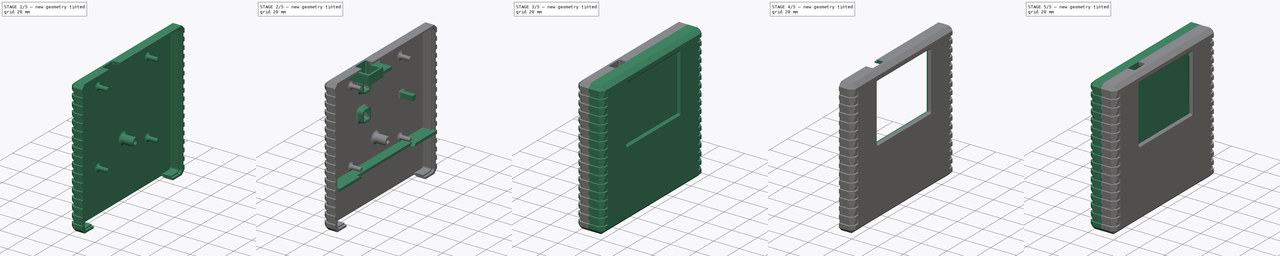
[diagram: build sequence overview — one tinted view per stage of 5, left to right]
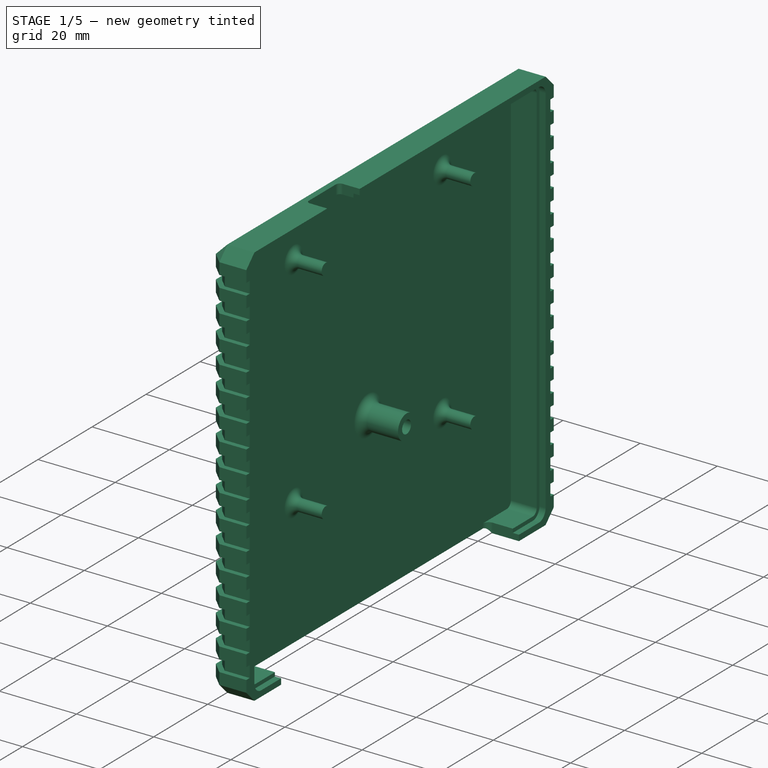
[diagram: stage 1 of 5 — iso view after this stage's code; geometry added in this stage tinted green]
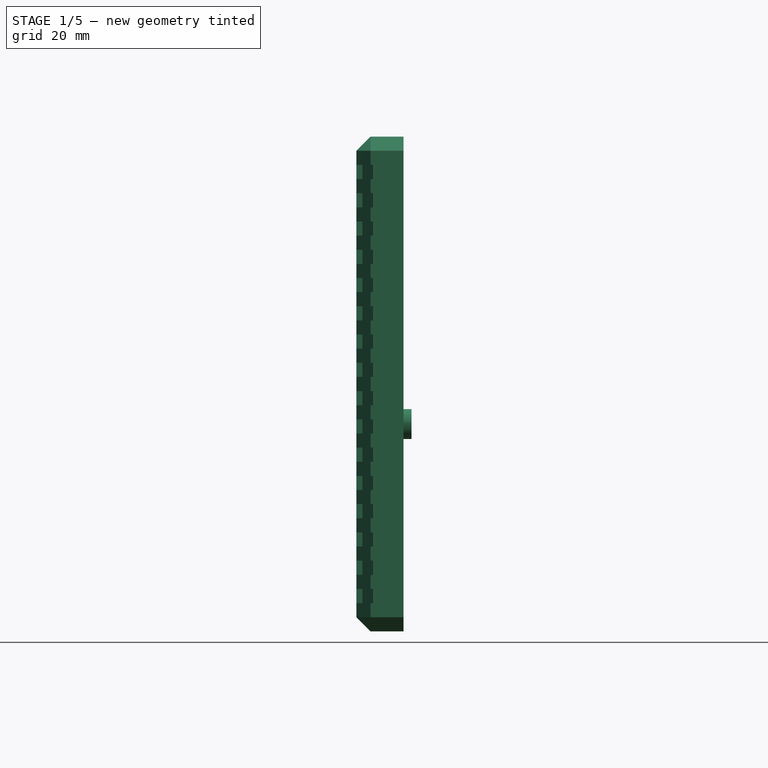
[diagram: stage 1 of 5 — front view after this stage's code; geometry added in this stage tinted green]
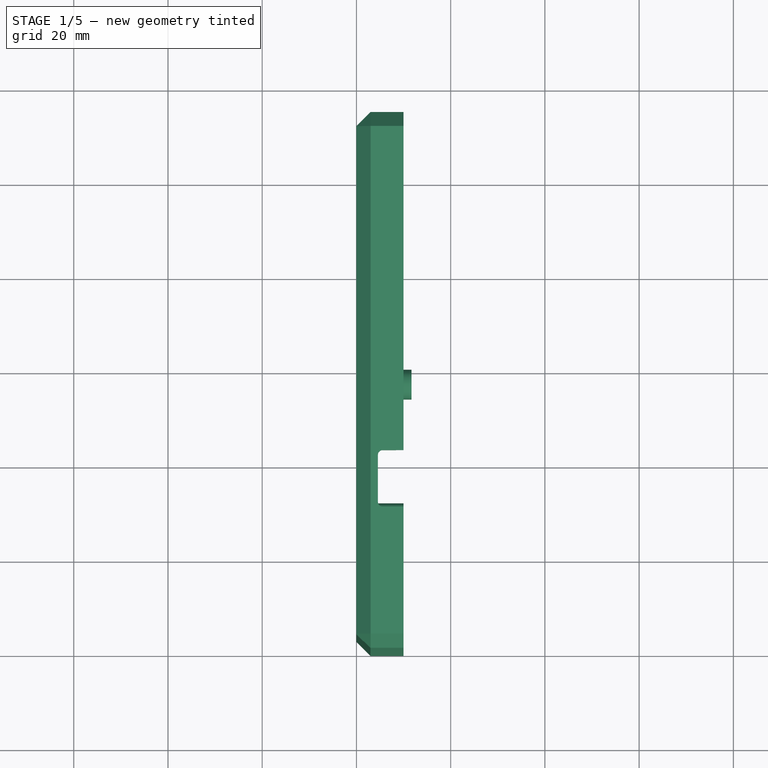
[diagram: stage 1 of 5 — top view after this stage's code; geometry added in this stage tinted green]
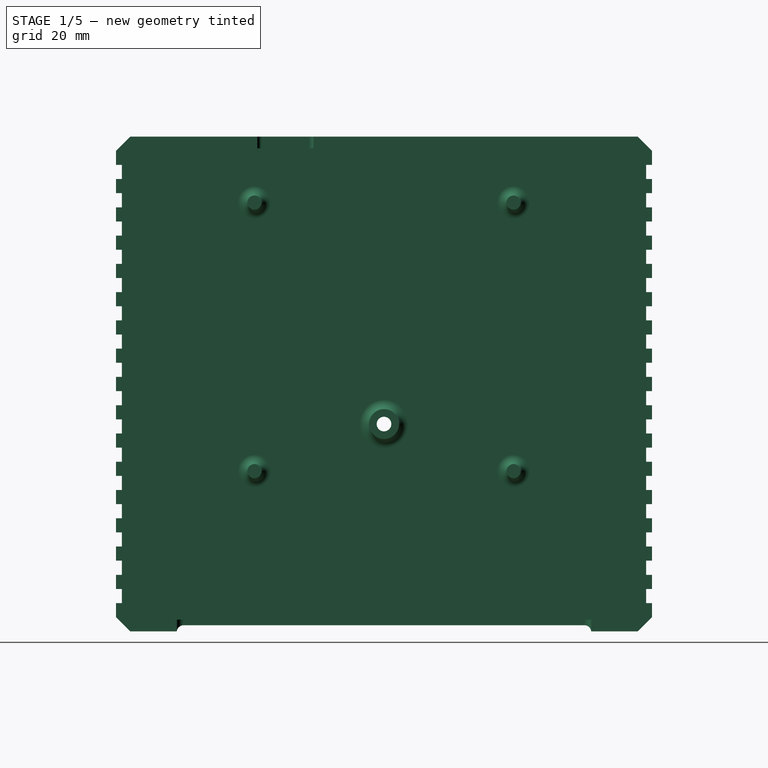
[diagram: stage 1 of 5 — right view after this stage's code; geometry added in this stage tinted green]
FCSTD DOCUMENT  (FreeCAD 1.0R39109 (Git))
Label: DecentCart5200
License: Creative Commons Attribution 4.0
LicenseURL: https://creativecommons.org/licenses/by/4.0/
objects: Sketcher::SketchObject×30, Part::Feature×23, PartDesign::Pocket×16, PartDesign::Pad×16, PartDesign::Body×4, PartDesign::Fillet×4, Part::Part2DObjectPython×3, Part::FeaturePython×3, PartDesign::SubShapeBinder×3, PartDesign::FeatureBase×2, PartDesign::AdditiveBox×1, PartDesign::Chamfer×1, PartDesign::FeaturePython×1, PartDesign::Plane×1, App::DocumentObjectGroup×1, App::VRMLObject×1, Part::Compound×1
note: 218 computed .brp shape members not serialized (recipe doc carries the construction recipe); baked Part::Feature solids carry a one-line shape summary decoded from their .brp

FEATURE [Part::Feature] Binder_solid  label="Back half binder"
  shape: bbox 10 x 113.8 x 105 mm, 274 faces (baked)
FEATURE [Sketcher::SketchObject] Sketch002
  ArcFitTolerance = 1e-06
  AttachmentSupport = -> [Binder_solid]
  FullyConstrained = true
  MakeInternals = false
  MapMode = 5
  Placement = pos=(10,0,0) rot=(0.57735,0.57735,0.57735;2.0944rad)
  sketch-geometry (16):
    g0: LineSegment [constr] StartX=0 StartY=0 StartZ=0 EndX=113.75 EndY=0 EndZ=0
    g1: LineSegment [constr] StartX=113.75 StartY=0 StartZ=0 EndX=113.75 EndY=105 EndZ=0
    g2: LineSegment [constr] StartX=113.75 StartY=105 StartZ=0 EndX=0 EndY=105 EndZ=0
    g3: LineSegment [constr] StartX=0 StartY=105 StartZ=0 EndX=0 EndY=0 EndZ=0
    g4: LineSegment StartX=4 StartY=101 StartZ=0 EndX=4 EndY=4 EndZ=0
    g5: LineSegment StartX=5.5 StartY=2.5 StartZ=0 EndX=108.25 EndY=2.5 EndZ=0
    g6: LineSegment StartX=109.75 StartY=4 StartZ=0 EndX=109.75 EndY=101 EndZ=0
    g7: LineSegment StartX=108.25 StartY=102.5 StartZ=0 EndX=5.5 EndY=102.5 EndZ=0
    g8: ArcOfCircle CenterX=108.25 CenterY=101 CenterZ=0 NormalX=0 NormalY=0 NormalZ=1 AngleXU=0 Radius=1.5 StartAngle=5.97e-14 EndAngle=1.5708
    g9: GeomPoint [constr] X=109.75 Y=102.5 Z=0
    g10: ArcOfCircle CenterX=108.25 CenterY=4 CenterZ=0 NormalX=0 NormalY=0 NormalZ=1 AngleXU=0 Radius=1.5 StartAngle=4.71239 EndAngle=6.28319
    g11: GeomPoint [constr] X=109.75 Y=2.5 Z=0
    g12: ArcOfCircle CenterX=5.5 CenterY=4 CenterZ=0 NormalX=0 NormalY=0 NormalZ=1 AngleXU=0 Radius=1.5 StartAngle=3.14159 EndAngle=4.71239
    g13: GeomPoint [constr] X=4 Y=2.5 Z=0
    g14: ArcOfCircle CenterX=5.5 CenterY=101 CenterZ=0 NormalX=0 NormalY=0 NormalZ=1 AngleXU=0 Radius=1.5 StartAngle=1.5708 EndAngle=3.14159
    g15: GeomPoint [constr] X=4 Y=102.5 Z=0
  constraints (39):
    c: Coincident(g0,g1)
    c: Coincident(g1,g2)
    c: Coincident(g2,g3)
    c: Coincident(g3,g0)
    c: Horizontal(g0)
    c: Horizontal(g2)
    c: Vertical(g1)
    c: Vertical(g3)
    c: Coincident(g0,g-1)
    c: PointOnObject(g-3,g1)
    c: PointOnObject(g-4,g2)
    c: Vertical(g4)
    c: Vertical(g6)
    c: Horizontal(g5)
    c: Horizontal(g7)
    c: DistanceY(g15,g2) = 2.5
    c: DistanceX(g2,g15) = 4
    c: DistanceY(g0,g13) = 2.5
    c: DistanceX(g9,g1) = 4
    c: PointOnObject(g9,g7)
    c: PointOnObject(g9,g6)
    c: Tangent(g7,g8) = -1.5708
    c: Tangent(g6,g8) = -1.5708
    c: PointOnObject(g11,g6)
    c: PointOnObject(g11,g5)
    c: Tangent(g6,g10) = -1.5708
    c: Tangent(g5,g10) = -1.5708
    c: PointOnObject(g13,g5)
    c: PointOnObject(g13,g4)
    c: Tangent(g5,g12) = -1.5708
    c: Tangent(g4,g12) = -1.5708
    c: PointOnObject(g15,g4)
    c: PointOnObject(g15,g7)
    c: Tangent(g4,g14) = -1.5708
    c: Tangent(g7,g14) = -1.5708
    c: Equal(g14,g8)
    c: Equal(g14,g12)
    c: Equal(g14,g10)
    c: Radius(g14) = 1.5
FEATURE [PartDesign::FeatureBase] BaseFeature
  BaseFeature = -> Binder_solid
  Suppressed = false
FEATURE [PartDesign::Pocket] Pocket002  label="Half join inner"
  BaseFeature = -> BaseFeature
  Direction = (-1,0,0)
  Length = 8.3
  Length2 = 5
  Profile = -> Sketch002
  ReferenceAxis = -> Sketch002 [N_Axis]
  Suppressed = false
  Type = 0
FEATURE [Sketcher::SketchObject] Sketch003
  ArcFitTolerance = 1e-06
  AttachmentSupport = -> [Pocket002]
  ExternalGeometry = -> [Pocket002]
  FullyConstrained = true
  MakeInternals = false
  MapMode = 5
  Placement = pos=(10,0,0) rot=(0.57735,0.57735,0.57735;2.0944rad)
  sketch-geometry (12):
    g0: LineSegment StartX=3 StartY=101 StartZ=0 EndX=3 EndY=4 EndZ=0
    g1: LineSegment StartX=5.5 StartY=1.5 StartZ=0 EndX=108.25 EndY=1.5 EndZ=0
    g2: LineSegment StartX=110.75 StartY=4 StartZ=0 EndX=110.75 EndY=101 EndZ=0
    g3: LineSegment StartX=108.25 StartY=103.5 StartZ=0 EndX=5.5 EndY=103.5 EndZ=0
    g4: ArcOfCircle CenterX=108.25 CenterY=101 CenterZ=0 NormalX=0 NormalY=0 NormalZ=1 AngleXU=0 Radius=2.5 StartAngle=1.4e-15 EndAngle=1.5708
    g5: GeomPoint [constr] X=110.75 Y=103.5 Z=0
    g6: ArcOfCircle CenterX=108.25 CenterY=4 CenterZ=0 NormalX=0 NormalY=0 NormalZ=1 AngleXU=0 Radius=2.5 StartAngle=4.71239 EndAngle=6.28319
    g7: GeomPoint [constr] X=110.75 Y=1.5 Z=0
    g8: ArcOfCircle CenterX=5.5 CenterY=4 CenterZ=0 NormalX=0 NormalY=0 NormalZ=1 AngleXU=0 Radius=2.5 StartAngle=3.14159 EndAngle=4.71239
    g9: GeomPoint [constr] X=3 Y=1.5 Z=0
    g10: ArcOfCircle CenterX=5.5 CenterY=101 CenterZ=0 NormalX=0 NormalY=0 NormalZ=1 AngleXU=0 Radius=2.5 StartAngle=1.5708 EndAngle=3.14159
    g11: GeomPoint [constr] X=3 Y=103.5 Z=0
  constraints (27):
    c: Vertical(g0)
    c: Vertical(g2)
    c: Horizontal(g1)
    c: Horizontal(g3)
    c: DistanceY(g-4,g11) = 1
    c: DistanceX(g-3,g5) = 1
    c: DistanceX(g9,g-5) = 1
    c: DistanceY(g7,g-6) = 1
    c: PointOnObject(g5,g3)
    c: PointOnObject(g5,g2)
    c: Tangent(g3,g4) = -1.5708
    c: Tangent(g2,g4) = -1.5708
    c: PointOnObject(g7,g2)
    c: PointOnObject(g7,g1)
    c: Tangent(g2,g6) = -1.5708
    c: Tangent(g1,g6) = -1.5708
    c: PointOnObject(g9,g1)
    c: PointOnObject(g9,g0)
    c: Tangent(g1,g8) = -1.5708
    c: Tangent(g0,g8) = -1.5708
    c: PointOnObject(g11,g0)
    c: Tangent(g0,g10) = -1.5708
    c: Tangent(g3,g10) = -1.5708
    c: Coincident(g10,g-7)
    c: Equal(g10,g4)
    c: Equal(g10,g8)
    c: Equal(g10,g6)
FEATURE [PartDesign::Pocket] Pocket003  label="Half join outer"
  BaseFeature = -> Pocket002
  Direction = (-1,0,0)
  Length = 1.6
  Length2 = 5
  Profile = -> Sketch003
  ReferenceAxis = -> Sketch003 [N_Axis]
  Suppressed = false
  Type = 0
FEATURE [Sketcher::SketchObject] Sketch004
  ArcFitTolerance = 1e-06
  AttachmentSupport = -> [Pocket003]
  ExternalGeometry = -> [Pocket003]
  FullyConstrained = true
  MakeInternals = false
  MapMode = 5
  Placement = pos=(0,0,0) rot=(1,0,0;3.14159rad)
  sketch-geometry (9):
    g0: LineSegment StartX=1.7 StartY=-14.375 StartZ=0 EndX=1.7 EndY=-99.375 EndZ=0
    g1: LineSegment StartX=3.2 StartY=-100.875 StartZ=0 EndX=10 EndY=-100.875 EndZ=0
    g2: LineSegment StartX=10 StartY=-100.875 StartZ=0 EndX=10 EndY=-12.875 EndZ=0
    g3: LineSegment StartX=10 StartY=-12.875 StartZ=0 EndX=3.2 EndY=-12.875 EndZ=0
    g4: GeomPoint [constr] X=10 Y=-56.875 Z=0
    g5: ArcOfCircle CenterX=3.2 CenterY=-14.375 CenterZ=0 NormalX=0 NormalY=0 NormalZ=1 AngleXU=0 Radius=1.5 StartAngle=1.5708 EndAngle=3.14159
    g6: GeomPoint [constr] X=1.7 Y=-12.875 Z=0
    g7: ArcOfCircle CenterX=3.2 CenterY=-99.375 CenterZ=0 NormalX=0 NormalY=0 NormalZ=1 AngleXU=0 Radius=1.5 StartAngle=3.14159 EndAngle=4.71239
    g8: GeomPoint [constr] X=1.7 Y=-100.875 Z=0
  constraints (20):
    c: Coincident(g1,g2)
    c: Coincident(g2,g3)
    c: Vertical(g0)
    c: Vertical(g2)
    c: Horizontal(g1)
    c: Horizontal(g3)
    c: DistanceY(g2,g2) = 88
    c: PointOnObject(g6,g-3)
    c: Symmetric(g-4,g-4,g4)
    c: Symmetric(g2,g1,g4)
    c: PointOnObject(g6,g0)
    c: PointOnObject(g6,g3)
    c: Tangent(g0,g5) = -1.5708
    c: Tangent(g3,g5) = -1.5708
    c: PointOnObject(g8,g1)
    c: PointOnObject(g8,g0)
    c: Tangent(g1,g7) = -1.5708
    c: Tangent(g0,g7) = -1.5708
    c: Equal(g5,g7)
    c: Radius(g5) = 1.5
FEATURE [PartDesign::Pocket] Pocket004  label="PCB opening"
  BaseFeature = -> Pocket003
  Direction = (0,0,1)
  Length = 0
  Length2 = 5
  Profile = -> Sketch004
  ReferenceAxis = -> Sketch004 [N_Axis]
  Suppressed = false
  Type = 3
  UpToFace = -> Pocket003 [Face287]
FEATURE [Sketcher::SketchObject] Sketch005
  ArcFitTolerance = 1e-06
  AttachmentSupport = -> [Pocket004]
  ExternalGeometry = -> [Pocket004]
  FullyConstrained = true
  MakeInternals = false
  MapMode = 5
  Placement = pos=(1.7,0,0) rot=(0.57735,0.57735,0.57735;2.0944rad)
  sketch-geometry (6):
    g0: Circle CenterX=29.375 CenterY=91 CenterZ=0 NormalX=0 NormalY=0 NormalZ=1 AngleXU=0 Radius=1.5
    g1: Circle CenterX=84.375 CenterY=91 CenterZ=0 NormalX=0 NormalY=0 NormalZ=1 AngleXU=0 Radius=1.5
    g2: Circle CenterX=84.375 CenterY=34 CenterZ=0 NormalX=0 NormalY=0 NormalZ=1 AngleXU=0 Radius=1.5
    g3: Circle CenterX=29.375 CenterY=34 CenterZ=0 NormalX=0 NormalY=0 NormalZ=1 AngleXU=0 Radius=1.5
    g4: LineSegment [constr] StartX=56.875 StartY=105 StartZ=0 EndX=56.875 EndY=0 EndZ=0
    g5: LineSegment [constr] StartX=0 StartY=52.5 StartZ=0 EndX=113.75 EndY=52.5 EndZ=0
  constraints (15):
    c: Equal(g0,g3)
    c: Equal(g0,g1)
    c: Equal(g0,g2)
    c: Diameter(g0) = 3
    c: Vertical(g0,g3)
    c: Symmetric(g-7,g-6,g4)
    c: Symmetric(g-10,g-4,g4)
    c: Symmetric(g-5,g-3,g5)
    c: Symmetric(g-8,g-9,g5)
    c: DistanceY(g0,g-7) = 14
    c: Vertical(g2,g1)
    c: DistanceX(g0,g1) = 55
    c: Symmetric(g3,g2,g4)
    c: DistanceY(g3,g0) = 57
    c: Horizontal(g0,g1)
FEATURE [PartDesign::Pad] Pad  label="Back pillars"
  BaseFeature = -> Pocket004
  Direction = (1,0,0)
  Length = 10
  Length2 = 10
  Profile = -> Sketch005
  ReferenceAxis = -> Sketch005 [N_Axis]
  Suppressed = false
  Type = 3
  UpToFace = -> Pocket004 [Face141]
FEATURE [Sketcher::SketchObject] Sketch006
  ArcFitTolerance = 1e-06
  AttachmentSupport = -> [Pad]
  ExternalGeometry = -> [Pad]
  FullyConstrained = true
  MakeInternals = false
  MapMode = 5
  Placement = pos=(1.7,0,0) rot=(0.57735,0.57735,0.57735;2.0944rad)
  sketch-geometry (3):
    g0: Circle CenterX=56.875 CenterY=44 CenterZ=0 NormalX=0 NormalY=0 NormalZ=1 AngleXU=0 Radius=3.175
    g1: Circle CenterX=56.875 CenterY=44 CenterZ=0 NormalX=0 NormalY=0 NormalZ=1 AngleXU=0 Radius=1.65
    g2: LineSegment [constr] StartX=56.875 StartY=105 StartZ=0 EndX=56.875 EndY=0 EndZ=0
  constraints (7):
    c: Coincident(g1,g0)
    c: Diameter(g0) = 6.35
    c: Diameter(g1) = 3.3
    c: DistanceY(g-1,g0) = 44
    c: PointOnObject(g0,g2)
    c: Symmetric(g-3,g-4,g2)
    c: Symmetric(g-6,g-5,g2)
FEATURE [PartDesign::Pad] Pad001  label="Back screw pillar"
  BaseFeature = -> Pad
  Direction = (1,0,0)
  Length = 10
  Length2 = 10
  Profile = -> Sketch006
  ReferenceAxis = -> Sketch006 [N_Axis]
  Suppressed = false
  Type = 0
FEATURE [PartDesign::Fillet] Fillet  label="Back pillar fillet"
  Base = -> Pad001 [Edge867,Edge869,Edge866,Edge868,Edge870]
  BaseFeature = -> Pad001
  Radius = 2
  SupportTransform = false
  Suppressed = false
  UseAllEdges = false
FEATURE [Sketcher::SketchObject] Sketch008
  ArcFitTolerance = 1e-06
  FullyConstrained = true
  MakeInternals = false
  MapMode = 5
  Placement = pos=(0,0,0) rot=(0.57735,-0.57735,-0.57735;2.0944rad)
  sketch-geometry (1):
    g0: Circle CenterX=-56.875 CenterY=44 CenterZ=0 NormalX=0 NormalY=0 NormalZ=1 AngleXU=0 Radius=3.25
  constraints (2):
    c: Coincident(g0,g-3)
    c: Diameter(g0) = 6.5
FEATURE [PartDesign::Pocket] Pocket005  label="Back screw chamfer"
  BaseFeature = -> Fillet
  Direction = (1,-1e-16,1e-16)
  Length = 1.8
  Length2 = 5
  Profile = -> Sketch008
  ReferenceAxis = -> Sketch008 [N_Axis]
  Suppressed = false
  TaperAngle = -45
  Type = 0
FEATURE [App::VRMLObject] DecentCart5200  label="DecentCart5200 PCB"
  Placement = pos=(10.8,5.37,122.13) rot=(0.57735,0.57735,0.57735;2.0944rad)
  Resources = DecentCart5200/shapes3D/C_0402_1005Metric.wrl | DecentCart5200/shapes3D/R_0402_1005Metric.wrl | DecentCart5200/shapes3D/R_0805_2012Metric.wrl | DecentCart5200/shapes3D/TS-1187A.wrl | DecentCart5200/shapes3D/TSSOP-24_4.4x7.8mm_P0.65mm.wrl | DecentCart5200/shapes3D/SOT-23.wrl | DecentCart5200/shapes3D/USB_Micro-B_Molex_47346-0001.wrl | DecentCart5200/shapes3D/Crystal_SMD_Abracon_ABM8G-4Pin_3.2x2.5mm.wrl | DecentCart5200/shapes3D/Nexperia_CFP3_SOD-123W.wrl | DecentCart5200/shapes3D/SOT-223.wrl | DecentCart5200/shapes3D/QFN-56-1EP_7x7mm_P0.4mm_EP3.2x3.2mm.wrl | DecentCart5200/shapes3D/Hirose_FH12-10S-0.5SH_1x10-1MP_P0.50mm_Horizontal.wrl | DecentCart5200/shapes3D/SOIC-8_5.275x5.275mm_P1.27mm.wrl | DecentCart5200/shapes3D/SM3B-SRSS-TB.wrl
FEATURE [Sketcher::SketchObject] Sketch009
  ArcFitTolerance = 1e-06
  AttachmentSupport = -> [BaseFeature]
  FullyConstrained = true
  MakeInternals = false
  MapMode = 5
  Placement = pos=(0,0,105) rot=(0,0,1;0rad)
  sketch-geometry (14):
    g0: LineSegment StartX=4.56 StartY=40.95 StartZ=0 EndX=4.56 EndY=30.95 EndZ=0
    g1: LineSegment StartX=5.56 StartY=29.95 StartZ=0 EndX=11.56 EndY=29.95 EndZ=0
    g2: LineSegment StartX=12.56 StartY=30.95 StartZ=0 EndX=12.56 EndY=40.95 EndZ=0
    g3: LineSegment StartX=11.56 StartY=41.95 StartZ=0 EndX=5.56 EndY=41.95 EndZ=0
    g4: LineSegment [constr] StartX=8.56 StartY=41.95 StartZ=0 EndX=8.56 EndY=29.95 EndZ=0
    g5: LineSegment [constr] StartX=4.56 StartY=35.95 StartZ=0 EndX=12.56 EndY=35.95 EndZ=0
    g6: ArcOfCircle CenterX=5.56 CenterY=40.95 CenterZ=0 NormalX=0 NormalY=0 NormalZ=1 AngleXU=0 Radius=1 StartAngle=1.5708 EndAngle=3.14159
    g7: GeomPoint [constr] X=4.56 Y=41.95 Z=0
    g8: ArcOfCircle CenterX=11.56 CenterY=40.95 CenterZ=0 NormalX=0 NormalY=0 NormalZ=1 AngleXU=0 Radius=1 StartAngle=-9e-16 EndAngle=1.5708
    g9: GeomPoint [constr] X=12.56 Y=41.95 Z=0
    g10: ArcOfCircle CenterX=11.56 CenterY=30.95 CenterZ=0 NormalX=0 NormalY=0 NormalZ=1 AngleXU=0 Radius=1 StartAngle=4.71239 EndAngle=6.28319
    g11: GeomPoint [constr] X=12.56 Y=29.95 Z=0
    g12: ArcOfCircle CenterX=5.56 CenterY=30.95 CenterZ=0 NormalX=0 NormalY=0 NormalZ=1 AngleXU=0 Radius=1 StartAngle=3.14159 EndAngle=4.71239
    g13: GeomPoint [constr] X=4.56 Y=29.95 Z=0
  constraints (32):
    c: Vertical(g0)
    c: Vertical(g2)
    c: Horizontal(g1)
    c: Horizontal(g3)
    c: Distance(g7,g9) = 8
    c: Distance(g13,g7) = 12
    c: Symmetric(g7,g9,g4)
    c: Symmetric(g13,g11,g4)
    c: Symmetric(g9,g11,g5)
    c: Symmetric(g7,g13,g5)
    c: DistanceX(g-1,g4) = 8.56
    c: DistanceY(g-1,g5) = 35.95
    c: PointOnObject(g7,g0)
    c: PointOnObject(g7,g3)
    c: Tangent(g0,g6) = -1.5708
    c: Tangent(g3,g6) = -1.5708
    c: PointOnObject(g9,g3)
    c: PointOnObject(g9,g2)
    c: Tangent(g3,g8) = -1.5708
    c: Tangent(g2,g8) = -1.5708
    c: PointOnObject(g11,g2)
    c: PointOnObject(g11,g1)
    c: Tangent(g2,g10) = -1.5708
    c: Tangent(g1,g10) = -1.5708
    c: PointOnObject(g13,g1)
    c: PointOnObject(g13,g0)
    c: Tangent(g1,g12) = -1.5708
    c: Tangent(g0,g12) = -1.5708
    c: Equal(g6,g8)
    c: Equal(g6,g10)
    c: Equal(g6,g12)
    c: Radius(g6) = 1
FEATURE [PartDesign::Pocket] Pocket006  label="Back USB port"
  BaseFeature = -> Pocket005
  Direction = (0,0,-1)
  Length = 0
  Length2 = 5
  Profile = -> Sketch009
  ReferenceAxis = -> Sketch009 [N_Axis]
  Suppressed = false
  Type = 3
  UpToFace = -> Pocket005 [Face6]
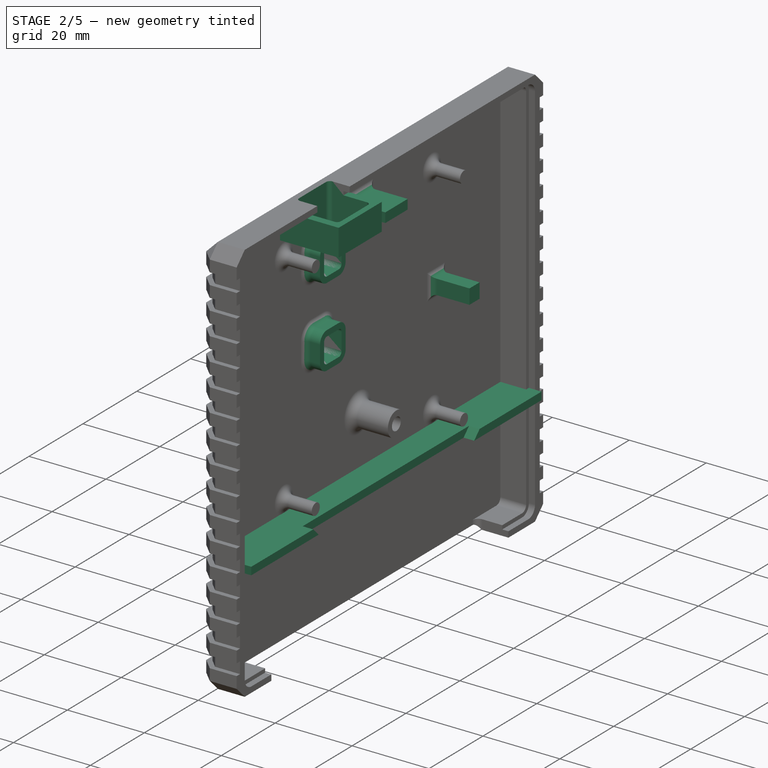
[diagram: stage 2 of 5 — iso view after this stage's code; geometry added in this stage tinted green]
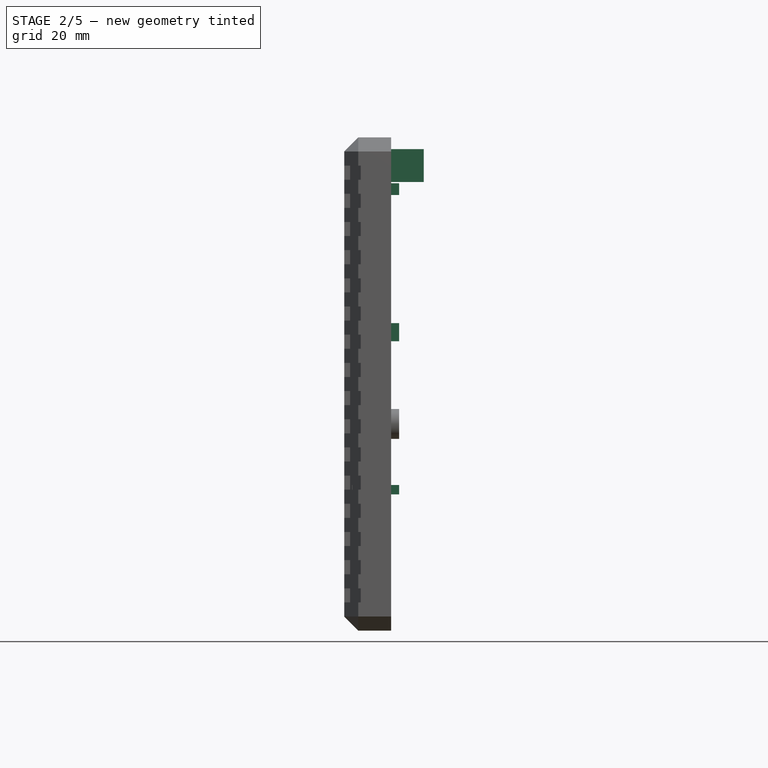
[diagram: stage 2 of 5 — front view after this stage's code; geometry added in this stage tinted green]
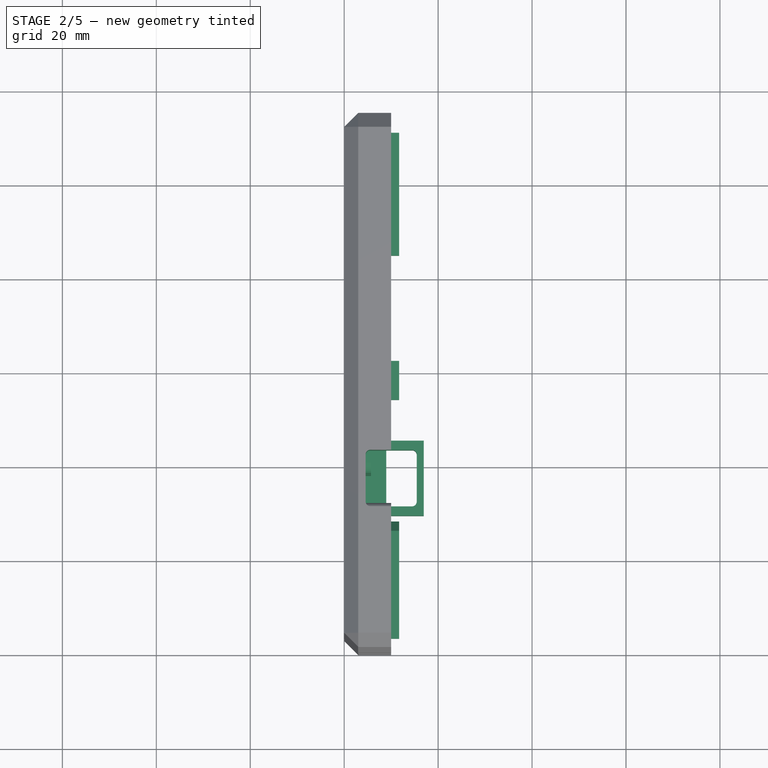
[diagram: stage 2 of 5 — top view after this stage's code; geometry added in this stage tinted green]
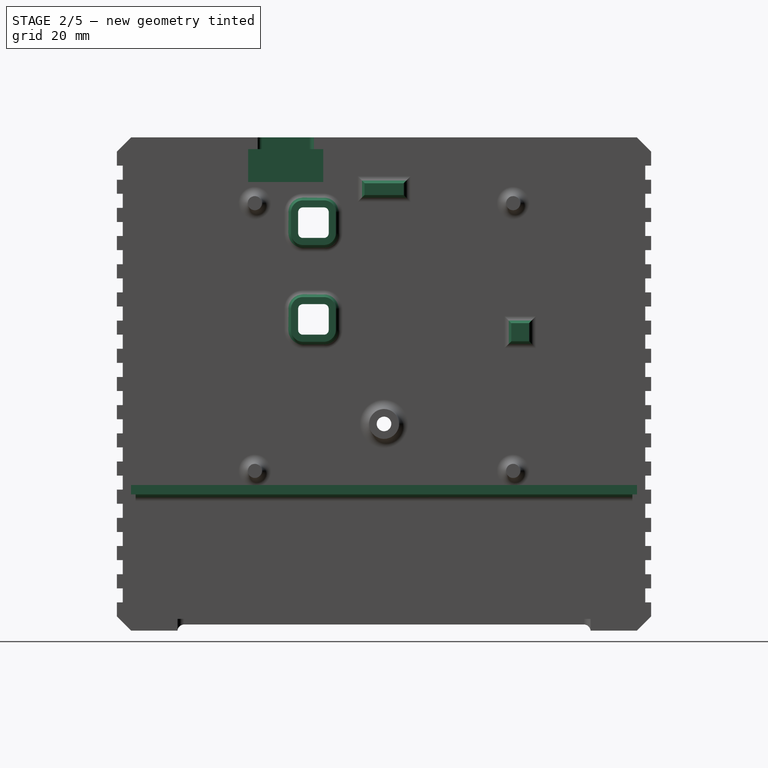
[diagram: stage 2 of 5 — right view after this stage's code; geometry added in this stage tinted green]
FEATURE [Sketcher::SketchObject] Sketch010
  ArcFitTolerance = 1e-06
  AttachmentSupport = -> [Pocket003]
  FullyConstrained = true
  MakeInternals = false
  MapMode = 5
  Placement = pos=(0,0,0) rot=(0.57735,-0.57735,-0.57735;2.0944rad)
  sketch-geometry (22):
    g0: LineSegment StartX=-45.1 StartY=89.1 StartZ=0 EndX=-45.1 EndY=84.6 EndZ=0
    g1: LineSegment StartX=-44.1 StartY=83.6 StartZ=0 EndX=-39.6 EndY=83.6 EndZ=0
    g2: LineSegment StartX=-38.6 StartY=84.6 StartZ=0 EndX=-38.6 EndY=89.1 EndZ=0
    g3: LineSegment StartX=-39.6 StartY=90.1 StartZ=0 EndX=-44.1 EndY=90.1 EndZ=0
    g4: ArcOfCircle CenterX=-44.1 CenterY=89.1 CenterZ=0 NormalX=0 NormalY=0 NormalZ=1 AngleXU=0 Radius=1 StartAngle=1.5708 EndAngle=3.14159
    g5: ArcOfCircle CenterX=-44.1 CenterY=84.6 CenterZ=0 NormalX=0 NormalY=0 NormalZ=1 AngleXU=0 Radius=1 StartAngle=3.14159 EndAngle=4.71239
    g6: ArcOfCircle CenterX=-39.6 CenterY=84.6 CenterZ=0 NormalX=0 NormalY=0 NormalZ=1 AngleXU=0 Radius=1 StartAngle=4.71239 EndAngle=6.28319
    g7: ArcOfCircle CenterX=-39.6 CenterY=89.1 CenterZ=0 NormalX=0 NormalY=0 NormalZ=1 AngleXU=0 Radius=1 StartAngle=2.7e-15 EndAngle=1.5708
    g8: GeomPoint [constr] X=-45.1 Y=90.1 Z=0
    g9: GeomPoint [constr] X=-38.6 Y=83.6 Z=0
    g10: GeomPoint [constr] X=-41.85 Y=86.85 Z=0
    g11: LineSegment StartX=-45.1 StartY=68.5 StartZ=0 EndX=-45.1 EndY=64 EndZ=0
    g12: LineSegment StartX=-44.1 StartY=63 StartZ=0 EndX=-39.6 EndY=63 EndZ=0
    g13: LineSegment StartX=-38.6 StartY=64 StartZ=0 EndX=-38.6 EndY=68.5 EndZ=0
    g14: LineSegment StartX=-39.6 StartY=69.5 StartZ=0 EndX=-44.1 EndY=69.5 EndZ=0
    g15: ArcOfCircle CenterX=-44.1 CenterY=68.5 CenterZ=0 NormalX=0 NormalY=0 NormalZ=1 AngleXU=0 Radius=1 StartAngle=1.5708 EndAngle=3.14159
    g16: ArcOfCircle CenterX=-44.1 CenterY=64 CenterZ=0 NormalX=0 NormalY=0 NormalZ=1 AngleXU=0 Radius=1 StartAngle=3.14159 EndAngle=4.71239
    g17: ArcOfCircle CenterX=-39.6 CenterY=64 CenterZ=0 NormalX=0 NormalY=0 NormalZ=1 AngleXU=0 Radius=1 StartAngle=4.71239 EndAngle=6.28319
    g18: ArcOfCircle CenterX=-39.6 CenterY=68.5 CenterZ=0 NormalX=0 NormalY=0 NormalZ=1 AngleXU=0 Radius=1 StartAngle=-1.8e-15 EndAngle=1.5708
    g19: GeomPoint [constr] X=-45.1 Y=69.5 Z=0
    g20: GeomPoint [constr] X=-38.6 Y=63 Z=0
    g21: GeomPoint [constr] X=-41.85 Y=66.25 Z=0
  constraints (50):
    c: Tangent(g0,g4) = -1.5708
    c: Tangent(g0,g5) = -1.5708
    c: Tangent(g1,g5) = -1.5708
    c: Tangent(g1,g6) = -1.5708
    c: Tangent(g2,g6) = -1.5708
    c: Tangent(g2,g7) = -1.5708
    c: Tangent(g3,g7) = -1.5708
    c: Tangent(g3,g4) = -1.5708
    c: Vertical(g0)
    c: Vertical(g2)
    c: Horizontal(g1)
    c: Horizontal(g3)
    c: Equal(g4,g5)
    c: Equal(g5,g6)
    c: Equal(g6,g7)
    c: PointOnObject(g8,g0)
    c: PointOnObject(g8,g3)
    c: PointOnObject(g9,g1)
    c: PointOnObject(g9,g2)
    c: Distance(g0,g2) = 6.5
    c: Radius(g5) = 1
    c: Equal(g0,g3)
    c: Symmetric(g5,g7,g10)
    c: DistanceY(g-1,g10) = 86.85
    c: DistanceX(g10,g-1) = 41.85
    c: Tangent(g11,g15) = -1.5708
    c: Tangent(g11,g16) = -1.5708
    c: Tangent(g12,g16) = -1.5708
    c: Tangent(g12,g17) = -1.5708
    c: Tangent(g13,g17) = -1.5708
    c: Tangent(g13,g18) = -1.5708
    c: Tangent(g14,g18) = -1.5708
    c: Tangent(g14,g15) = -1.5708
    c: Vertical(g11)
    c: Vertical(g13)
    c: Horizontal(g12)
    c: Horizontal(g14)
    c: Equal(g15,g16)
    c: Equal(g16,g17)
    c: Equal(g17,g18)
    c: PointOnObject(g19,g11)
    c: PointOnObject(g19,g14)
    c: PointOnObject(g20,g12)
    c: PointOnObject(g20,g13)
    c: Distance(g11,g13) = 6.5
    c: Radius(g16) = 1
    c: Equal(g11,g14)
    c: Symmetric(g16,g18,g21)
    c: Vertical(g13,g2)
    c: DistanceY(g21,g10) = 20.6
FEATURE [PartDesign::Pocket] Pocket007  label="Button pockets"
  BaseFeature = -> Pocket006
  Direction = (1,0,0)
  Length = 5
  Length2 = 5
  Profile = -> Sketch010
  ReferenceAxis = -> Sketch010 [N_Axis]
  Suppressed = false
  Type = 1
FEATURE [Sketcher::SketchObject] Sketch011
  ArcFitTolerance = 1e-06
  AttachmentSupport = -> [Pocket007]
  ExternalGeometry = -> [Pocket007]
  FullyConstrained = true
  MakeInternals = false
  MapMode = 5
  Placement = pos=(1.7,0,0) rot=(0.57735,0.57735,0.57735;2.0944rad)
  sketch-geometry (41):
    g0: LineSegment [constr] StartX=39.6 StartY=86.85 StartZ=0 EndX=45.1 EndY=86.85 EndZ=0
    g1: LineSegment [constr] StartX=39.6 StartY=66.25 StartZ=0 EndX=45.1 EndY=66.25 EndZ=0
    g2: LineSegment [constr] StartX=41.85 StartY=86.85 StartZ=0 EndX=41.85 EndY=66.25 EndZ=0
    g3: LineSegment StartX=38.6 StartY=89.1 StartZ=0 EndX=38.6 EndY=84.6 EndZ=0
    g4: LineSegment StartX=39.6 StartY=83.6 StartZ=0 EndX=44.1 EndY=83.6 EndZ=0
    g5: LineSegment StartX=45.1 StartY=84.6 StartZ=0 EndX=45.1 EndY=89.1 EndZ=0
    g6: LineSegment StartX=44.1 StartY=90.1 StartZ=0 EndX=39.6 EndY=90.1 EndZ=0
    g7: ArcOfCircle CenterX=39.6 CenterY=89.1 CenterZ=0 NormalX=0 NormalY=0 NormalZ=1 AngleXU=0 Radius=1 StartAngle=1.5708 EndAngle=3.14159
    g8: ArcOfCircle CenterX=39.6 CenterY=84.6 CenterZ=0 NormalX=0 NormalY=0 NormalZ=1 AngleXU=0 Radius=1 StartAngle=3.14159 EndAngle=4.71239
    g9: ArcOfCircle CenterX=44.1 CenterY=84.6 CenterZ=0 NormalX=0 NormalY=0 NormalZ=1 AngleXU=0 Radius=1 StartAngle=4.71239 EndAngle=6.28319
    g10: ArcOfCircle CenterX=44.1 CenterY=89.1 CenterZ=0 NormalX=0 NormalY=0 NormalZ=1 AngleXU=0 Radius=1 StartAngle=6e-15 EndAngle=1.5708
    g11: GeomPoint [constr] X=38.6 Y=90.1 Z=0
    g12: GeomPoint [constr] X=45.1 Y=83.6 Z=0
    g13: LineSegment StartX=38.6 StartY=68.5 StartZ=0 EndX=38.6 EndY=64 EndZ=0
    g14: LineSegment StartX=39.6 StartY=63 StartZ=0 EndX=44.1 EndY=63 EndZ=0
    g15: LineSegment StartX=45.1 StartY=64 StartZ=0 EndX=45.1 EndY=68.5 EndZ=0
    g16: LineSegment StartX=44.1 StartY=69.5 StartZ=0 EndX=39.6 EndY=69.5 EndZ=0
    g17: ArcOfCircle CenterX=39.6 CenterY=68.5 CenterZ=0 NormalX=0 NormalY=0 NormalZ=1 AngleXU=0 Radius=1 StartAngle=1.5708 EndAngle=3.14159
    g18: ArcOfCircle CenterX=39.6 CenterY=64 CenterZ=0 NormalX=0 NormalY=0 NormalZ=1 AngleXU=0 Radius=1 StartAngle=3.14159 EndAngle=4.71239
    g19: ArcOfCircle CenterX=44.1 CenterY=64 CenterZ=0 NormalX=0 NormalY=0 NormalZ=1 AngleXU=0 Radius=1 StartAngle=4.71239 EndAngle=6.28319
    g20: ArcOfCircle CenterX=44.1 CenterY=68.5 CenterZ=0 NormalX=0 NormalY=0 NormalZ=1 AngleXU=0 Radius=1 StartAngle=-2.7e-15 EndAngle=1.5708
    g21: GeomPoint [constr] X=38.6 Y=69.5 Z=0
    g22: GeomPoint [constr] X=45.1 Y=63 Z=0
    g23: ArcOfCircle CenterX=44.1 CenterY=89.1 CenterZ=0 NormalX=0 NormalY=0 NormalZ=1 AngleXU=0 Radius=2.5 StartAngle=-2.7e-15 EndAngle=1.5708
    g24: LineSegment StartX=44.1 StartY=91.6 StartZ=0 EndX=39.6 EndY=91.6 EndZ=0
    g25: ArcOfCircle CenterX=39.6 CenterY=89.1 CenterZ=0 NormalX=0 NormalY=0 NormalZ=1 AngleXU=0 Radius=2.5 StartAngle=1.5708 EndAngle=3.14159
    g26: LineSegment StartX=37.1 StartY=89.1 StartZ=0 EndX=37.1 EndY=84.6 EndZ=0
    g27: ArcOfCircle CenterX=39.6 CenterY=84.6 CenterZ=0 NormalX=0 NormalY=0 NormalZ=1 AngleXU=0 Radius=2.5 StartAngle=3.14159 EndAngle=4.71239
    g28: LineSegment StartX=39.6 StartY=82.1 StartZ=0 EndX=44.1 EndY=82.1 EndZ=0
    g29: ArcOfCircle CenterX=44.1 CenterY=84.6 CenterZ=0 NormalX=0 NormalY=0 NormalZ=1 AngleXU=0 Radius=2.5 StartAngle=4.71239 EndAngle=6.28319
    g30: LineSegment StartX=46.6 StartY=84.6 StartZ=0 EndX=46.6 EndY=89.1 EndZ=0
    g31: LineSegment StartX=37.1 StartY=68.5 StartZ=0 EndX=37.1 EndY=64 EndZ=0
    g32: LineSegment StartX=39.6 StartY=61.5 StartZ=0 EndX=44.1 EndY=61.5 EndZ=0
    g33: LineSegment StartX=46.6 StartY=64 StartZ=0 EndX=46.6 EndY=68.5 EndZ=0
    g34: LineSegment StartX=44.1 StartY=71 StartZ=0 EndX=39.6 EndY=71 EndZ=0
    g35: ArcOfCircle CenterX=39.6 CenterY=68.5 CenterZ=0 NormalX=0 NormalY=0 NormalZ=1 AngleXU=0 Radius=2.5 StartAngle=1.5708 EndAngle=3.14159
    g36: ArcOfCircle CenterX=39.6 CenterY=64 CenterZ=0 NormalX=0 NormalY=0 NormalZ=1 AngleXU=0 Radius=2.5 StartAngle=3.14159 EndAngle=4.71239
    g37: ArcOfCircle CenterX=44.1 CenterY=64 CenterZ=0 NormalX=0 NormalY=0 NormalZ=1 AngleXU=0 Radius=2.5 StartAngle=4.71239 EndAngle=6.28319
    g38: ArcOfCircle CenterX=44.1 CenterY=68.5 CenterZ=0 NormalX=0 NormalY=0 NormalZ=1 AngleXU=0 Radius=2.5 StartAngle=0 EndAngle=1.5708
    g39: GeomPoint [constr] X=37.1 Y=71 Z=0
    g40: GeomPoint [constr] X=46.6 Y=61.5 Z=0
  constraints (96):
    c: Symmetric(g-4,g-4,g0)
    c: Symmetric(g-5,g-5,g1)
    c: Vertical(g-3,g0)
    c: Vertical(g-3,g1)
    c: Symmetric(g-3,g-3,g2)
    c: PointOnObject(g2,g1)
    c: PointOnObject(g2,g0)
    c: Tangent(g3,g7) = -1.5708
    c: Tangent(g3,g8) = -1.5708
    c: Tangent(g4,g8) = -1.5708
    c: Tangent(g4,g9) = -1.5708
    c: Tangent(g5,g9) = -1.5708
    c: Tangent(g5,g10) = -1.5708
    c: Tangent(g6,g10) = -1.5708
    c: Tangent(g6,g7) = -1.5708
    c: Vertical(g3)
    c: Horizontal(g4)
    c: Equal(g7,g8)
    c: Equal(g8,g9)
    c: Equal(g9,g10)
    c: PointOnObject(g11,g3)
    c: PointOnObject(g11,g6)
    c: PointOnObject(g12,g4)
    c: PointOnObject(g12,g5)
    c: Coincident(g6,g-3)
    c: Coincident(g6,g-3)
    c: Coincident(g5,g-4)
    c: Tangent(g13,g17) = -1.5708
    c: Tangent(g13,g18) = -1.5708
    c: Tangent(g14,g18) = -1.5708
    c: Tangent(g14,g19) = -1.5708
    c: Tangent(g15,g19) = -1.5708
    c: Tangent(g15,g20) = -1.5708
    c: Tangent(g16,g20) = -1.5708
    c: Tangent(g16,g17) = -1.5708
    c: Vertical(g13)
    c: Horizontal(g14)
    c: Horizontal(g16)
    c: Equal(g17,g18)
    c: Equal(g18,g19)
    c: Equal(g19,g20)
    c: PointOnObject(g21,g13)
    c: PointOnObject(g21,g16)
    c: PointOnObject(g22,g14)
    c: PointOnObject(g22,g15)
    c: Coincident(g15,g-5)
    c: Coincident(g15,g-5)
    c: Vertical(g16,g6)
    c: Vertical(g16,g6)
    c: Tangent(g23,g24) = -1.5708
    c: Tangent(g23,g30) = -1.5708
    c: Tangent(g24,g25) = -1.5708
    c: Tangent(g25,g26) = -1.5708
    c: Tangent(g26,g27) = -1.5708
    c: Tangent(g27,g28) = -1.5708
    c: Tangent(g28,g29) = -1.5708
    c: Tangent(g29,g30) = -1.5708
    c: Equal(g6,g5)
    c: Horizontal(g5,g29)
    c: Vertical(g4,g28)
    c: DistanceY(g6,g23) = 1.5
    c: Horizontal(g24)
    c: Vertical(g26)
    c: Horizontal(g28)
    c: Vertical(g30)
    c: Horizontal(g5,g23)
    c: Vertical(g23,g6)
    c: Vertical(g27,g4)
    c: Horizontal(g26,g3)
    c: Horizontal(g3,g25)
    c: Vertical(g0,g1)
    c: Vertical(g1,g5)
    c: Tangent(g31,g35) = -1.5708
    c: Tangent(g31,g36) = -1.5708
    c: Tangent(g32,g36) = -1.5708
    c: Tangent(g32,g37) = -1.5708
    c: Tangent(g33,g37) = -1.5708
    c: Tangent(g33,g38) = -1.5708
    c: Tangent(g34,g38) = -1.5708
    c: Tangent(g34,g35) = -1.5708
    c: Vertical(g31)
    c: Vertical(g33)
    c: Horizontal(g32)
    c: Horizontal(g34)
    c: Equal(g35,g36)
    c: Equal(g36,g37)
    c: Equal(g37,g38)
    c: PointOnObject(g39,g31)
    c: PointOnObject(g39,g34)
    c: PointOnObject(g40,g32)
    c: PointOnObject(g40,g33)
    c: Horizontal(g15,g33)
    c: Vertical(g16,g34)
    c: Vertical(g29,g33)
    c: Vertical(g34,g27)
    c: Horizontal(g33,g15)
FEATURE [PartDesign::Pad] Pad002  label="Button columns"
  BaseFeature = -> Pocket007
  Direction = (1,0,0)
  Length = 4
  Length2 = 10
  Profile = -> Sketch011
  ReferenceAxis = -> Sketch011 [N_Axis]
  Suppressed = false
  Type = 0
FEATURE [PartDesign::Fillet] Fillet001  label="Button column fillets"
  Base = -> Pad002 [Edge17,Edge28]
  BaseFeature = -> Pad002
  Radius = 1.5
  SupportTransform = false
  Suppressed = false
  UseAllEdges = false
FEATURE [Sketcher::SketchObject] Sketch012
  ArcFitTolerance = 1e-06
  AttachmentSupport = -> [Pocket003]
  ExternalGeometry = -> [Pocket003]
  FullyConstrained = true
  MakeInternals = false
  MapMode = 5
  Placement = pos=(1.7,0,0) rot=(0.57735,0.57735,0.57735;2.0944rad)
  sketch-geometry (16):
    g0: LineSegment StartX=52.75 StartY=95.25 StartZ=0 EndX=52.75 EndY=92.75 EndZ=0
    g1: LineSegment StartX=52.75 StartY=92.75 StartZ=0 EndX=61.05 EndY=92.75 EndZ=0
    g2: LineSegment StartX=61.05 StartY=92.75 StartZ=0 EndX=61.05 EndY=95.25 EndZ=0
    g3: LineSegment StartX=61.05 StartY=95.25 StartZ=0 EndX=52.75 EndY=95.25 EndZ=0
    g4: LineSegment StartX=87.75 StartY=65.45 StartZ=0 EndX=84 EndY=65.45 EndZ=0
    g5: LineSegment StartX=84 StartY=65.45 StartZ=0 EndX=84 EndY=61.6 EndZ=0
    g6: LineSegment StartX=84 StartY=61.6 StartZ=0 EndX=87.75 EndY=61.6 EndZ=0
    g7: LineSegment StartX=87.75 StartY=61.6 StartZ=0 EndX=87.75 EndY=65.45 EndZ=0
    g8: LineSegment StartX=110.75 StartY=31 StartZ=0 EndX=87.75 EndY=31 EndZ=0
    g9: LineSegment StartX=87.75 StartY=31 StartZ=0 EndX=85.75 EndY=29 EndZ=0
    g10: LineSegment StartX=85.75 StartY=29 StartZ=0 EndX=110.75 EndY=29 EndZ=0
    g11: LineSegment StartX=110.75 StartY=29 StartZ=0 EndX=110.75 EndY=31 EndZ=0
    g12: LineSegment StartX=3 StartY=31 StartZ=0 EndX=26 EndY=31 EndZ=0
    g13: LineSegment StartX=26 StartY=31 StartZ=0 EndX=28 EndY=29 EndZ=0
    g14: LineSegment StartX=28 StartY=29 StartZ=0 EndX=3 EndY=29 EndZ=0
    g15: LineSegment StartX=3 StartY=29 StartZ=0 EndX=3 EndY=31 EndZ=0
  constraints (48):
    c: Coincident(g0,g1)
    c: Coincident(g1,g2)
    c: Coincident(g2,g3)
    c: Coincident(g3,g0)
    c: Vertical(g0)
    c: Vertical(g2)
    c: Horizontal(g1)
    c: Horizontal(g3)
    c: Coincident(g4,g5)
    c: Coincident(g5,g6)
    c: Coincident(g6,g7)
    c: Coincident(g7,g4)
    c: Horizontal(g4)
    c: Horizontal(g6)
    c: Vertical(g5)
    c: Vertical(g7)
    c: Horizontal(g8)
    c: Coincident(g8,g9)
    c: Coincident(g9,g10)
    c: Horizontal(g10)
    c: Coincident(g10,g11)
    c: Coincident(g11,g8)
    c: Horizontal(g12)
    c: Coincident(g12,g13)
    c: Coincident(g13,g14)
    c: Horizontal(g14)
    c: Coincident(g14,g15)
    c: Coincident(g12,g15)
    c: Angle(g13,g14) = 0.785398
    c: DistanceY(g15,g15) = 2
    c: DistanceX(g12,g12) = 23
    c: DistanceY(g-1,g12) = 31
    c: Horizontal(g12,g8)
    c: Horizontal(g14,g10)
    c: Equal(g12,g8)
    c: Angle(g10,g9) = 0.785398
    c: DistanceY(g5,g5) = 3.85
    c: Vertical(g6,g8)
    c: DistanceY(g-1,g5) = 61.6
    c: DistanceX(g6,g6) = 3.75
    c: DistanceX(g3,g3) = 8.3
    c: DistanceY(g2,g2) = 2.5
    c: DistanceX(g-1,g0) = 52.75
    c: DistanceY(g-1,g0) = 92.75
    c: PointOnObject(g14,g-3)
    c: PointOnObject(g12,g-3)
    c: PointOnObject(g10,g-4)
    c: PointOnObject(g8,g-4)
FEATURE [PartDesign::Pad] Pad003  label="PCB padding"
  BaseFeature = -> Fillet001
  Direction = (1,0,0)
  Length = 10
  Length2 = 10
  Profile = -> Sketch012
  ReferenceAxis = -> Sketch012 [N_Axis]
  Refine = true
  Suppressed = false
  Type = 0
FEATURE [Sketcher::SketchObject] Sketch013
  ArcFitTolerance = 1e-06
  AttachmentSupport = -> [Pad003]
  ExternalGeometry = -> [Pad003]
  FullyConstrained = true
  MakeInternals = false
  MapMode = 5
  Placement = pos=(1.7,0,0) rot=(0.57735,0.57735,0.57735;2.0944rad)
  sketch-geometry (4):
    g0: LineSegment StartX=26 StartY=31 StartZ=0 EndX=87.75 EndY=31 EndZ=0
    g1: LineSegment StartX=87.75 StartY=31 StartZ=0 EndX=85.75 EndY=29 EndZ=0
    g2: LineSegment StartX=85.75 StartY=29 StartZ=0 EndX=28 EndY=29 EndZ=0
    g3: LineSegment StartX=28 StartY=29 StartZ=0 EndX=26 EndY=31 EndZ=0
  constraints (8):
    c: Coincident(g-3,g0)
    c: Coincident(g0,g-4)
    c: Coincident(g0,g1)
    c: Coincident(g1,g-4)
    c: Coincident(g1,g2)
    c: Coincident(g2,g-3)
    c: Coincident(g2,g3)
    c: Coincident(g3,g0)
FEATURE [PartDesign::Pad] Pad004  label="Lower wall"
  BaseFeature = -> Pad003
  Direction = (1,0,0)
  Length = 7.25
  Length2 = 10
  Profile = -> Sketch013
  ReferenceAxis = -> Sketch013 [N_Axis]
  Refine = true
  Suppressed = false
  Type = 0
FEATURE [PartDesign::Fillet] Fillet002
  Base = -> Pad004 [Edge23,Edge21,Edge18,Edge19,Edge948,Edge22,Edge24,Edge17,Edge16]
  BaseFeature = -> Pad004
  Radius = 1.5
  SupportTransform = false
  Suppressed = false
  UseAllEdges = false
FEATURE [Sketcher::SketchObject] Sketch014
  ArcFitTolerance = 1e-06
  AttachmentSupport = -> [Fillet002]
  ExternalGeometry = -> [Fillet002,Pad004]
  FullyConstrained = true
  MakeInternals = false
  MapMode = 5
  Placement = pos=(0,0,102.5) rot=(1,0,0;3.14159rad)
  sketch-geometry (12):
    g0: LineSegment StartX=1.7 StartY=-27.95 StartZ=0 EndX=16.95 EndY=-27.95 EndZ=0
    g1: LineSegment StartX=14.44 StartY=-29.95 StartZ=0 EndX=5.56 EndY=-29.95 EndZ=0
    g2: ArcOfCircle CenterX=5.56 CenterY=-30.95 CenterZ=0 NormalX=0 NormalY=0 NormalZ=1 AngleXU=0 Radius=1 StartAngle=1.5708 EndAngle=3.14159
    g3: LineSegment StartX=4.56 StartY=-30.95 StartZ=0 EndX=4.56 EndY=-40.95 EndZ=0
    g4: ArcOfCircle CenterX=5.56 CenterY=-40.95 CenterZ=0 NormalX=0 NormalY=0 NormalZ=1 AngleXU=0 Radius=1 StartAngle=3.14159 EndAngle=4.71239
    g5: LineSegment StartX=5.56 StartY=-41.95 StartZ=0 EndX=14.44 EndY=-41.95 EndZ=0
    g6: LineSegment StartX=16.95 StartY=-43.95 StartZ=0 EndX=1.7 EndY=-43.95 EndZ=0
    g7: LineSegment StartX=1.7 StartY=-43.95 StartZ=0 EndX=1.7 EndY=-27.95 EndZ=0
    g8: LineSegment StartX=15.44 StartY=-30.95 StartZ=0 EndX=15.44 EndY=-40.95 EndZ=0
    g9: LineSegment StartX=16.95 StartY=-27.95 StartZ=0 EndX=16.95 EndY=-43.95 EndZ=0
    g10: ArcOfCircle CenterX=14.44 CenterY=-30.95 CenterZ=0 NormalX=0 NormalY=0 NormalZ=1 AngleXU=0 Radius=1 StartAngle=7e-16 EndAngle=1.5708
    g11: ArcOfCircle CenterX=14.44 CenterY=-40.95 CenterZ=0 NormalX=0 NormalY=0 NormalZ=1 AngleXU=0 Radius=1 StartAngle=4.71239 EndAngle=6.28319
  constraints (35):
    c: PointOnObject(g0,g-5)
    c: Horizontal(g0)
    c: Coincident(g1,g-3)
    c: Coincident(g2,g-3)
    c: Coincident(g2,g3)
    c: Coincident(g3,g-4)
    c: Coincident(g4,g-4)
    c: Coincident(g4,g5)
    c: Horizontal(g5)
    c: PointOnObject(g6,g-5)
    c: Horizontal(g6)
    c: Coincident(g6,g7)
    c: Coincident(g7,g0)
    c: Coincident(g2,g1)
    c: Vertical(g2,g1)
    c: Coincident(g4,g3)
    c: Vertical(g4,g4)
    c: Vertical(g1,g5)
    c: DistanceY(g1,g0) = 2
    c: Vertical(g8)
    c: Horizontal(g3,g8)
    c: Coincident(g9,g0)
    c: Coincident(g9,g6)
    c: Vertical(g9)
    c: DistanceY(g6,g5) = 2
    c: Coincident(g10,g8)
    c: Coincident(g10,g1)
    c: Coincident(g11,g8)
    c: Coincident(g11,g5)
    c: Horizontal(g11,g8)
    c: Horizontal(g10,g8)
    c: Equal(g2,g10)
    c: Equal(g2,g11)
    c: Symmetric(g1,g1,g-7)
    c: DistanceX(g0,g0) = 15.25
FEATURE [PartDesign::Pad] Pad005  label="Back USB tunnel"
  BaseFeature = -> Fillet002
  Direction = (0,0,-1)
  Length = 7
  Length2 = 10
  Profile = -> Sketch014
  ReferenceAxis = -> Sketch014 [N_Axis]
  Refine = true
  Suppressed = false
  Type = 0
FEATURE [PartDesign::SubShapeBinder] Binder002
  BindCopyOnChange = 0
  BindMode = 0
  ClaimChildren = false
  Context = -> Body003 [Binder002.]
  Fuse = false
  MakeFace = true
  OffsetFill = false
  OffsetIntersection = false
  OffsetJoinType = 0
  OffsetOpenResult = false
  PartialLoad = false
  Relative = true
  Support = -> [Body001]
  _Version = 2
FEATURE [Part::Feature] path2
  shape: bbox 50 x 4.51 x 2e-07 mm, 0 faces, 0 solids (baked)
FEATURE [Part::Feature] path003
  shape: bbox 2.674 x 2.962 x 2e-07 mm, 0 faces, 0 solids (baked)
FEATURE [Part::Feature] path004
  shape: bbox 0.7096 x 2.119 x 2e-07 mm, 0 faces, 0 solids (baked)
FEATURE [Part::Feature] path6
  shape: bbox 2.292 x 3.087 x 4.595e-05 mm, 1 faces, 0 solids (baked)
FEATURE [Part::Feature] path10
  shape: bbox 3.104 x 3.155 x 4.595e-05 mm, 1 faces, 0 solids (baked)
FEATURE [Part::Feature] path005
  shape: bbox 0.5984 x 0.887 x 4.595e-05 mm, 1 faces, 0 solids (baked)
FEATURE [Part::Feature] path14
  shape: bbox 2.591 x 3.087 x 4.595e-05 mm, 1 faces, 0 solids (baked)
FEATURE [Part::Feature] path006
  shape: bbox 0.7861 x 0.9208 x 4.595e-05 mm, 1 faces, 0 solids (baked)
FEATURE [Part::Feature] path18
  shape: bbox 2.176 x 3.079 x 4.595e-05 mm, 1 faces, 0 solids (baked)
FEATURE [Part::Feature] path24
  shape: bbox 2.896 x 3.092 x 4.595e-05 mm, 1 faces, 0 solids (baked)
FEATURE [Part::Feature] path007
  shape: bbox 1.283 x 2.01 x 4.595e-05 mm, 1 faces, 0 solids (baked)
FEATURE [Part::Feature] path28
  shape: bbox 1.887 x 3.079 x 4.595e-05 mm, 1 faces, 0 solids (baked)
FEATURE [Part::Feature] path32
  shape: bbox 2.292 x 3.087 x 4.595e-05 mm, 1 faces, 0 solids (baked)
FEATURE [Part::Feature] path36
  shape: bbox 1.887 x 3.079 x 4.595e-05 mm, 1 faces, 0 solids (baked)
FEATURE [Part::Feature] path40
  shape: bbox 2.703 x 3.235 x 4.595e-05 mm, 1 faces, 0 solids (baked)
FEATURE [Part::Feature] path44
  shape: bbox 2.176 x 3.079 x 4.595e-05 mm, 1 faces, 0 solids (baked)
FEATURE [Part::Feature] path50
  shape: bbox 2.515 x 3.134 x 4.595e-05 mm, 1 faces, 0 solids (baked)
FEATURE [Part::Feature] path54
  shape: bbox 2.399 x 3.155 x 4.595e-05 mm, 1 faces, 0 solids (baked)
FEATURE [Part::Feature] path58
  shape: bbox 2.541 x 3.168 x 4.595e-05 mm, 1 faces, 0 solids (baked)
FEATURE [Part::Feature] path008
  shape: bbox 0.994 x 1.909 x 4.595e-05 mm, 1 faces, 0 solids (baked)
FEATURE [Part::Feature] path62
  shape: bbox 2.541 x 3.168 x 4.595e-05 mm, 1 faces, 0 solids (baked)
FEATURE [Part::Feature] path009
  shape: bbox 0.994 x 1.909 x 4.595e-05 mm, 1 faces, 0 solids (baked)
FEATURE [Part::Compound] Compound  label="Logo"
  Links = -> [path2,path003,path004,path6,path10,path005,path14,path006,path18,path24,path007,path28,path32,path36,path40,path44,path50,path54,path58,path008,path62,path009]
  Placement = pos=(-2.22e-14,77.76,100) rot=(0.57735,-0.57735,-0.57735;2.0944rad)
FEATURE [Sketcher::SketchObject] Sketch026  label="Logo sketch"
  ArcFitTolerance = 1e-06
  FullyConstrained = false
  MakeInternals = false
  Placement = pos=(-1.05e-14,0,0) rot=(0,-1,0;1.5708rad)
  sketch-geometry (189):
    g0: BSplineCurve PolesCount=2 KnotsCount=2 Degree=1 IsPeriodic=0
    g1: BSplineCurve PolesCount=2 KnotsCount=2 Degree=1 IsPeriodic=0
    g2: BSplineCurve PolesCount=2 KnotsCount=2 Degree=1 IsPeriodic=0
    g3: BSplineCurve PolesCount=2 KnotsCount=2 Degree=1 IsPeriodic=0
    g4: BSplineCurve PolesCount=4 KnotsCount=2 Degree=3 IsPeriodic=0
    g5: BSplineCurve PolesCount=4 KnotsCount=2 Degree=3 IsPeriodic=0
    g6: BSplineCurve PolesCount=2 KnotsCount=2 Degree=1 IsPeriodic=0
    g7: BSplineCurve PolesCount=4 KnotsCount=2 Degree=3 IsPeriodic=0
    g8: BSplineCurve PolesCount=4 KnotsCount=2 Degree=3 IsPeriodic=0
    g9: BSplineCurve PolesCount=4 KnotsCount=2 Degree=3 IsPeriodic=0
    g10: BSplineCurve PolesCount=2 KnotsCount=2 Degree=1 IsPeriodic=0
    g11: BSplineCurve PolesCount=4 KnotsCount=2 Degree=3 IsPeriodic=0
    g12: BSplineCurve PolesCount=4 KnotsCount=2 Degree=3 IsPeriodic=0
    g13: BSplineCurve PolesCount=2 KnotsCount=2 Degree=1 IsPeriodic=0
    g14: BSplineCurve PolesCount=2 KnotsCount=2 Degree=1 IsPeriodic=0
    g15: BSplineCurve PolesCount=2 KnotsCount=2 Degree=1 IsPeriodic=0
    g16: BSplineCurve PolesCount=4 KnotsCount=2 Degree=3 IsPeriodic=0
    g17: BSplineCurve PolesCount=4 KnotsCount=2 Degree=3 IsPeriodic=0
    g18: BSplineCurve PolesCount=2 KnotsCount=2 Degree=1 IsPeriodic=0
    g19: BSplineCurve PolesCount=2 KnotsCount=2 Degree=1 IsPeriodic=0
    g20: BSplineCurve PolesCount=2 KnotsCount=2 Degree=1 IsPeriodic=0
    g21: BSplineCurve PolesCount=4 KnotsCount=2 Degree=3 IsPeriodic=0
    g22: BSplineCurve PolesCount=4 KnotsCount=2 Degree=3 IsPeriodic=0
    g23: BSplineCurve PolesCount=2 KnotsCount=2 Degree=1 IsPeriodic=0
    g24: BSplineCurve PolesCount=2 KnotsCount=2 Degree=1 IsPeriodic=0
    g25: BSplineCurve PolesCount=4 KnotsCount=2 Degree=3 IsPeriodic=0
    g26: BSplineCurve PolesCount=4 KnotsCount=2 Degree=3 IsPeriodic=0
    g27: BSplineCurve PolesCount=2 KnotsCount=2 Degree=1 IsPeriodic=0
    g28: BSplineCurve PolesCount=2 KnotsCount=2 Degree=1 IsPeriodic=0
    g29: BSplineCurve PolesCount=2 KnotsCount=2 Degree=1 IsPeriodic=0
    g30: BSplineCurve PolesCount=2 KnotsCount=2 Degree=1 IsPeriodic=0
    g31: BSplineCurve PolesCount=2 KnotsCount=2 Degree=1 IsPeriodic=0
    g32: BSplineCurve PolesCount=2 KnotsCount=2 Degree=1 IsPeriodic=0
    g33: BSplineCurve PolesCount=2 KnotsCount=2 Degree=1 IsPeriodic=0
    g34: BSplineCurve PolesCount=2 KnotsCount=2 Degree=1 IsPeriodic=0
    g35: BSplineCurve PolesCount=2 KnotsCount=2 Degree=1 IsPeriodic=0
    g36: BSplineCurve PolesCount=2 KnotsCount=2 Degree=1 IsPeriodic=0
    g37: BSplineCurve PolesCount=4 KnotsCount=2 Degree=3 IsPeriodic=0
    g38: BSplineCurve PolesCount=4 KnotsCount=2 Degree=3 IsPeriodic=0
    g39: BSplineCurve PolesCount=2 KnotsCount=2 Degree=1 IsPeriodic=0
    g40: BSplineCurve PolesCount=4 KnotsCount=2 Degree=3 IsPeriodic=0
    g41: BSplineCurve PolesCount=4 KnotsCount=2 Degree=3 IsPeriodic=0
    g42: BSplineCurve PolesCount=2 KnotsCount=2 Degree=1 IsPeriodic=0
    g43: BSplineCurve PolesCount=2 KnotsCount=2 Degree=1 IsPeriodic=0
    g44: BSplineCurve PolesCount=2 KnotsCount=2 Degree=1 IsPeriodic=0
    g45: BSplineCurve PolesCount=2 KnotsCount=2 Degree=1 IsPeriodic=0
    g46: BSplineCurve PolesCount=2 KnotsCount=2 Degree=1 IsPeriodic=0
    g47: BSplineCurve PolesCount=4 KnotsCount=2 Degree=3 IsPeriodic=0
    g48: BSplineCurve PolesCount=4 KnotsCount=2 Degree=3 IsPeriodic=0
    g49: BSplineCurve PolesCount=2 KnotsCount=2 Degree=1 IsPeriodic=0
    g50: BSplineCurve PolesCount=2 KnotsCount=2 Degree=1 IsPeriodic=0
    g51: BSplineCurve PolesCount=4 KnotsCount=2 Degree=3 IsPeriodic=0
    g52: BSplineCurve PolesCount=2 KnotsCount=2 Degree=1 IsPeriodic=0
    g53: BSplineCurve PolesCount=2 KnotsCount=2 Degree=1 IsPeriodic=0
    g54: BSplineCurve PolesCount=2 KnotsCount=2 Degree=1 IsPeriodic=0
    g55: BSplineCurve PolesCount=2 KnotsCount=2 Degree=1 IsPeriodic=0
    g56: BSplineCurve PolesCount=2 KnotsCount=2 Degree=1 IsPeriodic=0
    g57: BSplineCurve PolesCount=2 KnotsCount=2 Degree=1 IsPeriodic=0
    g58: BSplineCurve PolesCount=2 KnotsCount=2 Degree=1 IsPeriodic=0
    g59: BSplineCurve PolesCount=2 KnotsCount=2 Degree=1 IsPeriodic=0
    g60: BSplineCurve PolesCount=4 KnotsCount=2 Degree=3 IsPeriodic=0
    g61: BSplineCurve PolesCount=2 KnotsCount=2 Degree=1 IsPeriodic=0
    g62: BSplineCurve PolesCount=4 KnotsCount=2 Degree=3 IsPeriodic=0
    g63: BSplineCurve PolesCount=4 KnotsCount=2 Degree=3 IsPeriodic=0
    g64: BSplineCurve PolesCount=2 KnotsCount=2 Degree=1 IsPeriodic=0
    g65: BSplineCurve PolesCount=4 KnotsCount=2 Degree=3 IsPeriodic=0
    g66: BSplineCurve PolesCount=4 KnotsCount=2 Degree=3 IsPeriodic=0
    g67: BSplineCurve PolesCount=2 KnotsCount=2 Degree=1 IsPeriodic=0
    g68: BSplineCurve PolesCount=4 KnotsCount=2 Degree=3 IsPeriodic=0
    g69: BSplineCurve PolesCount=4 KnotsCount=2 Degree=3 IsPeriodic=0
    g70: BSplineCurve PolesCount=2 KnotsCount=2 Degree=1 IsPeriodic=0
    g71: BSplineCurve PolesCount=4 KnotsCount=2 Degree=3 IsPeriodic=0
    g72: BSplineCurve PolesCount=2 KnotsCount=2 Degree=1 IsPeriodic=0
    g73: BSplineCurve PolesCount=2 KnotsCount=2 Degree=1 IsPeriodic=0
    g74: BSplineCurve PolesCount=4 KnotsCount=2 Degree=3 IsPeriodic=0
    g75: BSplineCurve PolesCount=4 KnotsCount=2 Degree=3 IsPeriodic=0
    g76: BSplineCurve PolesCount=2 KnotsCount=2 Degree=1 IsPeriodic=0
    g77: BSplineCurve PolesCount=4 KnotsCount=2 Degree=3 IsPeriodic=0
    g78: BSplineCurve PolesCount=4 KnotsCount=2 Degree=3 IsPeriodic=0
    g79: BSplineCurve PolesCount=2 KnotsCount=2 Degree=1 IsPeriodic=0
    g80: BSplineCurve PolesCount=2 KnotsCount=2 Degree=1 IsPeriodic=0
    g81: BSplineCurve PolesCount=2 KnotsCount=2 Degree=1 IsPeriodic=0
    g82: BSplineCurve PolesCount=2 KnotsCount=2 Degree=1 IsPeriodic=0
    g83: BSplineCurve PolesCount=2 KnotsCount=2 Degree=1 IsPeriodic=0
    g84: BSplineCurve PolesCount=2 KnotsCount=2 Degree=1 IsPeriodic=0
    g85: BSplineCurve PolesCount=2 KnotsCount=2 Degree=1 IsPeriodic=0
    g86: BSplineCurve PolesCount=2 KnotsCount=2 Degree=1 IsPeriodic=0
    g87: BSplineCurve PolesCount=2 KnotsCount=2 Degree=1 IsPeriodic=0
    g88: BSplineCurve PolesCount=2 KnotsCount=2 Degree=1 IsPeriodic=0
    g89: BSplineCurve PolesCount=2 KnotsCount=2 Degree=1 IsPeriodic=0
    g90: BSplineCurve PolesCount=4 KnotsCount=2 Degree=3 IsPeriodic=0
    g91: BSplineCurve PolesCount=4 KnotsCount=2 Degree=3 IsPeriodic=0
    g92: BSplineCurve PolesCount=2 KnotsCount=2 Degree=1 IsPeriodic=0
    g93: BSplineCurve PolesCount=2 KnotsCount=2 Degree=1 IsPeriodic=0
    g94: BSplineCurve PolesCount=2 KnotsCount=2 Degree=1 IsPeriodic=0
    g95: BSplineCurve PolesCount=4 KnotsCount=2 Degree=3 IsPeriodic=0
    g96: BSplineCurve PolesCount=4 KnotsCount=2 Degree=3 IsPeriodic=0
    g97: BSplineCurve PolesCount=2 KnotsCount=2 Degree=1 IsPeriodic=0
    g98: BSplineCurve PolesCount=2 KnotsCount=2 Degree=1 IsPeriodic=0
    g99: BSplineCurve PolesCount=2 KnotsCount=2 Degree=1 IsPeriodic=0
    g100: BSplineCurve PolesCount=4 KnotsCount=2 Degree=3 IsPeriodic=0
    g101: BSplineCurve PolesCount=4 KnotsCount=2 Degree=3 IsPeriodic=0
    g102: BSplineCurve PolesCount=2 KnotsCount=2 Degree=1 IsPeriodic=0
    g103: BSplineCurve PolesCount=4 KnotsCount=2 Degree=3 IsPeriodic=0
    g104: BSplineCurve PolesCount=4 KnotsCount=2 Degree=3 IsPeriodic=0
    g105: BSplineCurve PolesCount=2 KnotsCount=2 Degree=1 IsPeriodic=0
    g106: BSplineCurve PolesCount=2 KnotsCount=2 Degree=1 IsPeriodic=0
    g107: BSplineCurve PolesCount=2 KnotsCount=2 Degree=1 IsPeriodic=0
    g108: BSplineCurve PolesCount=2 KnotsCount=2 Degree=1 IsPeriodic=0
    g109: BSplineCurve PolesCount=2 KnotsCount=2 Degree=1 IsPeriodic=0
    g110: BSplineCurve PolesCount=2 KnotsCount=2 Degree=1 IsPeriodic=0
    g111: BSplineCurve PolesCount=2 KnotsCount=2 Degree=1 IsPeriodic=0
    g112: BSplineCurve PolesCount=2 KnotsCount=2 Degree=1 IsPeriodic=0
    g113: BSplineCurve PolesCount=2 KnotsCount=2 Degree=1 IsPeriodic=0
    g114: BSplineCurve PolesCount=2 KnotsCount=2 Degree=1 IsPeriodic=0
    g115: BSplineCurve PolesCount=2 KnotsCount=2 Degree=1 IsPeriodic=0
    g116: BSplineCurve PolesCount=2 KnotsCount=2 Degree=1 IsPeriodic=0
    g117: BSplineCurve PolesCount=2 KnotsCount=2 Degree=1 IsPeriodic=0
    g118: BSplineCurve PolesCount=4 KnotsCount=2 Degree=3 IsPeriodic=0
    g119: BSplineCurve PolesCount=4 KnotsCount=2 Degree=3 IsPeriodic=0
    g120: BSplineCurve PolesCount=2 KnotsCount=2 Degree=1 IsPeriodic=0
    g121: BSplineCurve PolesCount=2 KnotsCount=2 Degree=1 IsPeriodic=0
    g122: BSplineCurve PolesCount=2 KnotsCount=2 Degree=1 IsPeriodic=0
    g123: BSplineCurve PolesCount=2 KnotsCount=2 Degree=1 IsPeriodic=0
    g124: BSplineCurve PolesCount=4 KnotsCount=2 Degree=3 IsPeriodic=0
    g125: BSplineCurve PolesCount=4 KnotsCount=2 Degree=3 IsPeriodic=0
    g126: BSplineCurve PolesCount=2 KnotsCount=2 Degree=1 IsPeriodic=0
    g127: BSplineCurve PolesCount=2 KnotsCount=2 Degree=1 IsPeriodic=0
    g128: BSplineCurve PolesCount=2 KnotsCount=2 Degree=1 IsPeriodic=0
    g129: BSplineCurve PolesCount=2 KnotsCount=2 Degree=1 IsPeriodic=0
    g130: BSplineCurve PolesCount=2 KnotsCount=2 Degree=1 IsPeriodic=0
    g131: BSplineCurve PolesCount=2 KnotsCount=2 Degree=1 IsPeriodic=0
    g132: BSplineCurve PolesCount=2 KnotsCount=2 Degree=1 IsPeriodic=0
    g133: BSplineCurve PolesCount=2 KnotsCount=2 Degree=1 IsPeriodic=0
    g134: BSplineCurve PolesCount=4 KnotsCount=2 Degree=3 IsPeriodic=0
    g135: BSplineCurve PolesCount=2 KnotsCount=2 Degree=1 IsPeriodic=0
    g136: BSplineCurve PolesCount=2 KnotsCount=2 Degree=1 IsPeriodic=0
    g137: BSplineCurve PolesCount=2 KnotsCount=2 Degree=1 IsPeriodic=0
    g138: BSplineCurve PolesCount=2 KnotsCount=2 Degree=1 IsPeriodic=0
    g139: BSplineCurve PolesCount=2 KnotsCount=2 Degree=1 IsPeriodic=0
    g140: BSplineCurve PolesCount=2 KnotsCount=2 Degree=1 IsPeriodic=0
    g141: BSplineCurve PolesCount=4 KnotsCount=2 Degree=3 IsPeriodic=0
    g142: BSplineCurve PolesCount=4 KnotsCount=2 Degree=3 IsPeriodic=0
    g143: BSplineCurve PolesCount=2 KnotsCount=2 Degree=1 IsPeriodic=0
    g144: BSplineCurve PolesCount=4 KnotsCount=2 Degree=3 IsPeriodic=0
    g145: BSplineCurve PolesCount=4 KnotsCount=2 Degree=3 IsPeriodic=0
    g146: BSplineCurve PolesCount=4 KnotsCount=2 Degree=3 IsPeriodic=0
    g147: BSplineCurve PolesCount=2 KnotsCount=2 Degree=1 IsPeriodic=0
    g148: BSplineCurve PolesCount=4 KnotsCount=2 Degree=3 IsPeriodic=0
    g149: BSplineCurve PolesCount=4 KnotsCount=2 Degree=3 IsPeriodic=0
    g150: BSplineCurve PolesCount=4 KnotsCount=2 Degree=3 IsPeriodic=0
    g151: BSplineCurve PolesCount=4 KnotsCount=2 Degree=3 IsPeriodic=0
    g152: BSplineCurve PolesCount=2 KnotsCount=2 Degree=1 IsPeriodic=0
    g153: BSplineCurve PolesCount=2 KnotsCount=2 Degree=1 IsPeriodic=0
    g154: BSplineCurve PolesCount=4 KnotsCount=2 Degree=3 IsPeriodic=0
    g155: BSplineCurve PolesCount=4 KnotsCount=2 Degree=3 IsPeriodic=0
    g156: BSplineCurve PolesCount=4 KnotsCount=2 Degree=3 IsPeriodic=0
    g157: BSplineCurve PolesCount=2 KnotsCount=2 Degree=1 IsPeriodic=0
    g158: BSplineCurve PolesCount=4 KnotsCount=2 Degree=3 IsPeriodic=0
    g159: BSplineCurve PolesCount=4 KnotsCount=2 Degree=3 IsPeriodic=0
    g160: BSplineCurve PolesCount=2 KnotsCount=2 Degree=1 IsPeriodic=0
    g161: BSplineCurve PolesCount=2 KnotsCount=2 Degree=1 IsPeriodic=0
    g162: BSplineCurve PolesCount=2 KnotsCount=2 Degree=1 IsPeriodic=0
    g163: BSplineCurve PolesCount=2 KnotsCount=2 Degree=1 IsPeriodic=0
    g164: BSplineCurve PolesCount=4 KnotsCount=2 Degree=3 IsPeriodic=0
    g165: BSplineCurve PolesCount=2 KnotsCount=2 Degree=1 IsPeriodic=0
    g166: BSplineCurve PolesCount=4 KnotsCount=2 Degree=3 IsPeriodic=0
    g167: BSplineCurve PolesCount=4 KnotsCount=2 Degree=3 IsPeriodic=0
    g168: BSplineCurve PolesCount=2 KnotsCount=2 Degree=1 IsPeriodic=0
    g169: BSplineCurve PolesCount=4 KnotsCount=2 Degree=3 IsPeriodic=0
    g170: BSplineCurve PolesCount=4 KnotsCount=2 Degree=3 IsPeriodic=0
    g171: BSplineCurve PolesCount=4 KnotsCount=2 Degree=3 IsPeriodic=0
    g172: BSplineCurve PolesCount=4 KnotsCount=2 Degree=3 IsPeriodic=0
    g173: BSplineCurve PolesCount=2 KnotsCount=2 Degree=1 IsPeriodic=0
    g174: BSplineCurve PolesCount=4 KnotsCount=2 Degree=3 IsPeriodic=0
    g175: BSplineCurve PolesCount=4 KnotsCount=2 Degree=3 IsPeriodic=0
    g176: BSplineCurve PolesCount=2 KnotsCount=2 Degree=1 IsPeriodic=0
    g177: BSplineCurve PolesCount=2 KnotsCount=2 Degree=1 IsPeriodic=0
    g178: BSplineCurve PolesCount=4 KnotsCount=2 Degree=3 IsPeriodic=0
    g179: BSplineCurve PolesCount=4 KnotsCount=2 Degree=3 IsPeriodic=0
    g180: BSplineCurve PolesCount=2 KnotsCount=2 Degree=1 IsPeriodic=0
    g181: BSplineCurve PolesCount=4 KnotsCount=2 Degree=3 IsPeriodic=0
    g182: BSplineCurve PolesCount=4 KnotsCount=2 Degree=3 IsPeriodic=0
    g183: BSplineCurve PolesCount=4 KnotsCount=2 Degree=3 IsPeriodic=0
    g184: BSplineCurve PolesCount=4 KnotsCount=2 Degree=3 IsPeriodic=0
    g185: BSplineCurve PolesCount=2 KnotsCount=2 Degree=1 IsPeriodic=0
    g186: BSplineCurve PolesCount=4 KnotsCount=2 Degree=3 IsPeriodic=0
    g187: BSplineCurve PolesCount=4 KnotsCount=2 Degree=3 IsPeriodic=0
    g188: BSplineCurve PolesCount=2 KnotsCount=2 Degree=1 IsPeriodic=0
  constraints (189):
    c: Coincident(g0,g1)
    c: Coincident(g1,g2)
    c: Coincident(g2,g3)
    c: Coincident(g3,g0)
    c: Coincident(g4,g5)
    c: Coincident(g5,g6)
    c: Coincident(g6,g7)
    c: Coincident(g7,g8)
    c: Coincident(g8,g9)
    c: Coincident(g9,g10)
    c: Coincident(g10,g4)
    c: Coincident(g11,g12)
    c: Coincident(g12,g13)
    c: Coincident(g13,g11)
    c: Coincident(g14,g15)
    c: Coincident(g15,g16)
    c: Coincident(g16,g17)
    c: Coincident(g17,g18)
    c: Coincident(g18,g19)
    c: Coincident(g19,g20)
    c: Coincident(g20,g21)
    c: Coincident(g21,g22)
    c: Coincident(g22,g23)
    c: Coincident(g23,g14)
    c: Coincident(g24,g25)
    c: Coincident(g25,g26)
    c: Coincident(g26,g27)
    c: Coincident(g27,g28)
    c: Coincident(g28,g29)
    c: Coincident(g29,g30)
    c: Coincident(g30,g31)
    c: Coincident(g31,g32)
    c: Coincident(g32,g24)
    c: Coincident(g33,g34)
    c: Coincident(g34,g35)
    c: Coincident(g35,g33)
    c: Coincident(g36,g37)
    c: Coincident(g37,g38)
    c: Coincident(g38,g39)
    c: Coincident(g39,g40)
    c: Coincident(g40,g41)
    c: Coincident(g41,g42)
    c: Coincident(g42,g43)
    c: Coincident(g43,g44)
    c: Coincident(g44,g45)
    c: Coincident(g45,g46)
    c: Coincident(g46,g36)
    c: Coincident(g47,g48)
    c: Coincident(g48,g49)
    c: Coincident(g49,g50)
    c: Coincident(g50,g51)
    c: Coincident(g51,g47)
    c: Coincident(g52,g53)
    c: Coincident(g53,g54)
    c: Coincident(g54,g55)
    c: Coincident(g55,g56)
    c: Coincident(g56,g57)
    c: Coincident(g57,g58)
    c: Coincident(g58,g59)
    c: Coincident(g59,g52)
    c: Coincident(g60,g61)
    c: Coincident(g61,g62)
    c: Coincident(g62,g63)
    c: Coincident(g63,g64)
    c: Coincident(g64,g65)
    c: Coincident(g65,g66)
    c: Coincident(g66,g67)
    c: Coincident(g67,g68)
    c: Coincident(g68,g60)
    c: Coincident(g69,g70)
    c: Coincident(g70,g71)
    c: Coincident(g71,g69)
    c: Coincident(g72,g73)
    c: Coincident(g73,g74)
    c: Coincident(g74,g75)
    c: Coincident(g75,g76)
    c: Coincident(g76,g77)
    c: Coincident(g77,g78)
    c: Coincident(g78,g79)
    c: Coincident(g79,g80)
    c: Coincident(g80,g81)
    c: Coincident(g81,g82)
    c: Coincident(g82,g83)
    c: Coincident(g83,g84)
    c: Coincident(g84,g85)
    c: Coincident(g85,g86)
    c: Coincident(g86,g87)
    c: Coincident(g87,g72)
    c: Coincident(g88,g89)
    c: Coincident(g89,g90)
    c: Coincident(g90,g91)
    c: Coincident(g91,g92)
    c: Coincident(g92,g93)
    c: Coincident(g93,g94)
    c: Coincident(g94,g95)
    c: Coincident(g95,g96)
    c: Coincident(g96,g97)
    c: Coincident(g97,g88)
    c: Coincident(g98,g99)
    c: Coincident(g99,g100)
    c: Coincident(g100,g101)
    c: Coincident(g101,g102)
    c: Coincident(g102,g103)
    c: Coincident(g103,g104)
    c: Coincident(g104,g105)
    c: Coincident(g105,g106)
    c: Coincident(g106,g107)
    c: Coincident(g107,g108)
    c: Coincident(g108,g109)
    c: Coincident(g109,g110)
    c: Coincident(g110,g111)
    c: Coincident(g111,g112)
    c: Coincident(g112,g113)
    c: Coincident(g113,g98)
    c: Coincident(g114,g115)
    c: Coincident(g115,g116)
    c: Coincident(g116,g117)
    c: Coincident(g117,g118)
    c: Coincident(g118,g119)
    c: Coincident(g119,g120)
    c: Coincident(g120,g121)
    c: Coincident(g121,g122)
    c: Coincident(g122,g123)
    c: Coincident(g123,g124)
    c: Coincident(g124,g125)
    c: Coincident(g125,g114)
    c: Coincident(g126,g127)
    c: Coincident(g127,g128)
    c: Coincident(g128,g129)
    c: Coincident(g129,g130)
    c: Coincident(g130,g131)
    c: Coincident(g131,g132)
    c: Coincident(g132,g133)
    c: Coincident(g133,g126)
    c: Coincident(g134,g135)
    c: Coincident(g135,g136)
    c: Coincident(g136,g137)
    c: Coincident(g137,g138)
    c: Coincident(g138,g139)
    c: Coincident(g139,g140)
    c: Coincident(g140,g141)
    c: Coincident(g141,g142)
    c: Coincident(g142,g143)
    c: Coincident(g143,g144)
    c: Coincident(g144,g145)
    c: Coincident(g145,g146)
    c: Coincident(g146,g147)
    c: Coincident(g147,g148)
    c: Coincident(g148,g149)
    c: Coincident(g149,g134)
    c: Coincident(g150,g151)
    c: Coincident(g151,g152)
    c: Coincident(g152,g153)
    c: Coincident(g153,g154)
    c: Coincident(g154,g155)
    c: Coincident(g155,g156)
    c: Coincident(g156,g157)
    c: Coincident(g157,g158)
    c: Coincident(g158,g159)
    c: Coincident(g159,g160)
    c: Coincident(g160,g161)
    c: Coincident(g161,g162)
    c: Coincident(g162,g163)
    c: Coincident(g163,g164)
    c: Coincident(g164,g150)
    c: Coincident(g165,g166)
    c: Coincident(g166,g167)
    c: Coincident(g167,g168)
    c: Coincident(g168,g169)
    c: Coincident(g169,g170)
    c: Coincident(g170,g165)
    c: Coincident(g171,g172)
    c: Coincident(g172,g173)
    c: Coincident(g173,g174)
    c: Coincident(g174,g175)
    c: Coincident(g175,g176)
    c: Coincident(g176,g171)
    c: Coincident(g177,g178)
    c: Coincident(g178,g179)
    c: Coincident(g179,g180)
    c: Coincident(g180,g181)
    c: Coincident(g181,g182)
    c: Coincident(g182,g177)
    c: Coincident(g183,g184)
    c: Coincident(g184,g185)
    c: Coincident(g185,g186)
    c: Coincident(g186,g187)
    c: Coincident(g187,g188)
    c: Coincident(g188,g183)
FEATURE [PartDesign::Pocket] Pocket013  label="Logo pocket"
  BaseFeature = -> Pad005
  Direction = (1,2e-16,0)
  Length = 0.3
  Length2 = 5
  Profile = -> Sketch026
  ReferenceAxis = -> Sketch026 [N_Axis]
  Suppressed = false
  Type = 0
FEATURE [Part::Part2DObjectPython] ShapeString  label="Boot Select"  # Draft 2D object (typed FeaturePython)
  FontFile = <path>
  Fuse = false
  Justification = 6
  JustificationReference = 0
  KeepLeftMargin = false
  MakeFace = true
  ObliqueAngle = 0
  Placement = pos=(-1.88e-14,83,84.5) rot=(0.57735,-0.57735,-0.57735;2.0944rad)
  ScaleToSize = true
  Size = 5
  String = Boot select
  Tracking = 0
FEATURE [Part::Part2DObjectPython] ShapeString001  label="Reset"  # Draft 2D object (typed FeaturePython)
  FontFile = <path>
  Fuse = false
  Justification = 6
  JustificationReference = 0
  KeepLeftMargin = false
  MakeFace = true
  ObliqueAngle = 0
  Placement = pos=(0,66.24,63.95) rot=(0.57735,-0.57735,-0.57735;2.0944rad)
  ScaleToSize = true
  Size = 5
  String = Reset
  Tracking = 0
FEATURE [Sketcher::SketchObject] Sketch027  label="Button legends sketch"
  ArcFitTolerance = 1e-06
  FullyConstrained = false
  MakeInternals = false
  Placement = pos=(0,0,0) rot=(0,-1,0;1.5708rad)
  sketch-geometry (189):
    g0: LineSegment StartX=63.936 StartY=62.7993 StartZ=0 EndX=66.1925 EndY=64.0718 EndZ=0
    g1: BSplineCurve PolesCount=4 KnotsCount=2 Degree=3 IsPeriodic=0
    g2: BSplineCurve PolesCount=4 KnotsCount=2 Degree=3 IsPeriodic=0
    g3: LineSegment StartX=68.8597 StartY=64.7588 StartZ=0 EndX=68.8597 EndY=65.3243 EndZ=0
    g4: BSplineCurve PolesCount=4 KnotsCount=2 Degree=3 IsPeriodic=0
    g5: BSplineCurve PolesCount=4 KnotsCount=2 Degree=3 IsPeriodic=0
    g6: LineSegment StartX=68.0314 StartY=66.24 StartZ=0 EndX=63.9425 EndY=66.24 EndZ=0
    g7: LineSegment StartX=63.9425 StartY=66.24 StartZ=0 EndX=63.9425 EndY=65.203 EndZ=0
    g8: LineSegment StartX=63.9425 StartY=65.203 StartZ=0 EndX=66.1993 EndY=65.203 EndZ=0
    g9: LineSegment StartX=66.1993 StartY=65.203 StartZ=0 EndX=63.936 EndY=64.0113 EndZ=0
    g10: LineSegment StartX=63.936 StartY=64.0113 StartZ=0 EndX=63.936 EndY=62.7993 EndZ=0
    g11: BSplineCurve PolesCount=4 KnotsCount=2 Degree=3 IsPeriodic=0
    g12: BSplineCurve PolesCount=4 KnotsCount=2 Degree=3 IsPeriodic=0
    g13: LineSegment StartX=66.4079 StartY=65.1963 StartZ=0 EndX=67.8764 EndY=65.1963 EndZ=0
    g14: LineSegment StartX=67.8764 StartY=65.1963 StartZ=0 EndX=67.8764 EndY=64.6913 EndZ=0
    g15: BSplineCurve PolesCount=4 KnotsCount=2 Degree=3 IsPeriodic=0
    g16: BSplineCurve PolesCount=4 KnotsCount=2 Degree=3 IsPeriodic=0
    g17: BSplineCurve PolesCount=4 KnotsCount=2 Degree=3 IsPeriodic=0
    g18: BSplineCurve PolesCount=4 KnotsCount=2 Degree=3 IsPeriodic=0
    g19: BSplineCurve PolesCount=4 KnotsCount=2 Degree=3 IsPeriodic=0
    g20: LineSegment StartX=64.9994 StartY=58.8822 StartZ=0 EndX=64.9994 EndY=59.9527 EndZ=0
    g21: BSplineCurve PolesCount=4 KnotsCount=2 Degree=3 IsPeriodic=0
    g22: BSplineCurve PolesCount=4 KnotsCount=2 Degree=3 IsPeriodic=0
    g23: LineSegment StartX=65.1283 StartY=61.0436 StartZ=0 EndX=65.1283 EndY=59.7305 EndZ=0
    g24: BSplineCurve PolesCount=4 KnotsCount=2 Degree=3 IsPeriodic=0
    g25: LineSegment StartX=65.8554 StartY=59.7844 StartZ=0 EndX=65.8554 EndY=61.1041 EndZ=0
    g26: BSplineCurve PolesCount=4 KnotsCount=2 Degree=3 IsPeriodic=0
    g27: BSplineCurve PolesCount=4 KnotsCount=2 Degree=3 IsPeriodic=0
    g28: BSplineCurve PolesCount=4 KnotsCount=2 Degree=3 IsPeriodic=0
    g29: LineSegment StartX=65.8617 StartY=56.6109 StartZ=0 EndX=65.9761 EndY=57.0551 EndZ=0
    g30: BSplineCurve PolesCount=4 KnotsCount=2 Degree=3 IsPeriodic=0
    g31: BSplineCurve PolesCount=4 KnotsCount=2 Degree=3 IsPeriodic=0
    g32: LineSegment StartX=66.3325 StartY=56.3483 StartZ=0 EndX=66.1508 EndY=56.0386 EndZ=0
    g33: LineSegment StartX=66.1508 StartY=56.0386 StartZ=0 EndX=67.0655 EndY=56.0386 EndZ=0
    g34: LineSegment StartX=67.0655 StartY=56.0386 StartZ=0 EndX=67.1797 EndY=56.4022 EndZ=0
    g35: BSplineCurve PolesCount=4 KnotsCount=2 Degree=3 IsPeriodic=0
    g36: BSplineCurve PolesCount=4 KnotsCount=2 Degree=3 IsPeriodic=0
    g37: LineSegment StartX=65.2162 StartY=57.4659 StartZ=0 EndX=65.1288 EndY=57.1562 EndZ=0
    g38: BSplineCurve PolesCount=4 KnotsCount=2 Degree=3 IsPeriodic=0
    g39: BSplineCurve PolesCount=4 KnotsCount=2 Degree=3 IsPeriodic=0
    g40: LineSegment StartX=64.7928 StartY=57.7892 StartZ=0 EndX=64.9876 EndY=58.1662 EndZ=0
    g41: LineSegment StartX=64.9876 StartY=58.1662 StartZ=0 EndX=64.0664 EndY=58.1662 EndZ=0
    g42: LineSegment StartX=64.0664 StartY=58.1662 StartZ=0 EndX=63.9454 EndY=57.8565 EndZ=0
    g43: BSplineCurve PolesCount=4 KnotsCount=2 Degree=3 IsPeriodic=0
    g44: BSplineCurve PolesCount=4 KnotsCount=2 Degree=3 IsPeriodic=0
    g45: BSplineCurve PolesCount=4 KnotsCount=2 Degree=3 IsPeriodic=0
    g46: BSplineCurve PolesCount=4 KnotsCount=2 Degree=3 IsPeriodic=0
    g47: BSplineCurve PolesCount=4 KnotsCount=2 Degree=3 IsPeriodic=0
    g48: LineSegment StartX=64.9994 StartY=52.0508 StartZ=0 EndX=64.9994 EndY=53.1212 EndZ=0
    g49: BSplineCurve PolesCount=4 KnotsCount=2 Degree=3 IsPeriodic=0
    g50: BSplineCurve PolesCount=4 KnotsCount=2 Degree=3 IsPeriodic=0
    g51: LineSegment StartX=65.1283 StartY=54.2121 StartZ=0 EndX=65.1283 EndY=52.899 EndZ=0
    g52: BSplineCurve PolesCount=4 KnotsCount=2 Degree=3 IsPeriodic=0
    g53: LineSegment StartX=65.8554 StartY=52.9529 StartZ=0 EndX=65.8554 EndY=54.2726 EndZ=0
    g54: BSplineCurve PolesCount=4 KnotsCount=2 Degree=3 IsPeriodic=0
    g55: BSplineCurve PolesCount=4 KnotsCount=2 Degree=3 IsPeriodic=0
    g56: LineSegment StartX=66.2937 StartY=49.7254 StartZ=0 EndX=67.1623 EndY=49.7254 EndZ=0
    g57: LineSegment StartX=67.1623 StartY=49.7254 StartZ=0 EndX=67.1623 EndY=50.365 EndZ=0
    g58: LineSegment StartX=67.1623 StartY=50.365 StartZ=0 EndX=68.5357 EndY=50.365 EndZ=0
    g59: LineSegment StartX=68.5357 StartY=50.365 StartZ=0 EndX=68.5357 EndY=51.3213 EndZ=0
    g60: LineSegment StartX=68.5357 StartY=51.3213 StartZ=0 EndX=65.3955 EndY=51.3213 EndZ=0
    g61: BSplineCurve PolesCount=4 KnotsCount=2 Degree=3 IsPeriodic=0
    g62: BSplineCurve PolesCount=4 KnotsCount=2 Degree=3 IsPeriodic=0
    g63: LineSegment StartX=63.964 StartY=50.015 StartZ=0 EndX=63.964 EndY=49.7388 EndZ=0
    g64: LineSegment StartX=63.964 StartY=49.7388 StartZ=0 EndX=64.8392 EndY=49.7388 EndZ=0
    g65: LineSegment StartX=64.8392 StartY=49.7388 StartZ=0 EndX=64.8392 EndY=49.9747 EndZ=0
    g66: BSplineCurve PolesCount=4 KnotsCount=2 Degree=3 IsPeriodic=0
    g67: BSplineCurve PolesCount=4 KnotsCount=2 Degree=3 IsPeriodic=0
    g68: LineSegment StartX=65.1877 StartY=50.3786 StartZ=0 EndX=66.2937 EndY=50.3786 EndZ=0
    g69: LineSegment StartX=66.2937 StartY=50.3786 StartZ=0 EndX=66.2937 EndY=49.7254 EndZ=0
    g70: BSplineCurve PolesCount=4 KnotsCount=2 Degree=3 IsPeriodic=0
    g71: BSplineCurve PolesCount=4 KnotsCount=2 Degree=3 IsPeriodic=0
    g72: BSplineCurve PolesCount=4 KnotsCount=2 Degree=3 IsPeriodic=0
    g73: LineSegment StartX=89.4097 StartY=81.4714 StartZ=0 EndX=89.4097 EndY=81.9429 EndZ=0
    g74: BSplineCurve PolesCount=4 KnotsCount=2 Degree=3 IsPeriodic=0
    g75: BSplineCurve PolesCount=4 KnotsCount=2 Degree=3 IsPeriodic=0
    g76: LineSegment StartX=88.4534 StartY=83 StartZ=0 EndX=85.5229 EndY=83 EndZ=0
    g77: BSplineCurve PolesCount=4 KnotsCount=2 Degree=3 IsPeriodic=0
    g78: BSplineCurve PolesCount=4 KnotsCount=2 Degree=3 IsPeriodic=0
    g79: LineSegment StartX=84.486 StartY=81.7274 StartZ=0 EndX=84.486 EndY=81.2628 EndZ=0
    g80: BSplineCurve PolesCount=4 KnotsCount=2 Degree=3 IsPeriodic=0
    g81: BSplineCurve PolesCount=4 KnotsCount=2 Degree=3 IsPeriodic=0
    g82: LineSegment StartX=85.4892 StartY=81.3704 StartZ=0 EndX=85.4892 EndY=81.9429 EndZ=0
    g83: LineSegment StartX=85.4892 StartY=81.9429 StartZ=0 EndX=86.5822 EndY=81.9429 EndZ=0
    g84: LineSegment StartX=86.5822 StartY=81.9429 StartZ=0 EndX=86.5822 EndY=81.3436 EndZ=0
    g85: BSplineCurve PolesCount=4 KnotsCount=2 Degree=3 IsPeriodic=0
    g86: BSplineCurve PolesCount=4 KnotsCount=2 Degree=3 IsPeriodic=0
    g87: LineSegment StartX=87.5721 StartY=81.4714 StartZ=0 EndX=87.5721 EndY=81.9429 EndZ=0
    g88: LineSegment StartX=87.5721 StartY=81.9429 StartZ=0 EndX=88.4468 EndY=81.9429 EndZ=0
    g89: LineSegment StartX=88.4468 StartY=81.9429 StartZ=0 EndX=88.4468 EndY=81.512 EndZ=0
    g90: BSplineCurve PolesCount=4 KnotsCount=2 Degree=3 IsPeriodic=0
    g91: BSplineCurve PolesCount=4 KnotsCount=2 Degree=3 IsPeriodic=0
    g92: BSplineCurve PolesCount=4 KnotsCount=2 Degree=3 IsPeriodic=0
    g93: BSplineCurve PolesCount=4 KnotsCount=2 Degree=3 IsPeriodic=0
    g94: BSplineCurve PolesCount=4 KnotsCount=2 Degree=3 IsPeriodic=0
    g95: BSplineCurve PolesCount=4 KnotsCount=2 Degree=3 IsPeriodic=0
    g96: BSplineCurve PolesCount=4 KnotsCount=2 Degree=3 IsPeriodic=0
    g97: BSplineCurve PolesCount=4 KnotsCount=2 Degree=3 IsPeriodic=0
    g98: BSplineCurve PolesCount=4 KnotsCount=2 Degree=3 IsPeriodic=0
    g99: BSplineCurve PolesCount=4 KnotsCount=2 Degree=3 IsPeriodic=0
    g100: BSplineCurve PolesCount=4 KnotsCount=2 Degree=3 IsPeriodic=0
    g101: BSplineCurve PolesCount=4 KnotsCount=2 Degree=3 IsPeriodic=0
    g102: BSplineCurve PolesCount=4 KnotsCount=2 Degree=3 IsPeriodic=0
    g103: BSplineCurve PolesCount=4 KnotsCount=2 Degree=3 IsPeriodic=0
    g104: BSplineCurve PolesCount=4 KnotsCount=2 Degree=3 IsPeriodic=0
    g105: BSplineCurve PolesCount=4 KnotsCount=2 Degree=3 IsPeriodic=0
    g106: BSplineCurve PolesCount=4 KnotsCount=2 Degree=3 IsPeriodic=0
    g107: LineSegment StartX=86.8437 StartY=69.5788 StartZ=0 EndX=87.7123 EndY=69.5788 EndZ=0
    g108: LineSegment StartX=87.7123 StartY=69.5788 StartZ=0 EndX=87.7123 EndY=70.2183 EndZ=0
    g109: LineSegment StartX=87.7123 StartY=70.2183 StartZ=0 EndX=89.0857 EndY=70.2183 EndZ=0
    g110: LineSegment StartX=89.0857 StartY=70.2183 StartZ=0 EndX=89.0857 EndY=71.1746 EndZ=0
    g111: LineSegment StartX=89.0857 StartY=71.1746 StartZ=0 EndX=85.9455 EndY=71.1746 EndZ=0
    g112: BSplineCurve PolesCount=4 KnotsCount=2 Degree=3 IsPeriodic=0
    g113: BSplineCurve PolesCount=4 KnotsCount=2 Degree=3 IsPeriodic=0
    g114: LineSegment StartX=84.514 StartY=69.8683 StartZ=0 EndX=84.514 EndY=69.5921 EndZ=0
    g115: LineSegment StartX=84.514 StartY=69.5921 StartZ=0 EndX=85.3892 EndY=69.5921 EndZ=0
    g116: LineSegment StartX=85.3892 StartY=69.5921 StartZ=0 EndX=85.3892 EndY=69.828 EndZ=0
    g117: BSplineCurve PolesCount=4 KnotsCount=2 Degree=3 IsPeriodic=0
    g118: BSplineCurve PolesCount=4 KnotsCount=2 Degree=3 IsPeriodic=0
    g119: LineSegment StartX=85.7377 StartY=70.2319 StartZ=0 EndX=86.8437 EndY=70.2319 EndZ=0
    g120: LineSegment StartX=86.8437 StartY=70.2319 StartZ=0 EndX=86.8437 EndY=69.5788 EndZ=0
    g121: BSplineCurve PolesCount=4 KnotsCount=2 Degree=3 IsPeriodic=0
    g122: LineSegment StartX=86.4117 StartY=65.4524 StartZ=0 EndX=86.5261 EndY=65.8967 EndZ=0
    g123: BSplineCurve PolesCount=4 KnotsCount=2 Degree=3 IsPeriodic=0
    g124: BSplineCurve PolesCount=4 KnotsCount=2 Degree=3 IsPeriodic=0
    g125: LineSegment StartX=86.8825 StartY=65.1899 StartZ=0 EndX=86.7008 EndY=64.8802 EndZ=0
    g126: LineSegment StartX=86.7008 StartY=64.8802 StartZ=0 EndX=87.6155 EndY=64.8802 EndZ=0
    g127: LineSegment StartX=87.6155 StartY=64.8802 StartZ=0 EndX=87.7297 EndY=65.2438 EndZ=0
    g128: BSplineCurve PolesCount=4 KnotsCount=2 Degree=3 IsPeriodic=0
    g129: BSplineCurve PolesCount=4 KnotsCount=2 Degree=3 IsPeriodic=0
    g130: LineSegment StartX=85.7662 StartY=66.3075 StartZ=0 EndX=85.6788 EndY=65.9978 EndZ=0
    g131: BSplineCurve PolesCount=4 KnotsCount=2 Degree=3 IsPeriodic=0
    g132: BSplineCurve PolesCount=4 KnotsCount=2 Degree=3 IsPeriodic=0
    g133: LineSegment StartX=85.3428 StartY=66.6308 StartZ=0 EndX=85.5376 EndY=67.0078 EndZ=0
    g134: LineSegment StartX=85.5376 StartY=67.0078 StartZ=0 EndX=84.6164 EndY=67.0078 EndZ=0
    g135: LineSegment StartX=84.6164 StartY=67.0078 StartZ=0 EndX=84.4954 EndY=66.6981 EndZ=0
    g136: BSplineCurve PolesCount=4 KnotsCount=2 Degree=3 IsPeriodic=0
    g137: BSplineCurve PolesCount=4 KnotsCount=2 Degree=3 IsPeriodic=0
    g138: BSplineCurve PolesCount=4 KnotsCount=2 Degree=3 IsPeriodic=0
    g139: BSplineCurve PolesCount=4 KnotsCount=2 Degree=3 IsPeriodic=0
    g140: BSplineCurve PolesCount=4 KnotsCount=2 Degree=3 IsPeriodic=0
    g141: LineSegment StartX=85.5494 StartY=60.8923 StartZ=0 EndX=85.5494 EndY=61.9628 EndZ=0
    g142: BSplineCurve PolesCount=4 KnotsCount=2 Degree=3 IsPeriodic=0
    g143: BSplineCurve PolesCount=4 KnotsCount=2 Degree=3 IsPeriodic=0
    g144: LineSegment StartX=85.6783 StartY=63.0537 StartZ=0 EndX=85.6783 EndY=61.7406 EndZ=0
    g145: BSplineCurve PolesCount=4 KnotsCount=2 Degree=3 IsPeriodic=0
    g146: LineSegment StartX=86.4054 StartY=61.7945 StartZ=0 EndX=86.4054 EndY=63.1142 EndZ=0
    g147: BSplineCurve PolesCount=4 KnotsCount=2 Degree=3 IsPeriodic=0
    g148: BSplineCurve PolesCount=4 KnotsCount=2 Degree=3 IsPeriodic=0
    g149: LineSegment StartX=84.486 StartY=59.0181 StartZ=0 EndX=89.4152 EndY=59.0181 EndZ=0
    g150: LineSegment StartX=89.4152 StartY=59.0181 StartZ=0 EndX=89.4152 EndY=59.9742 EndZ=0
    g151: LineSegment StartX=89.4152 StartY=59.9742 StartZ=0 EndX=84.486 EndY=59.9742 EndZ=0
    g152: LineSegment StartX=84.486 StartY=59.9742 StartZ=0 EndX=84.486 EndY=59.0181 EndZ=0
    g153: BSplineCurve PolesCount=4 KnotsCount=2 Degree=3 IsPeriodic=0
    g154: BSplineCurve PolesCount=4 KnotsCount=2 Degree=3 IsPeriodic=0
    g155: BSplineCurve PolesCount=4 KnotsCount=2 Degree=3 IsPeriodic=0
    g156: BSplineCurve PolesCount=4 KnotsCount=2 Degree=3 IsPeriodic=0
    g157: LineSegment StartX=85.5494 StartY=54.9586 StartZ=0 EndX=85.5494 EndY=56.0291 EndZ=0
    g158: BSplineCurve PolesCount=4 KnotsCount=2 Degree=3 IsPeriodic=0
    g159: BSplineCurve PolesCount=4 KnotsCount=2 Degree=3 IsPeriodic=0
    g160: LineSegment StartX=85.6783 StartY=57.12 StartZ=0 EndX=85.6783 EndY=55.8069 EndZ=0
    g161: BSplineCurve PolesCount=4 KnotsCount=2 Degree=3 IsPeriodic=0
    g162: LineSegment StartX=86.4054 StartY=55.8608 StartZ=0 EndX=86.4054 EndY=57.1805 EndZ=0
    g163: BSplineCurve PolesCount=4 KnotsCount=2 Degree=3 IsPeriodic=0
    g164: BSplineCurve PolesCount=4 KnotsCount=2 Degree=3 IsPeriodic=0
    g165: LineSegment StartX=86.8426 StartY=52.1283 StartZ=0 EndX=87.711 EndY=52.1283 EndZ=0
    g166: LineSegment StartX=87.711 StartY=52.1283 StartZ=0 EndX=87.711 EndY=52.6401 EndZ=0
    g167: BSplineCurve PolesCount=4 KnotsCount=2 Degree=3 IsPeriodic=0
    g168: BSplineCurve PolesCount=4 KnotsCount=2 Degree=3 IsPeriodic=0
    g169: LineSegment StartX=84.5 StartY=52.5728 StartZ=0 EndX=84.5 EndY=52.1485 EndZ=0
    g170: LineSegment StartX=84.5 StartY=52.1485 StartZ=0 EndX=85.4155 EndY=52.1485 EndZ=0
    g171: LineSegment StartX=85.4155 StartY=52.1485 StartZ=0 EndX=85.4155 EndY=52.5257 EndZ=0
    g172: BSplineCurve PolesCount=4 KnotsCount=2 Degree=3 IsPeriodic=0
    g173: BSplineCurve PolesCount=4 KnotsCount=2 Degree=3 IsPeriodic=0
    g174: LineSegment StartX=86.8426 StartY=52.5323 StartZ=0 EndX=86.8426 EndY=52.1283 EndZ=0
    g175: LineSegment StartX=86.8437 StartY=49.8137 StartZ=0 EndX=87.7123 EndY=49.8137 EndZ=0
    g176: LineSegment StartX=87.7123 StartY=49.8137 StartZ=0 EndX=87.7123 EndY=50.4533 EndZ=0
    g177: LineSegment StartX=87.7123 StartY=50.4533 StartZ=0 EndX=89.0857 EndY=50.4533 EndZ=0
    g178: LineSegment StartX=89.0857 StartY=50.4533 StartZ=0 EndX=89.0857 EndY=51.4096 EndZ=0
    g179: LineSegment StartX=89.0857 StartY=51.4096 StartZ=0 EndX=85.9455 EndY=51.4096 EndZ=0
    g180: BSplineCurve PolesCount=4 KnotsCount=2 Degree=3 IsPeriodic=0
    g181: BSplineCurve PolesCount=4 KnotsCount=2 Degree=3 IsPeriodic=0
    g182: LineSegment StartX=84.514 StartY=50.1033 StartZ=0 EndX=84.514 EndY=49.8271 EndZ=0
    g183: LineSegment StartX=84.514 StartY=49.8271 StartZ=0 EndX=85.3892 EndY=49.8271 EndZ=0
    g184: LineSegment StartX=85.3892 StartY=49.8271 StartZ=0 EndX=85.3892 EndY=50.0629 EndZ=0
    g185: BSplineCurve PolesCount=4 KnotsCount=2 Degree=3 IsPeriodic=0
    g186: BSplineCurve PolesCount=4 KnotsCount=2 Degree=3 IsPeriodic=0
    g187: LineSegment StartX=85.7377 StartY=50.4669 StartZ=0 EndX=86.8437 EndY=50.4669 EndZ=0
    g188: LineSegment StartX=86.8437 StartY=50.4669 StartZ=0 EndX=86.8437 EndY=49.8137 EndZ=0
  constraints (261):
    c: Coincident(g0,g1)
    c: Coincident(g1,g2)
    c: Coincident(g2,g3)
    c: Vertical(g3)
    c: Coincident(g3,g4)
    c: Coincident(g4,g5)
    c: Coincident(g5,g6)
    c: Horizontal(g6)
    c: Coincident(g6,g7)
    c: Vertical(g7)
    c: Coincident(g7,g8)
    c: Horizontal(g8)
    c: Coincident(g8,g9)
    c: Coincident(g9,g10)
    c: Vertical(g10)
    c: Coincident(g10,g0)
    c: Coincident(g11,g12)
    c: Coincident(g12,g13)
    c: Horizontal(g13)
    c: Coincident(g13,g14)
    c: Vertical(g14)
    c: Coincident(g14,g15)
    c: Coincident(g15,g11)
    c: Coincident(g16,g17)
    c: Coincident(g17,g18)
    c: Coincident(g18,g19)
    c: Coincident(g19,g20)
    c: Vertical(g20)
    c: Coincident(g20,g21)
    c: Coincident(g21,g22)
    c: Coincident(g22,g23)
    c: Vertical(g23)
    c: Coincident(g23,g24)
    c: Coincident(g24,g16)
    c: Vertical(g25)
    c: Coincident(g25,g26)
    c: Coincident(g26,g27)
    c: Coincident(g27,g25)
    c: Coincident(g28,g29)
    c: Coincident(g29,g30)
    c: Coincident(g30,g31)
    c: Coincident(g31,g32)
    c: Coincident(g32,g33)
    c: Horizontal(g33)
    c: Coincident(g33,g34)
    c: Coincident(g34,g35)
    c: Coincident(g35,g36)
    c: Coincident(g36,g37)
    c: Coincident(g37,g38)
    c: Coincident(g38,g39)
    c: Coincident(g39,g40)
    c: Coincident(g40,g41)
    c: Horizontal(g41)
    c: Coincident(g41,g42)
    c: Coincident(g42,g43)
    c: Coincident(g43,g28)
    c: Coincident(g44,g45)
    c: Coincident(g45,g46)
    c: Coincident(g46,g47)
    c: Coincident(g47,g48)
    c: Vertical(g48)
    c: Coincident(g48,g49)
    c: Coincident(g49,g50)
    c: Coincident(g50,g51)
    c: Vertical(g51)
    c: Coincident(g51,g52)
    c: Coincident(g52,g44)
    c: Vertical(g53)
    c: Coincident(g53,g54)
    c: Coincident(g54,g55)
    c: Coincident(g55,g53)
    c: Horizontal(g56)
    c: Coincident(g56,g57)
    c: Vertical(g57)
    c: Coincident(g57,g58)
    c: Horizontal(g58)
    c: Coincident(g58,g59)
    c: Vertical(g59)
    c: Coincident(g59,g60)
    c: Horizontal(g60)
    c: Coincident(g60,g61)
    c: Coincident(g61,g62)
    c: Coincident(g62,g63)
    c: Vertical(g63)
    c: Coincident(g63,g64)
    c: Horizontal(g64)
    c: Coincident(g64,g65)
    c: Vertical(g65)
    c: Coincident(g65,g66)
    c: Coincident(g66,g67)
    c: Coincident(g67,g68)
    c: Horizontal(g68)
    c: Coincident(g68,g69)
    c: Vertical(g69)
    c: Coincident(g69,g56)
    c: Coincident(g70,g71)
    c: Coincident(g71,g72)
    c: Coincident(g72,g73)
    c: Vertical(g73)
    c: Coincident(g73,g74)
    c: Coincident(g74,g75)
    c: Coincident(g75,g76)
    c: Horizontal(g76)
    c: Coincident(g76,g77)
    c: Coincident(g77,g78)
    c: Coincident(g78,g79)
    c: Vertical(g79)
    c: Coincident(g79,g80)
    c: Coincident(g80,g70)
    c: Coincident(g81,g82)
    c: Vertical(g82)
    c: Coincident(g82,g83)
    c: Horizontal(g83)
    c: Coincident(g83,g84)
    c: Vertical(g84)
    c: Coincident(g84,g85)
    c: Coincident(g85,g81)
    c: Coincident(g86,g87)
    c: Vertical(g87)
    c: Coincident(g87,g88)
    c: Horizontal(g88)
    c: Coincident(g88,g89)
    c: Vertical(g89)
    c: Coincident(g89,g90)
    c: Coincident(g90,g86)
    c: Coincident(g91,g92)
    c: Coincident(g92,g93)
    c: Coincident(g93,g94)
    c: Coincident(g94,g91)
    c: Coincident(g95,g96)
    c: Coincident(g96,g97)
    c: Coincident(g97,g98)
    c: Coincident(g98,g95)
    c: Coincident(g99,g100)
    c: Coincident(g100,g101)
    c: Coincident(g101,g102)
    c: Coincident(g102,g99)
    c: Coincident(g103,g104)
    c: Coincident(g104,g105)
    c: Coincident(g105,g106)
    c: Coincident(g106,g103)
    c: Horizontal(g107)
    c: Coincident(g107,g108)
    c: Vertical(g108)
    c: Coincident(g108,g109)
    c: Horizontal(g109)
    c: Coincident(g109,g110)
    c: Vertical(g110)
    c: Coincident(g110,g111)
    c: Horizontal(g111)
    c: Coincident(g111,g112)
    c: Coincident(g112,g113)
    c: Coincident(g113,g114)
    c: Vertical(g114)
    c: Coincident(g114,g115)
    c: Horizontal(g115)
    c: Coincident(g115,g116)
    c: Vertical(g116)
    c: Coincident(g116,g117)
    c: Coincident(g117,g118)
    c: Coincident(g118,g119)
    c: Horizontal(g119)
    c: Coincident(g119,g120)
    c: Vertical(g120)
    c: Coincident(g120,g107)
    c: Coincident(g121,g122)
    c: Coincident(g122,g123)
    c: Coincident(g123,g124)
    c: Coincident(g124,g125)
    c: Coincident(g125,g126)
    c: Horizontal(g126)
    c: Coincident(g126,g127)
    c: Coincident(g127,g128)
    c: Coincident(g128,g129)
    c: Coincident(g129,g130)
    c: Coincident(g130,g131)
    c: Coincident(g131,g132)
    c: Coincident(g132,g133)
    c: Coincident(g133,g134)
    c: Horizontal(g134)
    c: Coincident(g134,g135)
    c: Coincident(g135,g136)
    c: Coincident(g136,g121)
    c: Coincident(g137,g138)
    c: Coincident(g138,g139)
    c: Coincident(g139,g140)
    c: Coincident(g140,g141)
    c: Vertical(g141)
    c: Coincident(g141,g142)
    c: Coincident(g142,g143)
    c: Coincident(g143,g144)
    c: Vertical(g144)
    c: Coincident(g144,g145)
    c: Coincident(g145,g137)
    c: Vertical(g146)
    c: Coincident(g146,g147)
    c: Coincident(g147,g148)
    c: Coincident(g148,g146)
    c: Horizontal(g149)
    c: Coincident(g149,g150)
    c: Vertical(g150)
    c: Coincident(g150,g151)
    c: Horizontal(g151)
    c: Coincident(g151,g152)
    c: Vertical(g152)
    c: Coincident(g152,g149)
    c: Coincident(g153,g154)
    c: Coincident(g154,g155)
    c: Coincident(g155,g156)
    c: Coincident(g156,g157)
    c: Vertical(g157)
    c: Coincident(g157,g158)
    c: Coincident(g158,g159)
    c: Coincident(g159,g160)
    c: Vertical(g160)
    c: Coincident(g160,g161)
    c: Coincident(g161,g153)
    c: Vertical(g162)
    c: Coincident(g162,g163)
    c: Coincident(g163,g164)
    c: Coincident(g164,g162)
    c: Horizontal(g165)
    c: Coincident(g165,g166)
    c: Vertical(g166)
    c: Coincident(g166,g167)
    c: Coincident(g167,g168)
    c: Coincident(g168,g169)
    c: Vertical(g169)
    c: Coincident(g169,g170)
    c: Horizontal(g170)
    c: Coincident(g170,g171)
    c: Vertical(g171)
    c: Coincident(g171,g172)
    c: Coincident(g172,g173)
    c: Coincident(g173,g174)
    c: Vertical(g174)
    c: Coincident(g174,g165)
    c: Horizontal(g175)
    c: Coincident(g175,g176)
    c: Vertical(g176)
    c: Coincident(g176,g177)
    c: Horizontal(g177)
    c: Coincident(g177,g178)
    c: Vertical(g178)
    c: Coincident(g178,g179)
    c: Horizontal(g179)
    c: Coincident(g179,g180)
    c: Coincident(g180,g181)
    c: Coincident(g181,g182)
    c: Vertical(g182)
    c: Coincident(g182,g183)
    c: Horizontal(g183)
    c: Coincident(g183,g184)
    c: Vertical(g184)
    c: Coincident(g184,g185)
    c: Coincident(g185,g186)
    c: Coincident(g186,g187)
    c: Horizontal(g187)
    c: Coincident(g187,g188)
    c: Vertical(g188)
    c: Coincident(g188,g175)
FEATURE [PartDesign::Pocket] Pocket014  label="Button legends"
  BaseFeature = -> Pocket013
  Direction = (1,0,0)
  Length = 0.3
  Length2 = 5
  Profile = -> Sketch027
  ReferenceAxis = -> Sketch027 [N_Axis]
  Suppressed = false
  Type = 0
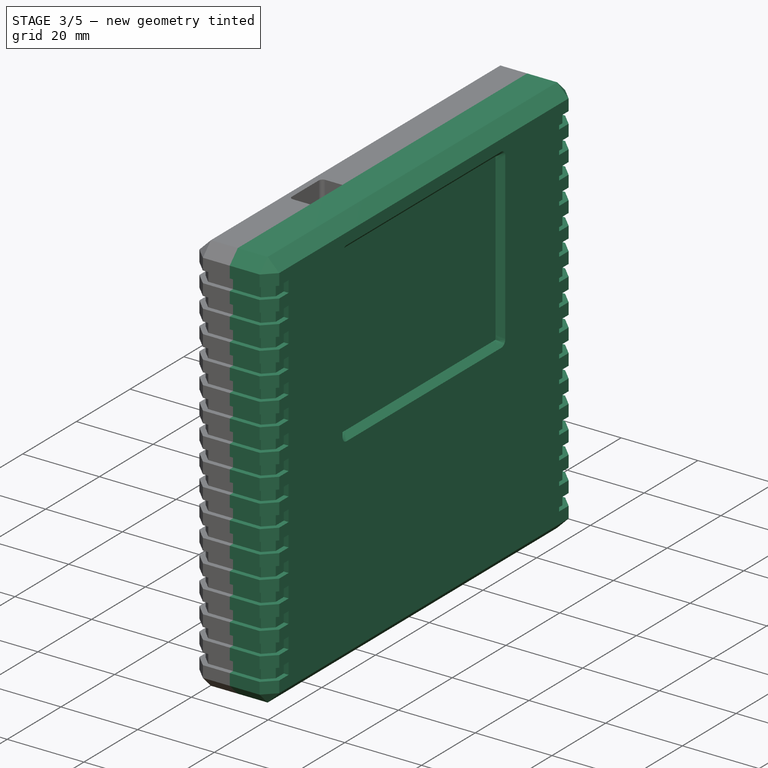
[diagram: stage 3 of 5 — iso view after this stage's code; geometry added in this stage tinted green]
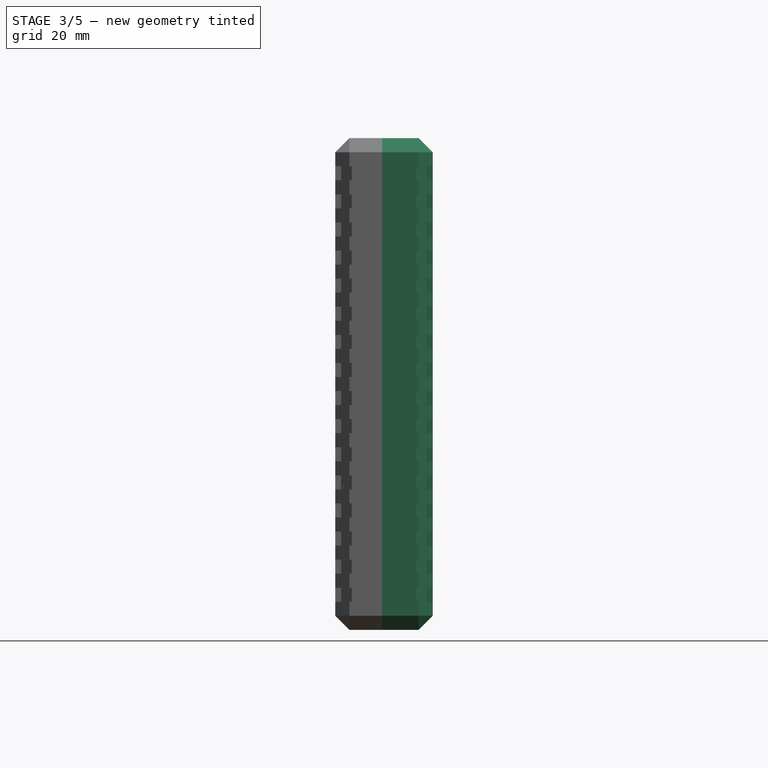
[diagram: stage 3 of 5 — front view after this stage's code; geometry added in this stage tinted green]
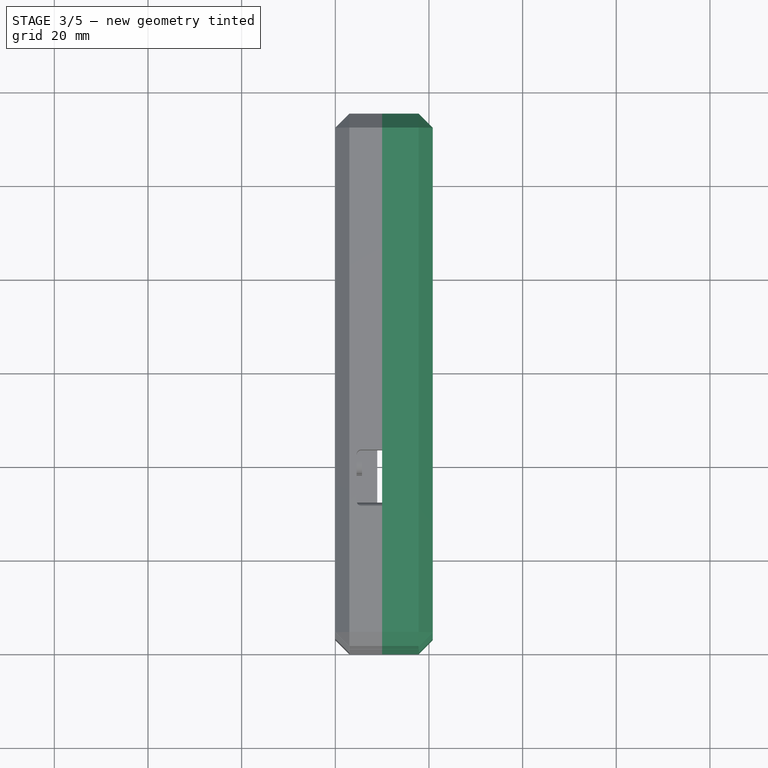
[diagram: stage 3 of 5 — top view after this stage's code; geometry added in this stage tinted green]
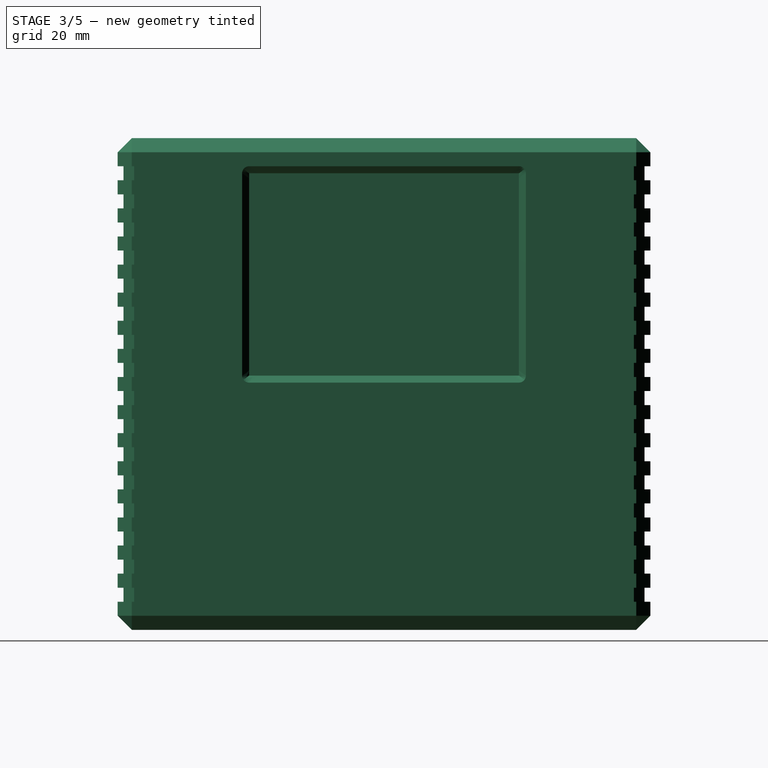
[diagram: stage 3 of 5 — right view after this stage's code; geometry added in this stage tinted green]
FEATURE [PartDesign::AdditiveBox] Box
  AttacherType = Attacher::AttachEngine3D
  Height = 105
  Length = 20.8
  Suppressed = false
  Width = 113.75
FEATURE [PartDesign::Chamfer] Chamfer
  Angle = 45
  Base = -> Box [Edge10,Edge2,Edge12,Edge6,Edge5,Edge1,Edge7,Edge8,Edge9,Edge3,Edge11,Edge4]
  BaseFeature = -> Box
  ChamferType = 0
  FlipDirection = false
  Size = 3.0052
  Size2 = 1
  SupportTransform = false
  Suppressed = false
  UseAllEdges = false
  expr: Size = 4.25 / sqrt(2)
FEATURE [Sketcher::SketchObject] Sketch
  ArcFitTolerance = 1e-06
  AttachmentOffset = pos=(0,0,-6) rot=(0,0,1;0rad)
  AttachmentSupport = -> [Chamfer]
  ExternalGeometry = -> [Chamfer]
  FullyConstrained = false
  MakeInternals = false
  MapMode = 5
  Placement = pos=(0,0,6) rot=(1,0,0;3.14159rad)
  sketch-geometry (28):
    g0: LineSegment StartX=0 StartY=-6.5052 StartZ=0 EndX=4e-16 EndY=-3.0052 EndZ=0
    g1: LineSegment StartX=4e-16 StartY=-3.0052 StartZ=0 EndX=3.0052 EndY=-4e-16 EndZ=0
    g2: LineSegment StartX=3.0052 StartY=-4e-16 StartZ=0 EndX=17.7948 EndY=-9e-16 EndZ=0
    g3: LineSegment StartX=17.277 StartY=-1.25 StartZ=0 EndX=3.52297 EndY=-1.25 EndZ=0
    g4: LineSegment StartX=3.52297 StartY=-1.25 StartZ=0 EndX=1.25 EndY=-3.52297 EndZ=0
    g5: LineSegment StartX=1.25 StartY=-3.52297 StartZ=0 EndX=1.25 EndY=-6.5052 EndZ=0
    g6: LineSegment StartX=1.25 StartY=-6.5052 StartZ=0 EndX=0 EndY=-6.5052 EndZ=0
    g7: LineSegment [constr] StartX=3.52297 StartY=-1.25 StartZ=0 EndX=2.63909 EndY=-0.366117 EndZ=0
    g8: LineSegment StartX=17.277 StartY=-1.25 StartZ=0 EndX=19.55 EndY=-3.52297 EndZ=0
    g9: LineSegment StartX=19.55 StartY=-3.52297 StartZ=0 EndX=19.55 EndY=-6.5052 EndZ=0
    g10: LineSegment StartX=19.55 StartY=-6.5052 StartZ=0 EndX=20.8 EndY=-6.5052 EndZ=0
    g11: LineSegment StartX=20.8 StartY=-6.5052 StartZ=0 EndX=20.8 EndY=-3.0052 EndZ=0
    g12: LineSegment StartX=20.8 StartY=-3.0052 StartZ=0 EndX=17.7948 EndY=-9e-16 EndZ=0
    g13: LineSegment [constr] StartX=17.277 StartY=-1.25 StartZ=0 EndX=17.277 EndY=-9e-16 EndZ=0
    g14: LineSegment [constr] StartX=-28.3985 StartY=-56.875 StartZ=0 EndX=68.4614 EndY=-56.875 EndZ=0
    g15: LineSegment StartX=-7.1e-15 StartY=-107.245 StartZ=0 EndX=-7.5e-15 EndY=-110.745 EndZ=0
    g16: LineSegment StartX=-7.5e-15 StartY=-110.745 StartZ=0 EndX=3.0052 EndY=-113.75 EndZ=0
    g17: LineSegment StartX=3.0052 StartY=-113.75 StartZ=0 EndX=17.7948 EndY=-113.75 EndZ=0
    g18: LineSegment StartX=17.277 StartY=-112.5 StartZ=0 EndX=3.52297 EndY=-112.5 EndZ=0
    g19: LineSegment StartX=3.52297 StartY=-112.5 StartZ=0 EndX=1.25 EndY=-110.227 EndZ=0
    g20: LineSegment StartX=1.25 StartY=-110.227 StartZ=0 EndX=1.25 EndY=-107.245 EndZ=0
    g21: LineSegment StartX=1.25 StartY=-107.245 StartZ=0 EndX=-7.1e-15 EndY=-107.245 EndZ=0
    g22: LineSegment [constr] StartX=3.52297 StartY=-112.5 StartZ=0 EndX=2.63909 EndY=-113.384 EndZ=0
    g23: LineSegment StartX=17.277 StartY=-112.5 StartZ=0 EndX=19.55 EndY=-110.227 EndZ=0
    g24: LineSegment StartX=19.55 StartY=-110.227 StartZ=0 EndX=19.55 EndY=-107.245 EndZ=0
    g25: LineSegment StartX=19.55 StartY=-107.245 StartZ=0 EndX=20.8 EndY=-107.245 EndZ=0
    g26: LineSegment StartX=20.8 StartY=-107.245 StartZ=0 EndX=20.8 EndY=-110.745 EndZ=0
    g27: LineSegment StartX=20.8 StartY=-110.745 StartZ=0 EndX=17.7948 EndY=-113.75 EndZ=0
  constraints (58):
    c: PointOnObject(g0,g-2)
    c: Coincident(g0,g-4)
    c: Coincident(g0,g1)
    c: Coincident(g1,g-4)
    c: Coincident(g1,g2)
    c: Horizontal(g3)
    c: Coincident(g3,g4)
    c: Coincident(g4,g5)
    c: Vertical(g5)
    c: Coincident(g5,g6)
    c: Coincident(g6,g0)
    c: Horizontal(g6)
    c: Parallel(g1,g4)
    c: Coincident(g7,g3)
    c: PointOnObject(g7,g1)
    c: Perpendicular(g1,g7)
    c: DistanceX(g6,g6) = 1.25
    c: DistanceY(g0,g0) = 3.5
    c: Coincident(g2,g-3)
    c: Equal(g6,g7)
    c: Coincident(g3,g8)
    c: Coincident(g8,g9)
    c: Vertical(g9)
    c: Coincident(g9,g10)
    c: Horizontal(g10)
    c: Coincident(g10,g11)
    c: Coincident(g11,g-3)
    c: Vertical(g11)
    c: Coincident(g11,g12)
    c: Coincident(g12,g2)
    c: Horizontal(g4,g8)
    c: Equal(g10,g6)
    c: Horizontal(g5,g9)
    c: Parallel(g8,g12)
    c: Coincident(g13,g3)
    c: PointOnObject(g13,g2)
    c: Vertical(g13)
    c: Equal(g13,g6)
    c: Symmetric(g-5,g11,g14)
    c: Coincident(g15,g16)
    c: Coincident(g16,g17)
    c: Coincident(g18,g19)
    c: Coincident(g19,g20)
    c: Coincident(g20,g21)
    c: Coincident(g21,g15)
    c: Parallel(g16,g19)
    c: Coincident(g22,g18)
    c: PointOnObject(g22,g16)
    c: Perpendicular(g16,g22)
    c: Equal(g21,g22)
    c: Coincident(g18,g23)
    c: Coincident(g23,g24)
    c: Coincident(g24,g25)
    c: Coincident(g25,g26)
    c: Coincident(g26,g27)
    c: Coincident(g27,g17)
    c: Equal(g25,g21)
    c: Parallel(g23,g27)
FEATURE [PartDesign::Pocket] Pocket  label="First lateral carving"
  BaseFeature = -> Chamfer
  Direction = (0,0,1)
  Length = 3
  Length2 = 5
  Profile = -> Sketch
  ReferenceAxis = -> Sketch [N_Axis]
  Suppressed = false
  Type = 0
FEATURE [Part::Part2DObjectPython] LinearArray  # Draft 2D object (typed FeaturePython)
  Alignment = 0
  AttacherType = Attacher::AttachEngine3D
  CellStart = A1
  Count = 16
  Dir = (0,0,1)
  DirIsDriven = true
  DistributionLaw = 0
  DrivenProperty = 1
  EndInclusive = true
  ExposePlacement = false
  GeneratorMode = 1
  MarkerShape = 1
  MarkerSize = 0
  NumElements = 16
  OrientMode = 1
  Point = (0,0,0)
  PointIsDriven = true
  Reverse = false
  SpanEnd = 50
  SpanStart = 0
  Step = 6
  Type = lattice2LinearArray.LinearArray
  VSGVersion = 1
  Values = 0.0 | 6.0 | 12.0 | 18.0 | 24.0 | 30.0 | 36.0 | 42.0 | 48.0 | 54.0 | 60.0 | 66.0 | 72.0 | 78.0 | 84.0 | 90.0
  ValuesSource = 2
  isLattice = 1
FEATURE [PartDesign::FeaturePython] LatticePattern  label="Lateral carving"  # WARN: FeaturePython — macro-defined, semantics opaque (R4)
  BaseFeature = -> Pocket
  FeaturesToCopy = -> [Pocket]
  IgnoreUnsupported = false
  PlacementsTo = -> LinearArray
  Referencing = 1
  Selfintersections = false
  SignOverride = 0
  SkipFirstInBody = false
  Suppressed = false
FEATURE [Sketcher::SketchObject] Sketch001
  ArcFitTolerance = 1e-06
  AttachmentSupport = -> [Box]
  ExternalGeometry = -> [Box]
  FullyConstrained = true
  MakeInternals = false
  MapMode = 5
  Placement = pos=(20.8,0,0) rot=(0.57735,0.57735,0.57735;2.0944rad)
  sketch-geometry (14):
    g0: LineSegment StartX=26.575 StartY=97.5 StartZ=0 EndX=26.575 EndY=54.3 EndZ=0
    g1: LineSegment StartX=28.075 StartY=52.8 StartZ=0 EndX=85.675 EndY=52.8 EndZ=0
    g2: LineSegment StartX=87.175 StartY=54.3 StartZ=0 EndX=87.175 EndY=97.5 EndZ=0
    g3: LineSegment StartX=85.675 StartY=99 StartZ=0 EndX=28.075 EndY=99 EndZ=0
    g4: GeomPoint [constr] X=56.875 Y=75.9 Z=0
    g5: GeomPoint [constr] X=56.875 Y=0 Z=0
    g6: ArcOfCircle CenterX=85.675 CenterY=97.5 CenterZ=0 NormalX=0 NormalY=0 NormalZ=1 AngleXU=0 Radius=1.5 StartAngle=3.4e-15 EndAngle=1.5708
    g7: GeomPoint [constr] X=87.175 Y=99 Z=0
    g8: ArcOfCircle CenterX=85.675 CenterY=54.3 CenterZ=0 NormalX=0 NormalY=0 NormalZ=1 AngleXU=0 Radius=1.5 StartAngle=4.71239 EndAngle=6.28319
    g9: GeomPoint [constr] X=87.175 Y=52.8 Z=0
    g10: ArcOfCircle CenterX=28.075 CenterY=54.3 CenterZ=0 NormalX=0 NormalY=0 NormalZ=1 AngleXU=0 Radius=1.5 StartAngle=3.14159 EndAngle=4.71239
    g11: GeomPoint [constr] X=26.575 Y=52.8 Z=0
    g12: ArcOfCircle CenterX=28.075 CenterY=97.5 CenterZ=0 NormalX=0 NormalY=0 NormalZ=1 AngleXU=0 Radius=1.5 StartAngle=1.5708 EndAngle=3.14159
    g13: GeomPoint [constr] X=26.575 Y=99 Z=0
  constraints (30):
    c: Vertical(g0)
    c: Vertical(g2)
    c: Horizontal(g1)
    c: Horizontal(g3)
    c: Distance(g13,g7) = 60.6
    c: Distance(g11,g13) = 46.2
    c: Symmetric(g11,g7,g4)
    c: Symmetric(g-3,g-1,g5)
    c: Vertical(g4,g5)
    c: DistanceY(g7,g-3) = 6
    c: PointOnObject(g7,g3)
    c: PointOnObject(g7,g2)
    c: Tangent(g3,g6) = -1.5708
    c: Tangent(g2,g6) = -1.5708
    c: PointOnObject(g9,g2)
    c: PointOnObject(g9,g1)
    c: Tangent(g2,g8) = -1.5708
    c: Tangent(g1,g8) = -1.5708
    c: PointOnObject(g11,g1)
    c: PointOnObject(g11,g0)
    c: Tangent(g1,g10) = -1.5708
    c: Tangent(g0,g10) = -1.5708
    c: PointOnObject(g13,g0)
    c: PointOnObject(g13,g3)
    c: Tangent(g0,g12) = -1.5708
    c: Tangent(g3,g12) = -1.5708
    c: Equal(g12,g6)
    c: Equal(g12,g8)
    c: Equal(g12,g10)
    c: Radius(g12) = 1.5
FEATURE [PartDesign::Pocket] Pocket001  label="Front screen pocket"
  BaseFeature = -> LatticePattern
  Direction = (-1,0,0)
  Length = 1.5
  Length2 = 5
  Profile = -> Sketch001
  ReferenceAxis = -> Sketch001 [N_Axis]
  Suppressed = false
  TaperAngle = -45
  Type = 0
FEATURE [PartDesign::Body] Body
  AllowCompound = false
  Group = -> [Box,Chamfer,Sketch,Pocket,LinearArray,LatticePattern,Sketch001,Pocket001]
  Origin = -> Origin
  Tip = -> Pocket001
FEATURE [PartDesign::Plane] DatumPlane  label="Mid Plane"
  AttachmentOffset = pos=(0,0,-10) rot=(0,0,1;0rad)
  AttachmentSupport = -> [Box]
  Length = 528.869
  MapMode = 5
  Placement = pos=(10,0,0) rot=(0.57735,-0.57735,-0.57735;2.0944rad)
  ResizeMode = 0
  Width = 494.744
FEATURE [Part::FeaturePython] Slice  # WARN: FeaturePython — macro-defined, semantics opaque (R4)
  Base = -> Body
  Mode = 1
  Tolerance = 0
  Tools = -> [DatumPlane]
FEATURE [App::DocumentObjectGroup] GrExplode_Slice  label="Exploded Slice"
  Group = -> [Slice_child0]
FEATURE [Part::FeaturePython] Slice_child1  label="Front half"  # WARN: FeaturePython — macro-defined, semantics opaque (R4)
  Base = -> Slice
  FilterType = 1
  Invert = false
  OverrideMaxVal = 0
  WindowFrom = 80
  WindowTo = 100
  items = 1
FEATURE [PartDesign::Body] Body002  label="Front half body"
  AllowCompound = false
  BaseFeature = -> Slice_child1
  Group = -> [BaseFeature001,Sketch015,Pocket008,Binder,Sketch016,Pad006,Sketch017,Pocket009,Sketch018,Pocket010,Sketch019,Pocket011,Sketch020,Pad007,Sketch021,Pad008,Sketch023,Binder001,Sketch024,Pocket012,Sketch030,Sketch031,Pocket015,Pad016,Pad017,Pad018,Fillet003]
  Origin = -> Origin009
  Tip = -> Fillet003
FEATURE [Sketcher::SketchObject] Sketch032
  ArcFitTolerance = 1e-06
  AttachmentSupport = -> [Pocket014]
  ExternalGeometry = -> [Pocket014]
  FullyConstrained = true
  MakeInternals = false
  MapMode = 5
  Placement = pos=(11.7,0,0) rot=(0.57735,0.57735,0.57735;2.0944rad)
  sketch-geometry (8):
    g0: LineSegment StartX=84 StartY=65.45 StartZ=0 EndX=84 EndY=61.6 EndZ=0
    g1: LineSegment StartX=84 StartY=61.6 StartZ=0 EndX=87.75 EndY=61.6 EndZ=0
    g2: LineSegment StartX=87.75 StartY=61.6 StartZ=0 EndX=87.75 EndY=65.45 EndZ=0
    g3: LineSegment StartX=87.75 StartY=65.45 StartZ=0 EndX=84 EndY=65.45 EndZ=0
    g4: LineSegment StartX=52.75 StartY=95.25 StartZ=0 EndX=52.75 EndY=92 EndZ=0
    g5: LineSegment StartX=52.75 StartY=92 StartZ=0 EndX=61.05 EndY=92 EndZ=0
    g6: LineSegment StartX=61.05 StartY=92 StartZ=0 EndX=61.05 EndY=95.25 EndZ=0
    g7: LineSegment StartX=61.05 StartY=95.25 StartZ=0 EndX=52.75 EndY=95.25 EndZ=0
  constraints (21):
    c: Coincident(g0,g1)
    c: Coincident(g1,g2)
    c: Coincident(g2,g3)
    c: Coincident(g3,g0)
    c: Vertical(g0)
    c: Vertical(g2)
    c: Horizontal(g1)
    c: Horizontal(g3)
    c: Coincident(g0,g-5)
    c: Coincident(g1,g-6)
    c: Coincident(g4,g5)
    c: Coincident(g5,g6)
    c: Coincident(g6,g7)
    c: Coincident(g7,g4)
    c: Vertical(g4)
    c: Vertical(g6)
    c: Horizontal(g5)
    c: Horizontal(g7)
    c: Coincident(g4,g-3)
    c: PointOnObject(g-4,g6)
    c: DistanceY(g5,g-4) = 0.75
FEATURE [PartDesign::Pad] Pad019  label="More screen support"
  BaseFeature = -> Pocket014
  Direction = (1,0,0)
  Length = 5.25
  Length2 = 10
  Profile = -> Sketch032
  ReferenceAxis = -> Sketch032 [N_Axis]
  Refine = true
  Suppressed = false
  Type = 0
FEATURE [PartDesign::Body] Body001  label="Back half body"
  AllowCompound = false
  BaseFeature = -> Binder_solid
  Group = -> [BaseFeature,Sketch002,Pocket002,Sketch003,Pocket003,Sketch004,Pocket004,Sketch005,Pad,Sketch006,Pad001,Fillet,Sketch008,Pocket005,Sketch009,Pocket006,Sketch010,Pocket007,Sketch011,Pad002,Fillet001,Sketch012,Pad003,Sketch013,Pad004,Fillet002,Sketch014,Pad005,Sketch026,Pocket013,ShapeString,ShapeString001,Sketch027,Pocket014,Sketch032,Pad019]
  Origin = -> Origin008
  Tip = -> Pad019
note: 2 file-system paths scrubbed to <path> (originals preserved in the JSON sidecar)
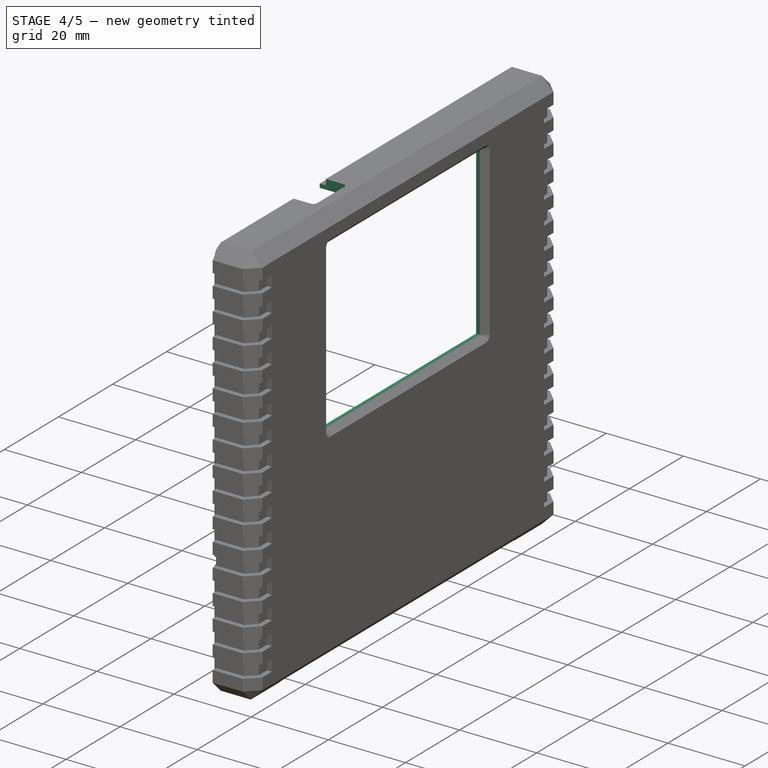
[diagram: stage 4 of 5 — iso view after this stage's code; geometry added in this stage tinted green]
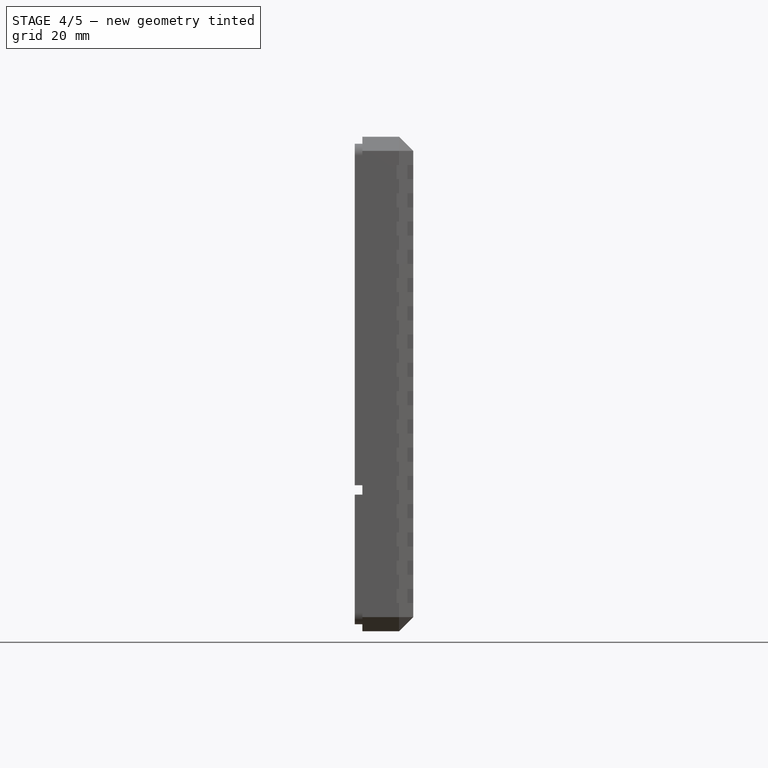
[diagram: stage 4 of 5 — front view after this stage's code; geometry added in this stage tinted green]
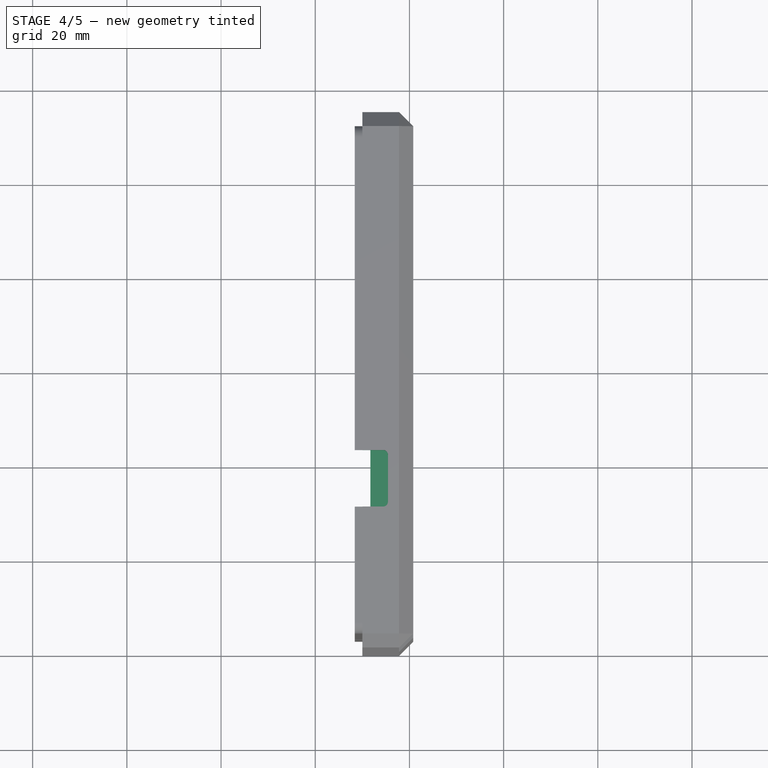
[diagram: stage 4 of 5 — top view after this stage's code; geometry added in this stage tinted green]
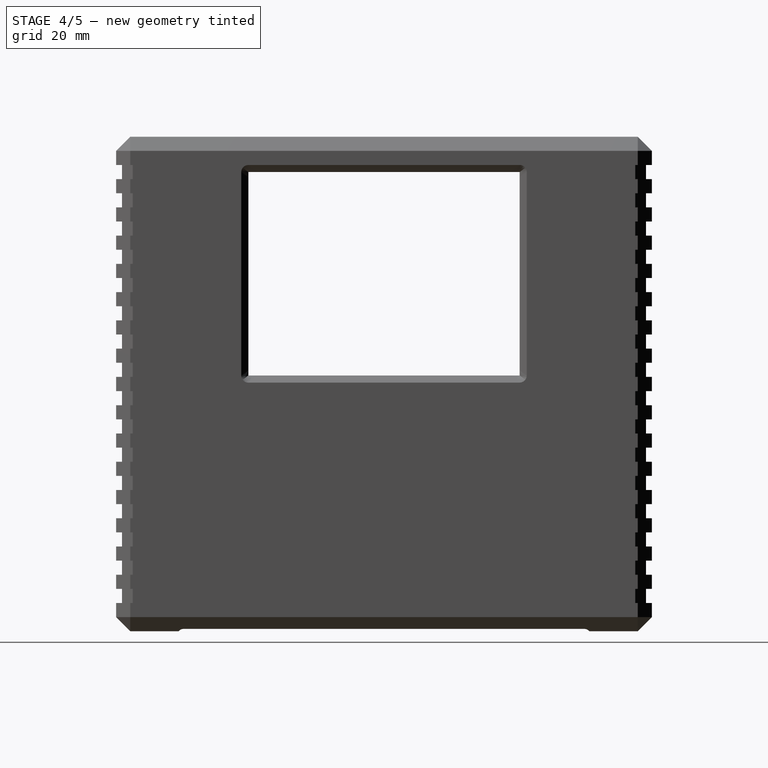
[diagram: stage 4 of 5 — right view after this stage's code; geometry added in this stage tinted green]
FEATURE [PartDesign::FeatureBase] BaseFeature001  label="Front half base"
  BaseFeature = -> Slice_child1
  Suppressed = false
FEATURE [Sketcher::SketchObject] Sketch015
  ArcFitTolerance = 1e-06
  AttachmentSupport = -> [BaseFeature001]
  ExternalGeometry = -> [BaseFeature001]
  FullyConstrained = true
  MakeInternals = false
  MapMode = 5
  Placement = pos=(19.3,0,0) rot=(0.57735,0.57735,0.57735;2.0944rad)
  sketch-geometry (4):
    g0: LineSegment StartX=28.075 StartY=97.5 StartZ=0 EndX=28.075 EndY=54.3 EndZ=0
    g1: LineSegment StartX=28.075 StartY=54.3 StartZ=0 EndX=85.675 EndY=54.3 EndZ=0
    g2: LineSegment StartX=85.675 StartY=54.3 StartZ=0 EndX=85.675 EndY=97.5 EndZ=0
    g3: LineSegment StartX=85.675 StartY=97.5 StartZ=0 EndX=28.075 EndY=97.5 EndZ=0
  constraints (10):
    c: Coincident(g0,g1)
    c: Coincident(g1,g2)
    c: Coincident(g2,g3)
    c: Coincident(g3,g0)
    c: Vertical(g0)
    c: Vertical(g2)
    c: Horizontal(g1)
    c: Horizontal(g3)
    c: Coincident(g0,g-4)
    c: Coincident(g1,g-6)
FEATURE [PartDesign::Pocket] Pocket008  label="Screen pocket"
  BaseFeature = -> BaseFeature001
  Direction = (-1,0,0)
  Length = 5
  Length2 = 5
  Profile = -> Sketch015
  ReferenceAxis = -> Sketch015 [N_Axis]
  Suppressed = false
  Type = 1
FEATURE [PartDesign::SubShapeBinder] Binder  label="Back half binder001"
  BindCopyOnChange = 0
  BindMode = 0
  ClaimChildren = false
  Context = -> Body002 [Binder.]
  Fuse = false
  MakeFace = true
  OffsetFill = false
  OffsetIntersection = false
  OffsetJoinType = 0
  OffsetOpenResult = false
  PartialLoad = false
  Relative = true
  Support = -> [Body001[Pad005.]]
  _Version = 2
FEATURE [Sketcher::SketchObject] Sketch016
  ArcFitTolerance = 1e-06
  AttachmentSupport = -> [Pocket008]
  ExternalGeometry = -> [Binder]
  FullyConstrained = true
  MakeInternals = false
  MapMode = 5
  Placement = pos=(10,0,0) rot=(0.57735,-0.57735,-0.57735;2.0944rad)
  sketch-geometry (32):
    g0: LineSegment StartX=-5.5 StartY=103.5 StartZ=0 EndX=-29.95 EndY=103.5 EndZ=0
    g1: LineSegment StartX=-41.95 StartY=103.5 StartZ=0 EndX=-108.25 EndY=103.5 EndZ=0
    g2: ArcOfCircle CenterX=-108.25 CenterY=101 CenterZ=0 NormalX=0 NormalY=0 NormalZ=1 AngleXU=0 Radius=2.5 StartAngle=1.5708 EndAngle=3.14159
    g3: ArcOfCircle CenterX=-108.25 CenterY=101 CenterZ=0 NormalX=0 NormalY=0 NormalZ=1 AngleXU=0 Radius=1.5 StartAngle=1.5708 EndAngle=3.14159
    g4: ArcOfCircle CenterX=-5.5 CenterY=101 CenterZ=0 NormalX=0 NormalY=0 NormalZ=1 AngleXU=0 Radius=1.5 StartAngle=5.7e-14 EndAngle=1.5708
    g5: ArcOfCircle CenterX=-5.5 CenterY=101 CenterZ=0 NormalX=0 NormalY=0 NormalZ=1 AngleXU=0 Radius=2.5 StartAngle=1e-15 EndAngle=1.5708
    g6: LineSegment StartX=-3 StartY=101 StartZ=0 EndX=-3 EndY=31 EndZ=0
    g7: LineSegment StartX=-4 StartY=101 StartZ=0 EndX=-4 EndY=31 EndZ=0
    g8: LineSegment StartX=-4 StartY=31 StartZ=0 EndX=-3 EndY=31 EndZ=0
    g9: LineSegment StartX=-110.75 StartY=101 StartZ=0 EndX=-110.75 EndY=31 EndZ=0
    g10: LineSegment StartX=-110.75 StartY=31 StartZ=0 EndX=-109.75 EndY=31 EndZ=0
    g11: LineSegment StartX=-109.75 StartY=31 StartZ=0 EndX=-109.75 EndY=101 EndZ=0
    g12: LineSegment StartX=-5.5 StartY=1.5 StartZ=0 EndX=-12.875 EndY=1.5 EndZ=0
    g13: LineSegment StartX=-12.875 StartY=1.5 StartZ=0 EndX=-12.875 EndY=2.5 EndZ=0
    g14: LineSegment StartX=-12.875 StartY=2.5 StartZ=0 EndX=-5.5 EndY=2.5 EndZ=0
    g15: LineSegment StartX=-108.25 StartY=2.5 StartZ=0 EndX=-100.875 EndY=2.5 EndZ=0
    g16: LineSegment StartX=-100.875 StartY=2.5 StartZ=0 EndX=-100.875 EndY=1.5 EndZ=0
    g17: LineSegment StartX=-100.875 StartY=1.5 StartZ=0 EndX=-108.25 EndY=1.5 EndZ=0
    g18: LineSegment StartX=-110.75 StartY=4 StartZ=0 EndX=-110.75 EndY=29 EndZ=0
    g19: LineSegment StartX=-3 StartY=4 StartZ=0 EndX=-3 EndY=29 EndZ=0
    g20: ArcOfCircle CenterX=-5.5 CenterY=4 CenterZ=0 NormalX=0 NormalY=0 NormalZ=1 AngleXU=0 Radius=1.5 StartAngle=4.71239 EndAngle=6.28319
    g21: ArcOfCircle CenterX=-5.5 CenterY=4 CenterZ=0 NormalX=0 NormalY=0 NormalZ=1 AngleXU=0 Radius=2.5 StartAngle=4.71239 EndAngle=6.28319
    g22: ArcOfCircle CenterX=-108.25 CenterY=4 CenterZ=0 NormalX=0 NormalY=0 NormalZ=1 AngleXU=0 Radius=1.5 StartAngle=3.14159 EndAngle=4.71239
    g23: ArcOfCircle CenterX=-108.25 CenterY=4 CenterZ=0 NormalX=0 NormalY=0 NormalZ=1 AngleXU=0 Radius=2.5 StartAngle=3.14159 EndAngle=4.71239
    g24: LineSegment StartX=-4 StartY=4 StartZ=0 EndX=-4 EndY=29 EndZ=0
    g25: LineSegment StartX=-3 StartY=29 StartZ=0 EndX=-4 EndY=29 EndZ=0
    g26: LineSegment StartX=-109.75 StartY=4 StartZ=0 EndX=-109.75 EndY=29 EndZ=0
    g27: LineSegment StartX=-109.75 StartY=29 StartZ=0 EndX=-110.75 EndY=29 EndZ=0
    g28: LineSegment StartX=-5.5 StartY=102.5 StartZ=0 EndX=-29.95 EndY=102.5 EndZ=0
    g29: LineSegment StartX=-29.95 StartY=103.5 StartZ=0 EndX=-29.95 EndY=102.5 EndZ=0
    g30: LineSegment StartX=-108.25 StartY=102.5 StartZ=0 EndX=-41.95 EndY=102.5 EndZ=0
    g31: LineSegment StartX=-41.95 StartY=103.5 StartZ=0 EndX=-41.95 EndY=102.5 EndZ=0
  constraints (78):
    c: Coincident(g0,g-3)
    c: Coincident(g0,g-9)
    c: Coincident(g1,g-6)
    c: Coincident(g2,g-6)
    c: Coincident(g2,g1)
    c: Coincident(g3,g2)
    c: Coincident(g4,g-4)
    c: Coincident(g6,g5)
    c: Coincident(g6,g-19)
    c: Coincident(g7,g4)
    c: Vertical(g7)
    c: Coincident(g8,g7)
    c: Coincident(g8,g6)
    c: Horizontal(g8)
    c: Coincident(g9,g2)
    c: Coincident(g9,g-18)
    c: Vertical(g9)
    c: Coincident(g10,g9)
    c: Horizontal(g10)
    c: Coincident(g11,g10)
    c: Coincident(g11,g3)
    c: Vertical(g11)
    c: Horizontal(g2,g3)
    c: Horizontal(g5,g4)
    c: Coincident(g5,g0)
    c: Coincident(g5,g-3)
    c: Coincident(g12,g-11)
    c: Coincident(g12,g-13)
    c: Coincident(g13,g12)
    c: Coincident(g13,g-13)
    c: Coincident(g14,g13)
    c: Coincident(g14,g-12)
    c: Coincident(g15,g-15)
    c: Coincident(g15,g-14)
    c: Coincident(g16,g15)
    c: Coincident(g16,g-14)
    c: Coincident(g17,g16)
    c: Coincident(g17,g-16)
    c: Coincident(g18,g-16)
    c: Coincident(g18,g-17)
    c: Coincident(g19,g-11)
    c: Coincident(g19,g-20)
    c: Coincident(g20,g-12)
    c: Coincident(g20,g14)
    c: Coincident(g21,g20)
    c: Coincident(g21,g12)
    c: Coincident(g23,g22)
    c: Coincident(g23,g17)
    c: Coincident(g23,g18)
    c: Coincident(g24,g20)
    c: Vertical(g24)
    c: Coincident(g25,g19)
    c: Coincident(g25,g24)
    c: Coincident(g26,g22)
    c: Vertical(g26)
    c: Coincident(g27,g26)
    c: Coincident(g27,g18)
    c: Horizontal(g27)
    c: Horizontal(g25)
    c: Horizontal(g20,g20)
    c: Horizontal(g21,g20)
    c: Vertical(g22,g22)
    c: Coincident(g22,g15)
    c: Horizontal(g22,g22)
    c: Coincident(g28,g4)
    c: Horizontal(g28)
    c: Coincident(g4,g5)
    c: Vertical(g4,g4)
    c: Vertical(g28,g0)
    c: Coincident(g29,g0)
    c: Coincident(g29,g28)
    c: Coincident(g30,g3)
    c: Horizontal(g30)
    c: Vertical(g30,g1)
    c: Coincident(g-5,g3)
    c: Coincident(g1,g-7)
    c: Coincident(g31,g1)
    c: Coincident(g31,g30)
FEATURE [PartDesign::Pad] Pad006  label="Perimeter"
  BaseFeature = -> Pocket008
  Direction = (-1,0,0)
  Length = 1.6
  Length2 = 10
  Profile = -> Sketch016
  ReferenceAxis = -> Sketch016 [N_Axis]
  Suppressed = false
  Type = 0
FEATURE [Sketcher::SketchObject] Sketch017
  ArcFitTolerance = 1e-06
  AttachmentSupport = -> [Pad006]
  ExternalGeometry = -> [Pad006]
  FullyConstrained = true
  MakeInternals = false
  MapMode = 5
  Placement = pos=(10,0,0) rot=(0.57735,-0.57735,-0.57735;2.0944rad)
  sketch-geometry (12):
    g0: LineSegment StartX=-108.25 StartY=102.5 StartZ=0 EndX=-5.5 EndY=102.5 EndZ=0
    g1: LineSegment StartX=-108.25 StartY=2.5 StartZ=0 EndX=-5.5 EndY=2.5 EndZ=0
    g2: ArcOfCircle CenterX=-108.25 CenterY=101 CenterZ=0 NormalX=0 NormalY=0 NormalZ=1 AngleXU=0 Radius=1.5 StartAngle=1.5708 EndAngle=3.14159
    g3: ArcOfCircle CenterX=-5.5 CenterY=101 CenterZ=0 NormalX=0 NormalY=0 NormalZ=1 AngleXU=0 Radius=1.5 StartAngle=-4.4e-15 EndAngle=1.5708
    g4: LineSegment StartX=-109.75 StartY=101 StartZ=0 EndX=-109.75 EndY=31 EndZ=0
    g5: LineSegment StartX=-109.75 StartY=31 StartZ=0 EndX=-4 EndY=31 EndZ=0
    g6: LineSegment StartX=-4 StartY=101 StartZ=0 EndX=-4 EndY=31 EndZ=0
    g7: LineSegment StartX=-4 StartY=29 StartZ=0 EndX=-109.75 EndY=29 EndZ=0
    g8: LineSegment StartX=-109.75 StartY=29 StartZ=0 EndX=-109.75 EndY=4 EndZ=0
    g9: LineSegment StartX=-4 StartY=29 StartZ=0 EndX=-4 EndY=4 EndZ=0
    g10: ArcOfCircle CenterX=-5.5 CenterY=4 CenterZ=0 NormalX=0 NormalY=0 NormalZ=1 AngleXU=0 Radius=1.5 StartAngle=4.71239 EndAngle=6.28319
    g11: ArcOfCircle CenterX=-108.25 CenterY=4 CenterZ=0 NormalX=0 NormalY=0 NormalZ=1 AngleXU=0 Radius=1.5 StartAngle=3.14159 EndAngle=4.71239
  constraints (28):
    c: Coincident(g0,g-3)
    c: Coincident(g0,g-4)
    c: Coincident(g1,g-6)
    c: Coincident(g1,g-5)
    c: Coincident(g2,g-3)
    c: Coincident(g3,g-4)
    c: Coincident(g3,g0)
    c: Coincident(g4,g2)
    c: Coincident(g4,g-7)
    c: Coincident(g5,g4)
    c: Coincident(g5,g-9)
    c: Coincident(g6,g3)
    c: Coincident(g6,g5)
    c: Coincident(g7,g-10)
    c: Coincident(g7,g-8)
    c: Coincident(g8,g7)
    c: Coincident(g8,g-6)
    c: Coincident(g9,g7)
    c: Coincident(g9,g-5)
    c: Coincident(g2,g0)
    c: Horizontal(g2,g2)
    c: Coincident(g10,g-5)
    c: Coincident(g10,g1)
    c: Horizontal(g10,g10)
    c: Coincident(g11,g8)
    c: Coincident(g11,g-6)
    c: Vertical(g11,g11)
    c: Horizontal(g3,g3)
FEATURE [PartDesign::Pocket] Pocket009  label="Main front pocket"
  BaseFeature = -> Pad006
  Direction = (1,0,0)
  Length = 8.3
  Length2 = 5
  Profile = -> Sketch017
  ReferenceAxis = -> Sketch017 [N_Axis]
  Refine = true
  Suppressed = false
  Type = 0
FEATURE [Sketcher::SketchObject] Sketch018
  ArcFitTolerance = 1e-06
  AttachmentSupport = -> [Pocket009]
  ExternalGeometry = -> [Pocket009,Binder]
  FullyConstrained = true
  MakeInternals = false
  MapMode = 5
  Placement = pos=(0,0,0) rot=(1,0,0;3.14159rad)
  sketch-geometry (7):
    g0: LineSegment [constr] StartX=3.2 StartY=-12.875 StartZ=0 EndX=16.8 EndY=-12.875 EndZ=0
    g1: LineSegment StartX=10 StartY=-12.875 StartZ=0 EndX=16.8 EndY=-12.875 EndZ=0
    g2: LineSegment StartX=18.3 StartY=-14.375 StartZ=0 EndX=18.3 EndY=-99.375 EndZ=0
    g3: LineSegment StartX=10 StartY=-100.875 StartZ=0 EndX=16.8 EndY=-100.875 EndZ=0
    g4: LineSegment StartX=10 StartY=-12.875 StartZ=0 EndX=10 EndY=-100.875 EndZ=0
    g5: ArcOfCircle CenterX=16.8 CenterY=-14.375 CenterZ=0 NormalX=0 NormalY=0 NormalZ=1 AngleXU=0 Radius=1.5 StartAngle=4e-16 EndAngle=1.5708
    g6: ArcOfCircle CenterX=16.8 CenterY=-99.375 CenterZ=0 NormalX=0 NormalY=0 NormalZ=1 AngleXU=0 Radius=1.5 StartAngle=4.71239 EndAngle=6.28319
  constraints (18):
    c: Coincident(g0,g-4)
    c: Symmetric(g0,g0,g-3)
    c: Coincident(g1,g-4)
    c: Coincident(g1,g0)
    c: Vertical(g2)
    c: Symmetric(g2,g-5,g-3)
    c: Coincident(g3,g-6)
    c: Horizontal(g3)
    c: Vertical(g3,g0)
    c: Coincident(g4,g1)
    c: Coincident(g4,g3)
    c: Coincident(g5,g0)
    c: Coincident(g5,g2)
    c: Horizontal(g5,g2)
    c: Vertical(g5,g0)
    c: Coincident(g6,g2)
    c: Coincident(g6,g3)
    c: Horizontal(g6,g2)
FEATURE [PartDesign::Pocket] Pocket010  label="PCB front opening"
  BaseFeature = -> Pocket009
  Direction = (0,0,1)
  Length = 0
  Length2 = 5
  Profile = -> Sketch018
  ReferenceAxis = -> Sketch018 [N_Axis]
  Refine = true
  Suppressed = false
  Type = 3
  UpToFace = -> Pocket009 [Face319]
FEATURE [Sketcher::SketchObject] Sketch019
  ArcFitTolerance = 1e-06
  AttachmentSupport = -> [Pocket010]
  ExternalGeometry = -> [Pocket010]
  FullyConstrained = true
  MakeInternals = false
  MapMode = 5
  Placement = pos=(10,0,0) rot=(0.57735,-0.57735,-0.57735;2.0944rad)
  sketch-geometry (4):
    g0: LineSegment StartX=-110.75 StartY=31 StartZ=0 EndX=-3 EndY=31 EndZ=0
    g1: LineSegment StartX=-3 StartY=31 StartZ=0 EndX=-3 EndY=29 EndZ=0
    g2: LineSegment StartX=-3 StartY=29 StartZ=0 EndX=-110.75 EndY=29 EndZ=0
    g3: LineSegment StartX=-110.75 StartY=29 StartZ=0 EndX=-110.75 EndY=31 EndZ=0
  constraints (8):
    c: Coincident(g0,g-3)
    c: Coincident(g0,g-5)
    c: Coincident(g0,g1)
    c: Coincident(g1,g-6)
    c: Coincident(g1,g2)
    c: Coincident(g2,g-4)
    c: Coincident(g2,g3)
    c: Coincident(g3,g0)
FEATURE [PartDesign::Pocket] Pocket011  label="Inner wall pocket"
  BaseFeature = -> Pocket010
  Direction = (1,0,0)
  Length = 0
  Length2 = 5
  Profile = -> Sketch019
  ReferenceAxis = -> Sketch019 [N_Axis]
  Refine = true
  Suppressed = false
  Type = 3
  UpToFace = -> Binder [Face45]
FEATURE [Sketcher::SketchObject] Sketch020
  ArcFitTolerance = 1e-06
  AttachmentSupport = -> [Pocket011]
  ExternalGeometry = -> [Binder]
  FullyConstrained = true
  MakeInternals = false
  MapMode = 5
  Placement = pos=(18.3,0,0) rot=(0.57735,-0.57735,-0.57735;2.0944rad)
  sketch-geometry (4):
    g0: Circle CenterX=-84.375 CenterY=34 CenterZ=0 NormalX=0 NormalY=0 NormalZ=1 AngleXU=0 Radius=1.5
    g1: Circle CenterX=-56.875 CenterY=44 CenterZ=0 NormalX=0 NormalY=0 NormalZ=1 AngleXU=0 Radius=1.375
    g2: Circle CenterX=-56.875 CenterY=44 CenterZ=0 NormalX=0 NormalY=0 NormalZ=1 AngleXU=0 Radius=3.25
    g3: Circle CenterX=-29.375 CenterY=34 CenterZ=0 NormalX=0 NormalY=0 NormalZ=1 AngleXU=0 Radius=1.5
  constraints (8):
    c: Coincident(g0,g-5)
    c: Equal(g0,g-5)
    c: Coincident(g1,g-4)
    c: Coincident(g2,g1)
    c: Coincident(g3,g-6)
    c: Equal(g3,g-6)
    c: Equal(g-3,g2)
    c: Diameter(g1) = 2.75
FEATURE [PartDesign::Pad] Pad007  label="Front columns"
  BaseFeature = -> Pocket011
  Direction = (-1,0,0)
  Length = 10
  Length2 = 10
  Profile = -> Sketch020
  ReferenceAxis = -> Sketch020 [N_Axis]
  Suppressed = false
  Type = 3
  UpToFace = -> Pocket011 [Face279]
FEATURE [Sketcher::SketchObject] Sketch021
  ArcFitTolerance = 1e-06
  AttachmentSupport = -> [Pad007]
  ExternalGeometry = -> [Pad007]
  FullyConstrained = true
  MakeInternals = false
  MapMode = 5
  Placement = pos=(18.3,0,0) rot=(0.57735,-0.57735,-0.57735;2.0944rad)
  sketch-geometry (9):
    g0: LineSegment StartX=-19.175 StartY=103.15 StartZ=0 EndX=-91.175 EndY=103.15 EndZ=0
    g1: LineSegment StartX=-91.175 StartY=103.15 StartZ=0 EndX=-91.175 EndY=48.65 EndZ=0
    g2: LineSegment StartX=-91.175 StartY=48.65 StartZ=0 EndX=-19.175 EndY=48.65 EndZ=0
    g3: LineSegment StartX=-19.175 StartY=48.65 StartZ=0 EndX=-19.175 EndY=50.65 EndZ=0
    g4: LineSegment StartX=-19.175 StartY=50.65 StartZ=0 EndX=-89.175 EndY=50.65 EndZ=0
    g5: LineSegment StartX=-89.175 StartY=50.65 StartZ=0 EndX=-89.175 EndY=101.15 EndZ=0
    g6: LineSegment StartX=-89.175 StartY=101.15 StartZ=0 EndX=-19.175 EndY=101.15 EndZ=0
    g7: LineSegment StartX=-19.175 StartY=101.15 StartZ=0 EndX=-19.175 EndY=103.15 EndZ=0
    g8: LineSegment [constr] StartX=-85.675 StartY=75.9 StartZ=0 EndX=-28.075 EndY=75.9 EndZ=0
  constraints (25):
    c: Horizontal(g0)
    c: Coincident(g0,g1)
    c: Vertical(g1)
    c: Coincident(g1,g2)
    c: Horizontal(g2)
    c: Coincident(g2,g3)
    c: Vertical(g3)
    c: Coincident(g3,g4)
    c: Horizontal(g4)
    c: Coincident(g4,g5)
    c: Coincident(g5,g6)
    c: Horizontal(g6)
    c: Coincident(g6,g7)
    c: Coincident(g7,g0)
    c: Vertical(g7)
    c: Vertical(g6,g3)
    c: DistanceX(g6,g6) = 70
    c: Equal(g7,g3)
    c: DistanceY(g3,g6) = 50.5
    c: DistanceX(g5,g-3) = 3.5
    c: Symmetric(g-3,g-3,g8)
    c: Symmetric(g-4,g-4,g8)
    c: Symmetric(g5,g4,g8)
    c: DistanceY(g3,g3) = 2
    c: DistanceX(g1,g4) = 2
FEATURE [PartDesign::Pad] Pad008  label="Screen perimeter wall"
  BaseFeature = -> Pad007
  Direction = (-1,0,0)
  Length = 1.3
  Length2 = 10
  Profile = -> Sketch021
  ReferenceAxis = -> Sketch021 [N_Axis]
  Suppressed = false
  Type = 0
FEATURE [PartDesign::SubShapeBinder] Binder001  label="Screen holder sketch binder"
  BindCopyOnChange = 0
  BindMode = 0
  ClaimChildren = false
  Context = -> Body002 [Binder001.]
  Fuse = false
  MakeFace = true
  OffsetFill = false
  OffsetIntersection = false
  OffsetJoinType = 0
  OffsetOpenResult = false
  PartialLoad = false
  Placement = pos=(0,0,-47.5) rot=(0,0,1;0rad)
  Relative = true
  Support = -> [Sketch023]
  _Version = 2
FEATURE [Sketcher::SketchObject] Sketch024
  ArcFitTolerance = 1e-06
  AttachmentSupport = -> [Pad008]
  ExternalGeometry = -> [Binder]
  FullyConstrained = true
  MakeInternals = false
  MapMode = 5
  Placement = pos=(0,0,105) rot=(0,0,1;0rad)
  sketch-geometry (6):
    g0: LineSegment StartX=10 StartY=41.95 StartZ=0 EndX=14.44 EndY=41.95 EndZ=0
    g1: LineSegment StartX=10 StartY=29.95 StartZ=0 EndX=14.44 EndY=29.95 EndZ=0
    g2: LineSegment StartX=15.44 StartY=40.95 StartZ=0 EndX=15.44 EndY=30.95 EndZ=0
    g3: LineSegment StartX=10 StartY=41.95 StartZ=0 EndX=10 EndY=29.95 EndZ=0
    g4: ArcOfCircle CenterX=14.44 CenterY=40.95 CenterZ=0 NormalX=0 NormalY=0 NormalZ=1 AngleXU=0 Radius=1 StartAngle=2.8364e-12 EndAngle=1.5708
    g5: ArcOfCircle CenterX=14.44 CenterY=30.95 CenterZ=0 NormalX=0 NormalY=0 NormalZ=1 AngleXU=0 Radius=1 StartAngle=4.71239 EndAngle=6.28319
  constraints (14):
    c: Coincident(g0,g-3)
    c: Coincident(g1,g-5)
    c: Coincident(g3,g0)
    c: Coincident(g3,g1)
    c: Symmetric(g-3,g0,g3)
    c: Symmetric(g-5,g1,g3)
    c: Symmetric(g-4,g2,g3)
    c: Symmetric(g-4,g2,g3)
    c: Coincident(g4,g0)
    c: Coincident(g4,g2)
    c: Coincident(g5,g2)
    c: Coincident(g5,g1)
    c: Horizontal(g5,g2)
    c: Horizontal(g4,g2)
FEATURE [PartDesign::Pocket] Pocket012  label="USB front pocket"
  BaseFeature = -> Pad008
  Direction = (0,0,-1)
  Length = 0
  Length2 = 5
  Profile = -> Sketch024
  ReferenceAxis = -> Sketch024 [N_Axis]
  Refine = true
  Suppressed = false
  Type = 3
  UpToFace = -> Pad008 [Face90]
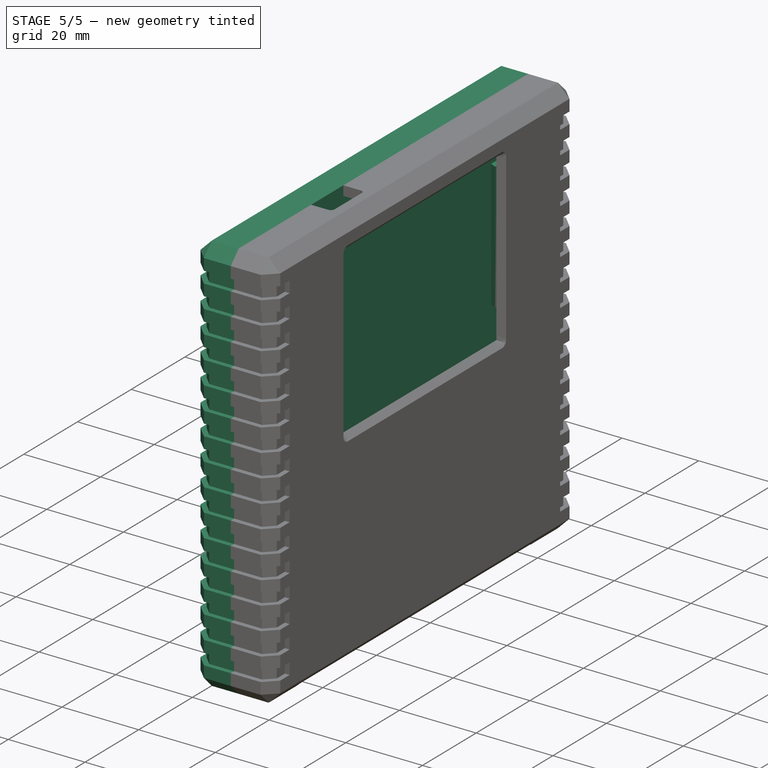
[diagram: stage 5 of 5 — iso view after this stage's code; geometry added in this stage tinted green]
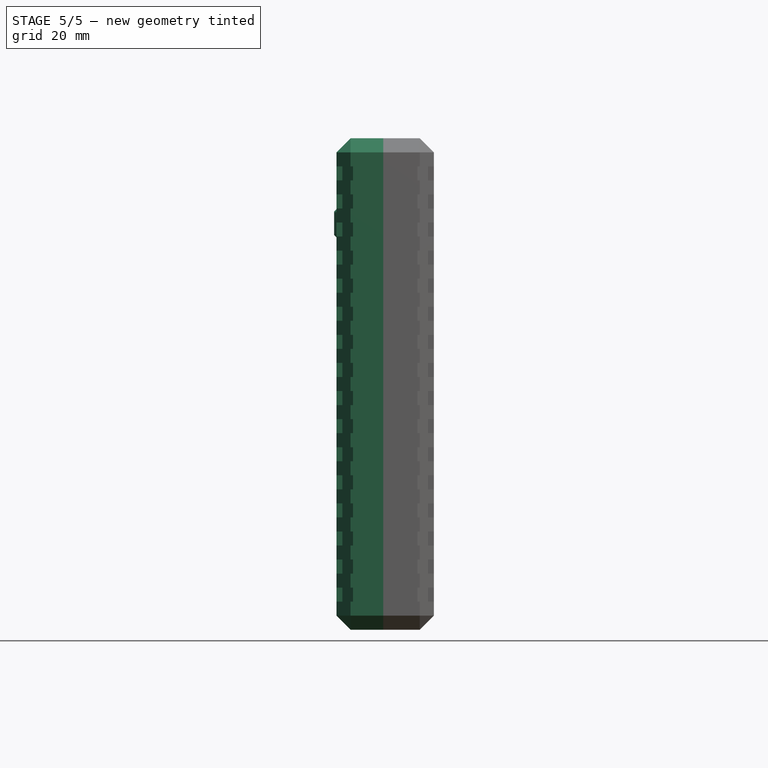
[diagram: stage 5 of 5 — front view after this stage's code; geometry added in this stage tinted green]
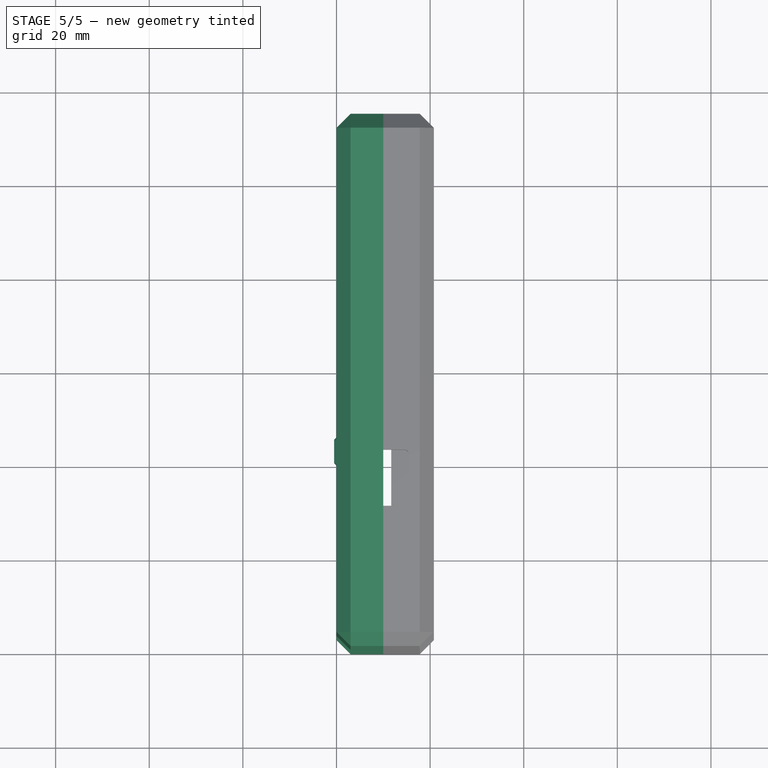
[diagram: stage 5 of 5 — top view after this stage's code; geometry added in this stage tinted green]
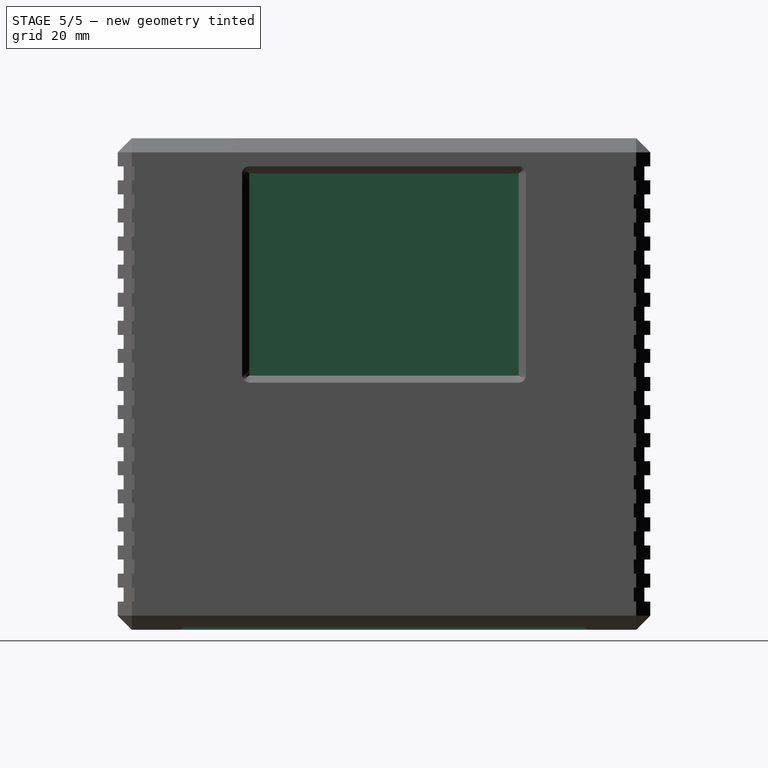
[diagram: stage 5 of 5 — right view after this stage's code; geometry added in this stage tinted green]
FEATURE [Part::FeaturePython] Slice_child0  label="Back half"  # WARN: FeaturePython — macro-defined, semantics opaque (R4)
  Base = -> Slice
  FilterType = 1
  Invert = false
  OverrideMaxVal = 0
  WindowFrom = 80
  WindowTo = 100
  items = 0
FEATURE [Sketcher::SketchObject] Sketch028
  ArcFitTolerance = 1e-06
  AttachmentSupport = -> [Binder002]
  ExternalGeometry = -> [Binder002]
  FullyConstrained = true
  MakeInternals = false
  MapMode = 5
  Placement = pos=(0,0,0) rot=(0.57735,-0.57735,-0.57735;2.0944rad)
  sketch-geometry (11):
    g0: LineSegment StartX=-44.85 StartY=89.1 StartZ=0 EndX=-44.85 EndY=84.6 EndZ=0
    g1: LineSegment StartX=-44.1 StartY=83.85 StartZ=0 EndX=-39.6 EndY=83.85 EndZ=0
    g2: LineSegment StartX=-38.85 StartY=84.6 StartZ=0 EndX=-38.85 EndY=89.1 EndZ=0
    g3: LineSegment StartX=-39.6 StartY=89.85 StartZ=0 EndX=-44.1 EndY=89.85 EndZ=0
    g4: ArcOfCircle CenterX=-44.1 CenterY=89.1 CenterZ=0 NormalX=0 NormalY=0 NormalZ=1 AngleXU=0 Radius=0.75 StartAngle=1.5708 EndAngle=3.14159
    g5: ArcOfCircle CenterX=-44.1 CenterY=84.6 CenterZ=0 NormalX=0 NormalY=0 NormalZ=1 AngleXU=0 Radius=0.75 StartAngle=3.14159 EndAngle=4.71239
    g6: ArcOfCircle CenterX=-39.6 CenterY=84.6 CenterZ=0 NormalX=0 NormalY=0 NormalZ=1 AngleXU=0 Radius=0.75 StartAngle=4.71239 EndAngle=6.28319
    g7: ArcOfCircle CenterX=-39.6 CenterY=89.1 CenterZ=0 NormalX=0 NormalY=0 NormalZ=1 AngleXU=0 Radius=0.75 StartAngle=-1.8e-15 EndAngle=1.5708
    g8: GeomPoint [constr] X=-44.85 Y=89.85 Z=0
    g9: GeomPoint [constr] X=-38.85 Y=83.85 Z=0
    g10: GeomPoint [constr] X=-41.85 Y=86.85 Z=0
  constraints (24):
    c: Tangent(g0,g4) = -1.5708
    c: Tangent(g0,g5) = -1.5708
    c: Tangent(g1,g5) = -1.5708
    c: Tangent(g1,g6) = -1.5708
    c: Tangent(g2,g6) = -1.5708
    c: Tangent(g2,g7) = -1.5708
    c: Tangent(g3,g7) = -1.5708
    c: Tangent(g3,g4) = -1.5708
    c: Vertical(g0)
    c: Vertical(g2)
    c: Horizontal(g1)
    c: Horizontal(g3)
    c: Equal(g4,g5)
    c: Equal(g5,g6)
    c: Equal(g6,g7)
    c: PointOnObject(g8,g0)
    c: PointOnObject(g8,g3)
    c: PointOnObject(g9,g1)
    c: PointOnObject(g9,g2)
    c: Symmetric(g7,g5,g10)
    c: Symmetric(g-6,g-5,g10)
    c: Equal(g3,g0)
    c: Horizontal(g7,g-3)
    c: DistanceX(g2,g-3) = 0.25
FEATURE [PartDesign::Pad] Pad013
  Direction = (-1,0,0)
  Length = 10
  Length2 = 10
  Profile = -> Sketch028
  ReferenceAxis = -> Sketch028 [N_Axis]
  Reversed = true
  Suppressed = false
  Type = 3
  UpToFace = -> Binder002 [Face98]
FEATURE [Sketcher::SketchObject] Sketch029
  ArcFitTolerance = 1e-06
  AttachmentSupport = -> [Pad013]
  ExternalGeometry = -> [Binder002,Pad013]
  FullyConstrained = false
  MakeInternals = false
  MapMode = 5
  Placement = pos=(5.7,0,0) rot=(0.57735,0.57735,0.57735;2.0944rad)
  sketch-geometry (9):
    g0: LineSegment StartX=38.85 StartY=89.1 StartZ=0 EndX=38.85 EndY=84.6 EndZ=0
    g1: LineSegment StartX=41.35 StartY=82.1 StartZ=0 EndX=44.1 EndY=82.1 EndZ=0
    g2: LineSegment StartX=46.6 StartY=84.6 StartZ=0 EndX=46.6 EndY=89.1 EndZ=0
    g3: ArcOfCircle CenterX=44.1 CenterY=84.6 CenterZ=0 NormalX=0 NormalY=0 NormalZ=1 AngleXU=0 Radius=2.5 StartAngle=4.71239 EndAngle=6.28319
    g4: ArcOfCircle CenterX=44.1 CenterY=89.1 CenterZ=0 NormalX=0 NormalY=0 NormalZ=1 AngleXU=0 Radius=2.5 StartAngle=0 EndAngle=1.5708
    g5: GeomPoint [constr] X=46.6 Y=82.1 Z=0
    g6: LineSegment StartX=44.1 StartY=91.6 StartZ=0 EndX=41.35 EndY=91.6 EndZ=0
    g7: ArcOfCircle CenterX=41.35 CenterY=89.1 CenterZ=0 NormalX=0 NormalY=0 NormalZ=1 AngleXU=0 Radius=2.5 StartAngle=1.5708 EndAngle=3.14159
    g8: ArcOfCircle CenterX=41.35 CenterY=84.6 CenterZ=0 NormalX=0 NormalY=0 NormalZ=1 AngleXU=0 Radius=2.5 StartAngle=3.14159 EndAngle=4.71239
  constraints (26):
    c: Vertical(g0)
    c: Horizontal(g1)
    c: Equal(g3,g4)
    c: PointOnObject(g5,g1)
    c: Coincident(g1,g-4)
    c: Vertical(g4,g4)
    c: Horizontal(g4,g4)
    c: Vertical(g3,g3)
    c: Horizontal(g3,g3)
    c: Coincident(g3,g2)
    c: Coincident(g4,g2)
    c: Coincident(g2,g-5)
    c: Coincident(g2,g-5)
    c: Coincident(g6,g4)
    c: PointOnObject(g6,g-3)
    c: Horizontal(g6)
    c: Vertical(g6,g1)
    c: Vertical(g7,g7)
    c: Horizontal(g7,g7)
    c: Coincident(g6,g7)
    c: Coincident(g7,g-6)
    c: Coincident(g0,g7)
    c: Coincident(g8,g1)
    c: Horizontal(g8,g8)
    c: Vertical(g8,g1)
    c: Coincident(g0,g8)
FEATURE [PartDesign::Pad] Pad014
  BaseFeature = -> Pad013
  Direction = (1,0,0)
  Length = 2.5
  Length2 = 10
  Profile = -> Sketch029
  ReferenceAxis = -> Sketch029 [N_Axis]
  Suppressed = false
  Type = 0
FEATURE [PartDesign::Pad] Pad015
  BaseFeature = -> Pad014
  Direction = (-1,0,0)
  Length = 0.5
  Length2 = 10
  Profile = -> Sketch028
  ReferenceAxis = -> Sketch028 [N_Axis]
  Refine = true
  Suppressed = false
  TaperAngle = -45
  Type = 0
FEATURE [PartDesign::Body] Body003  label="Button"
  AllowCompound = false
  Group = -> [Binder002,Sketch028,Pad013,Sketch029,Pad014,Pad015]
  Origin = -> Origin010
  Tip = -> Pad015
FEATURE [Sketcher::SketchObject] Sketch031
  ArcFitTolerance = 1e-06
  FullyConstrained = true
  MakeInternals = false
  MapMode = 5
  Placement = pos=(18.3,0,0) rot=(0.57735,-0.57735,-0.57735;2.0944rad)
  sketch-geometry (6):
    g0: LineSegment StartX=-89.175 StartY=101.15 StartZ=0 EndX=-89.175 EndY=50.65 EndZ=0
    g1: LineSegment StartX=-89.175 StartY=50.65 StartZ=0 EndX=-19.175 EndY=50.65 EndZ=0
    g2: LineSegment StartX=-19.175 StartY=50.65 StartZ=0 EndX=-19.175 EndY=101.15 EndZ=0
    g3: LineSegment StartX=-19.175 StartY=101.15 StartZ=0 EndX=-89.175 EndY=101.15 EndZ=0
    g4: LineSegment [constr] StartX=-87.175 StartY=50.65 StartZ=0 EndX=-17.175 EndY=50.65 EndZ=0
    g5: LineSegment [constr] StartX=-87.175 StartY=50.65 StartZ=0 EndX=-87.175 EndY=101.15 EndZ=0
  constraints (16):
    c: Coincident(g0,g1)
    c: Coincident(g1,g2)
    c: Coincident(g2,g3)
    c: Coincident(g3,g0)
    c: Vertical(g0)
    c: Vertical(g2)
    c: Horizontal(g1)
    c: Horizontal(g3)
    c: Coincident(g4,g-5)
    c: Coincident(g4,g-6)
    c: Coincident(g5,g4)
    c: Coincident(g5,g-4)
    c: Horizontal(g0,g5)
    c: Horizontal(g0,g4)
    c: Equal(g4,g1)
    c: DistanceX(g0,g4) = 2
FEATURE [PartDesign::Pocket] Pocket015  label="Back of screen pocket"
  BaseFeature = -> Pocket012
  Direction = (1,-1e-16,1e-16)
  Length = 1
  Length2 = 5
  Profile = -> Sketch031
  ReferenceAxis = -> Sketch031 [N_Axis]
  Refine = true
  Suppressed = false
  Type = 0
FEATURE [Sketcher::SketchObject] Sketch023
  ArcFitTolerance = 1e-06
  AttachmentOffset = pos=(0,0,3) rot=(0,0,1;0rad)
  ExternalGeometry = -> [Pocket015]
  FullyConstrained = true
  MakeInternals = false
  MapMode = 5
  Placement = pos=(9.4465e-12,-3.901e-13,99.5) rot=(1,0,0;3.14159rad)
  sketch-geometry (7):
    g0: LineSegment StartX=18.3 StartY=-19.175 StartZ=0 EndX=17 EndY=-19.175 EndZ=0
    g1: LineSegment StartX=17 StartY=-19.175 StartZ=0 EndX=17 EndY=-19.925 EndZ=0
    g2: LineSegment StartX=17 StartY=-19.925 StartZ=0 EndX=15.5 EndY=-19.175 EndZ=0
    g3: LineSegment StartX=15.5 StartY=-17.175 StartZ=0 EndX=16.8 EndY=-17.175 EndZ=0
    g4: ArcOfCircle CenterX=16.8 CenterY=-15.675 CenterZ=0 NormalX=0 NormalY=0 NormalZ=1 AngleXU=0 Radius=1.5 StartAngle=4.71239 EndAngle=6.28319
    g5: LineSegment StartX=18.3 StartY=-15.675 StartZ=0 EndX=18.3 EndY=-19.175 EndZ=0
    g6: LineSegment StartX=15.5 StartY=-17.175 StartZ=0 EndX=15.5 EndY=-19.175 EndZ=0
  constraints (20):
    c: Coincident(g0,g1)
    c: Vertical(g1)
    c: Coincident(g1,g2)
    c: Horizontal(g3)
    c: Tangent(g3,g4) = -1.5708
    c: Coincident(g4,g5)
    c: Coincident(g5,g0)
    c: Vertical(g5)
    c: Horizontal(g4,g4)
    c: Horizontal(g2,g0)
    c: DistanceY(g1,g1) = 0.75
    c: DistanceX(g2,g0) = 1.5
    c: Radius(g4) = 1.5
    c: Vertical(g3,g2)
    c: Coincident(g6,g3)
    c: Coincident(g6,g2)
    c: DistanceY(g6,g6) = 2
    c: DistanceX(g0,g0) = 1.3
    c: Coincident(g0,g-3)
    c: Horizontal(g0)
FEATURE [PartDesign::Pad] Pad016  label="Screen holder 1"
  BaseFeature = -> Pocket015
  Direction = (-9.5e-14,3.9e-15,-1)
  Length = 4
  Length2 = 10
  Profile = -> Sketch023
  ReferenceAxis = -> Sketch023 [N_Axis]
  Suppressed = false
  Type = 0
FEATURE [PartDesign::Pad] Pad017  label="Screen holder 2"
  BaseFeature = -> Pad016
  Direction = (9.53e-14,-5.4e-15,1)
  Length = 3
  Length2 = 10
  Profile = -> Binder001
  Suppressed = false
  Type = 0
FEATURE [Sketcher::SketchObject] Sketch030
  ArcFitTolerance = 1e-06
  AttachmentOffset = pos=(0,0,9) rot=(0,0,1;0rad)
  ExternalGeometry = -> [Pad017]
  FullyConstrained = true
  MakeInternals = false
  MapMode = 5
  Placement = pos=(8.8768e-12,-3.665e-13,93.5) rot=(1,0,0;3.14159rad)
  sketch-geometry (4):
    g0: LineSegment StartX=17 StartY=-88.425 StartZ=0 EndX=15.5 EndY=-89.175 EndZ=0
    g1: LineSegment StartX=15.5 StartY=-89.175 StartZ=0 EndX=15.5 EndY=-91.175 EndZ=0
    g2: LineSegment StartX=15.5 StartY=-91.175 StartZ=0 EndX=17 EndY=-91.175 EndZ=0
    g3: LineSegment StartX=17 StartY=-88.425 StartZ=0 EndX=17 EndY=-91.175 EndZ=0
  constraints (11):
    c: Coincident(g0,g1)
    c: Vertical(g1)
    c: Coincident(g1,g2)
    c: Horizontal(g2)
    c: DistanceX(g2,g2) = 1.5
    c: DistanceY(g0,g0) = 0.75
    c: Coincident(g3,g0)
    c: Coincident(g3,g2)
    c: Vertical(g3)
    c: Coincident(g2,g-4)
    c: Horizontal(g-3,g0)
FEATURE [PartDesign::Pad] Pad018  label="Screen holder 3"
  BaseFeature = -> Pad017
  Direction = (-9.5e-14,3.9e-15,-1)
  Length = 33.2
  Length2 = 10
  Profile = -> Sketch030
  ReferenceAxis = -> Sketch030 [N_Axis]
  Refine = true
  Suppressed = false
  Type = 0
FEATURE [PartDesign::Fillet] Fillet003
  Base = -> Pad018 [Edge938,Edge990,Edge991,Edge989]
  BaseFeature = -> Pad018
  Radius = 1
  SupportTransform = false
  Suppressed = false
  UseAllEdges = false
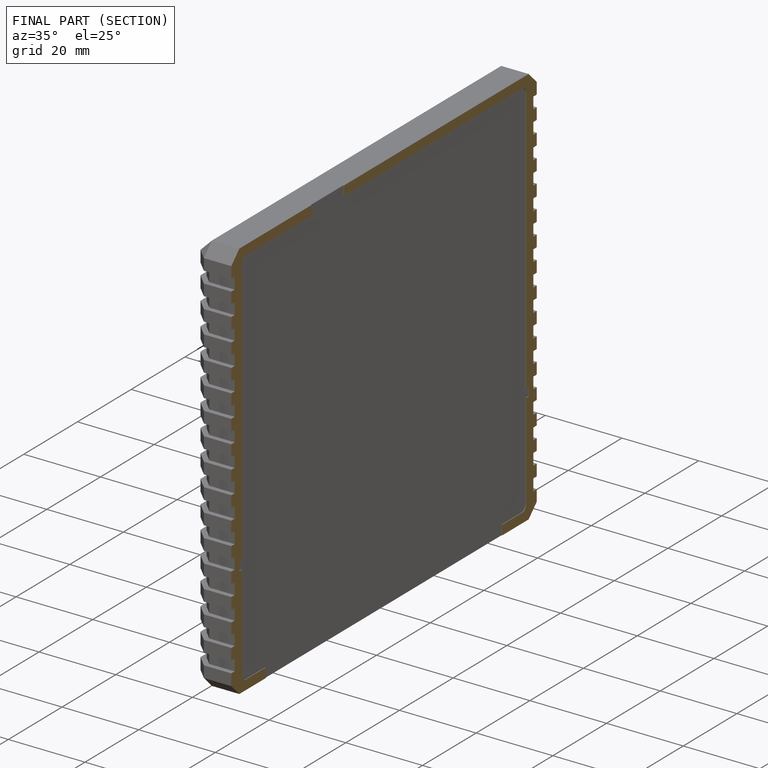
[diagram: finished part — half-section view (interior)]
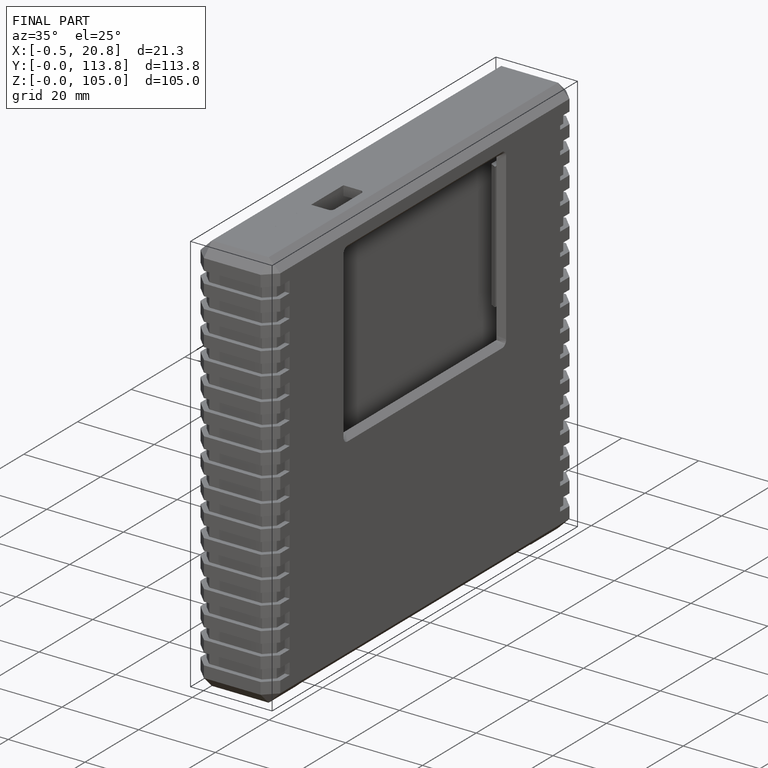
[diagram: finished part — iso view with bounding-box wireframe]
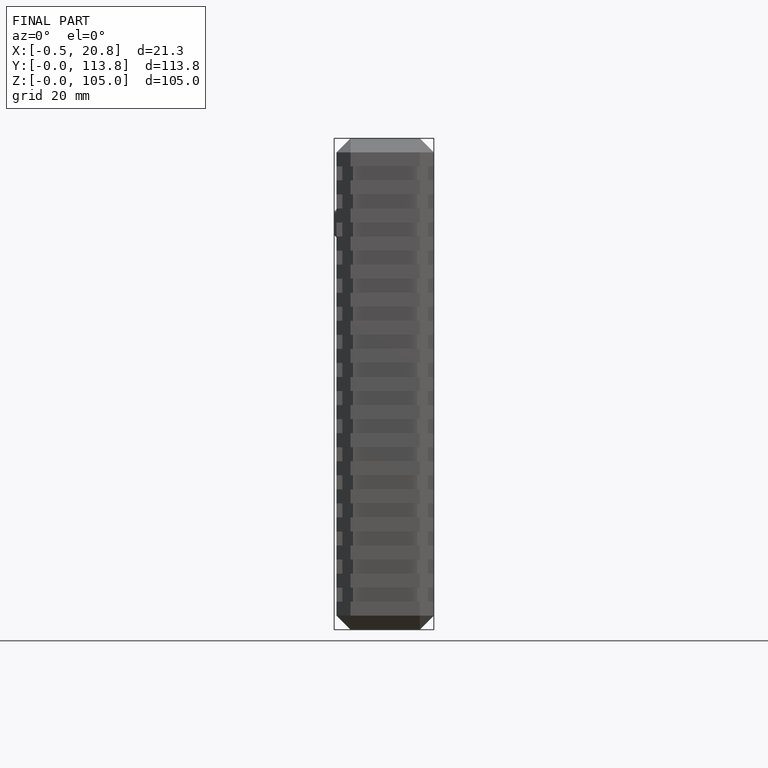
[diagram: finished part — front view with bounding-box wireframe]
